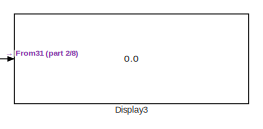
[diagram: root canvas - part 1/8, top center region]
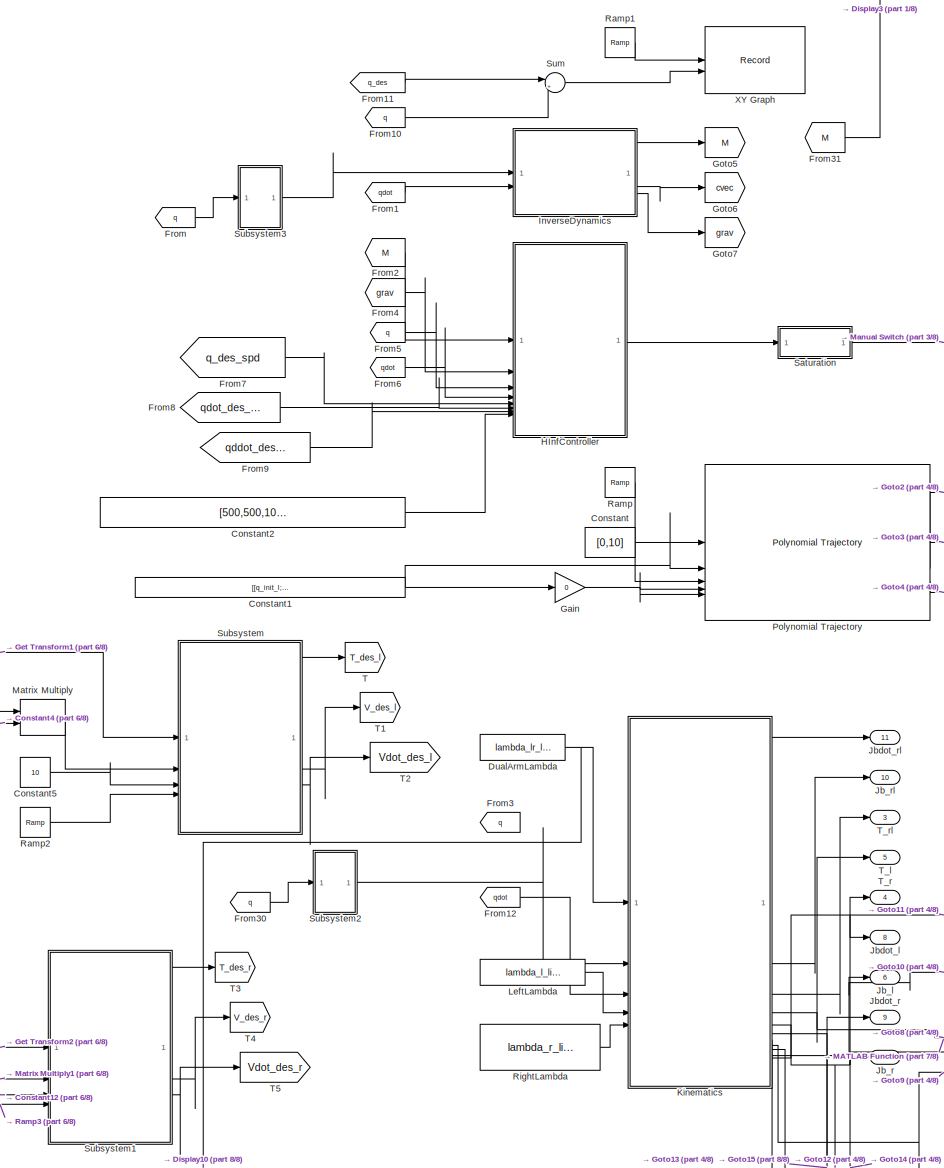
[diagram: root canvas - part 2/8, middle left region]
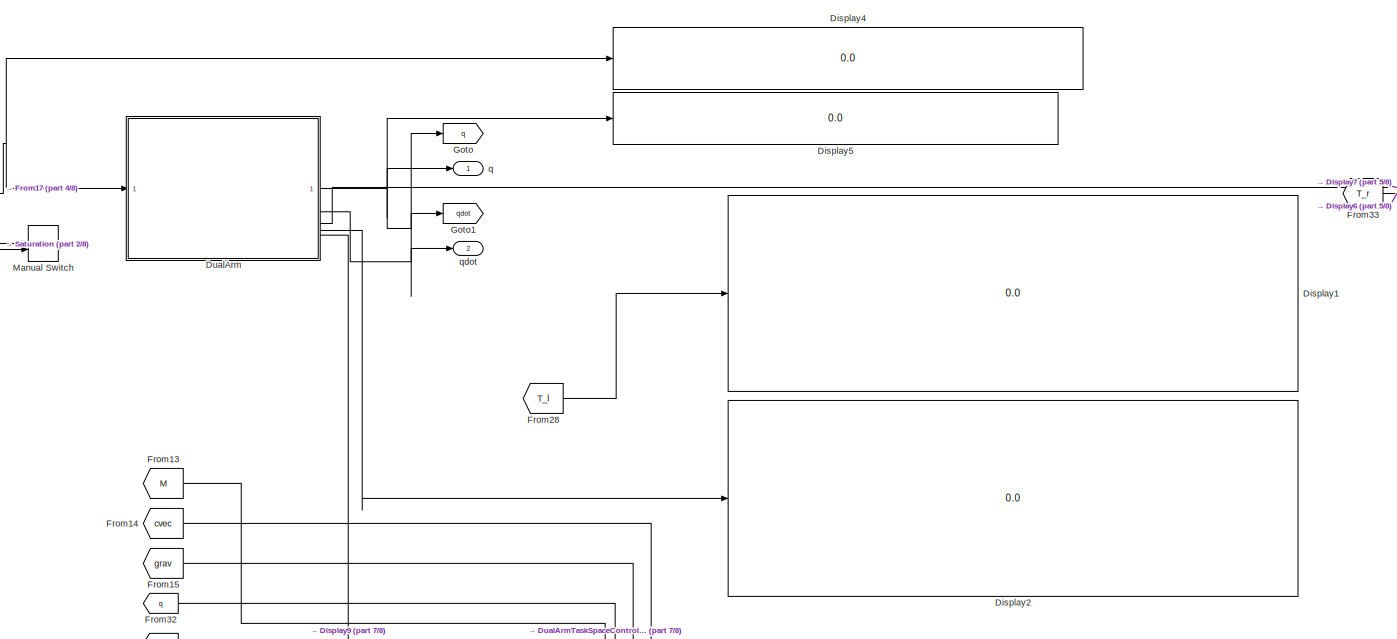
[diagram: root canvas - part 3/8, top center region]
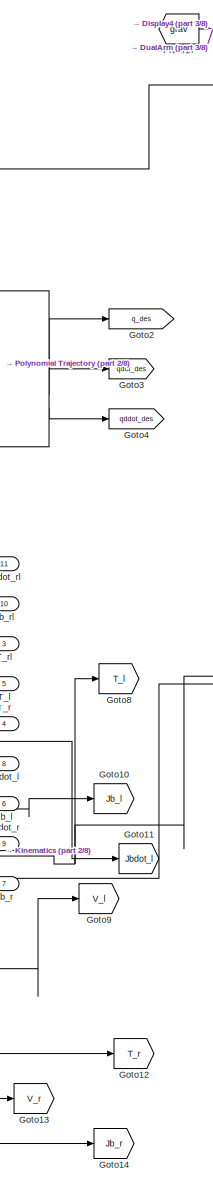
[diagram: root canvas - part 4/8, central region]
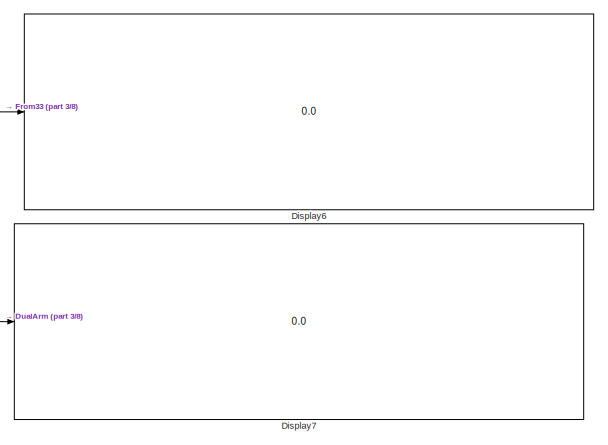
[diagram: root canvas - part 5/8, top right region]
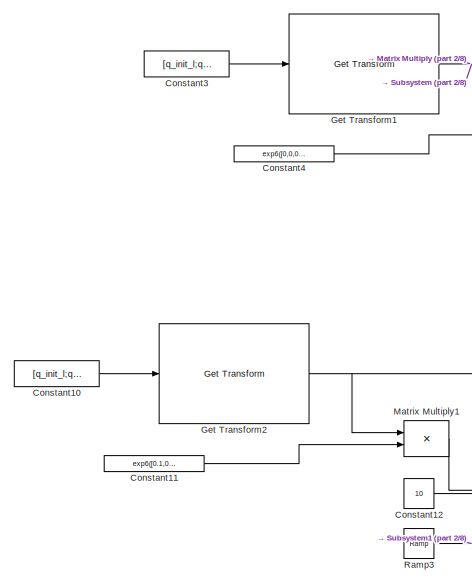
[diagram: root canvas - part 6/8, middle left region]
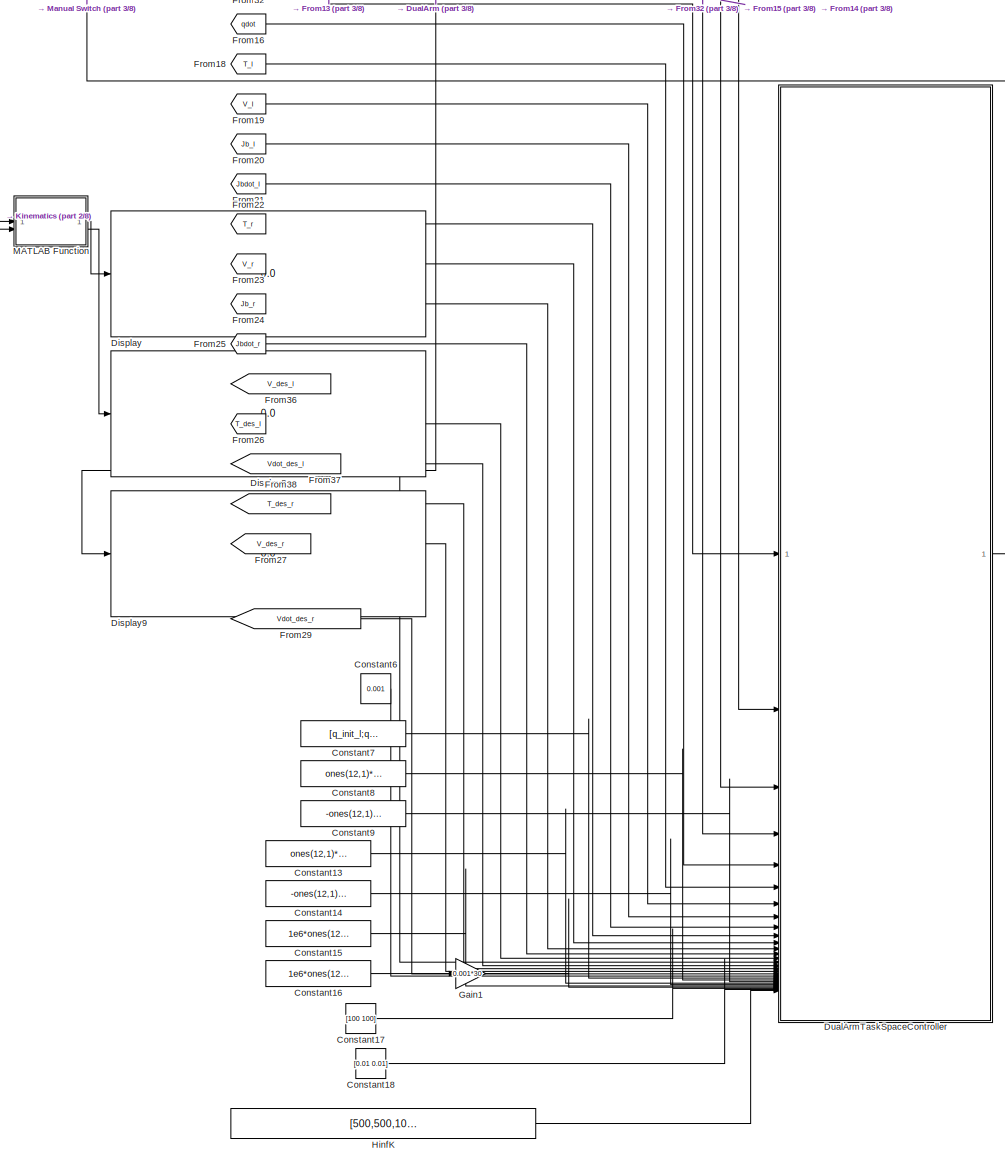
[diagram: root canvas - part 7/8, bottom center region]
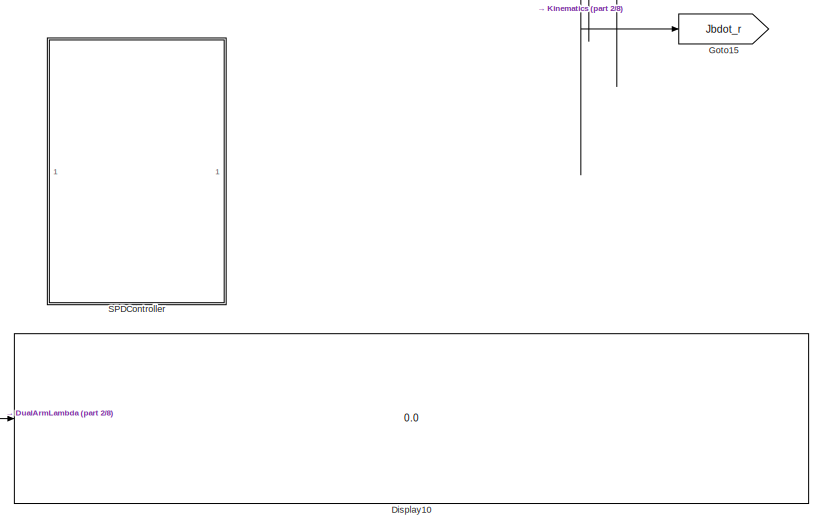
[diagram: root canvas - part 8/8, bottom left region]
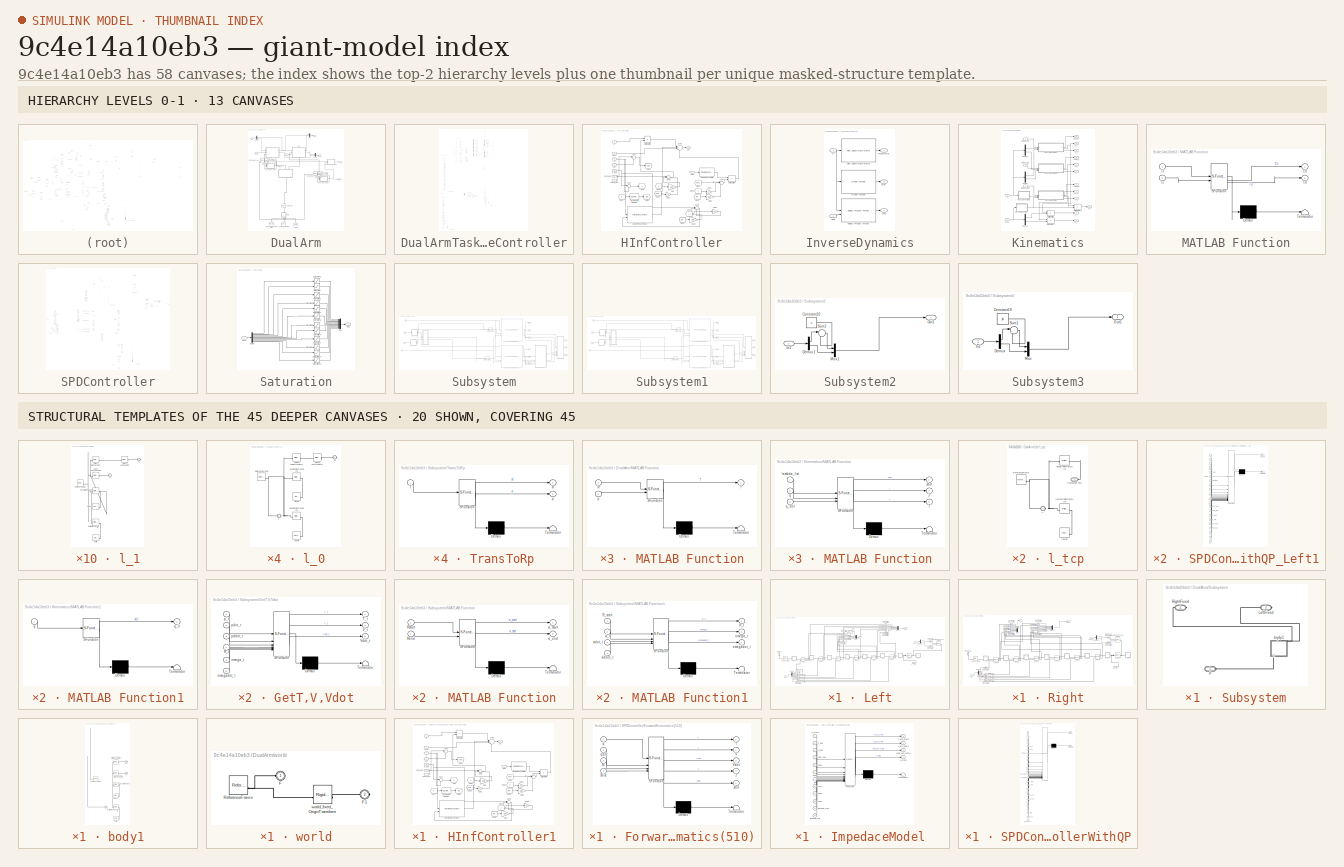
[diagram: thumbnail index - top-2 hierarchy levels (13 canvases) + 20 structural-template representatives of the remaining 45 canvases]
MODEL slx_9c4e14a10eb3
KIND model
CONFIG AbsTol = auto
CONFIG EnableMultiTasking = off
CONFIG FixedStep = 0.001
CONFIG MaxStep = auto
CONFIG MinStep = auto
CONFIG RelTol = 1e-3
CONFIG SampleTimeConstraint = Unconstrained
CONFIG SolverName = FixedStepAuto
CONFIG StartTime = 0.0
CONFIG StopTime = 10
WORKSPACE source: mxarray member
WORKSPACE joint_friction = [80 80 20 10 10 5]
WORKSPACE lambda_l_list = [0 -1.17357539658 0.993815552956 -2.091 0 0 -0.111945470246 0.0246912114191 0.243747835972 1.20917417944 1.20917417944 -1.20905770917 ... (42 elements, 6x7)]
WORKSPACE lambda_r_list = [0 1.17618914658 0.992300581915 2.091 0 0 -0.111945470246 0.0246912114191 0.243747835972 1.20917417944 1.20917417944 -1.20905770917 ... (42 elements, 6x7)]
WORKSPACE lambda_rl_list = [2.58853268681e-20 -2.25514051877e-16 -0.06 -1.83339582048e-16 -4.06575814682e-20 0 0.0911029490978 -0.02862210596 -0.174516399919 1.20917417944 1.20905770917 -1.20917417944 ... (78 elements, 6x13)]
WORKSPACE q_init_l: Simulink.Parameter (value not decoded)
WORKSPACE q_init_l1: Simulink.Parameter (value not decoded)
WORKSPACE q_init_l2: Simulink.Parameter (value not decoded)
WORKSPACE q_init_l3: Simulink.Parameter (value not decoded)
WORKSPACE q_init_l4: Simulink.Parameter (value not decoded)
WORKSPACE q_init_l5: Simulink.Parameter (value not decoded)
WORKSPACE q_init_l6: Simulink.Parameter (value not decoded)
WORKSPACE q_init_r: Simulink.Parameter (value not decoded)
WORKSPACE q_init_r1: Simulink.Parameter (value not decoded)
WORKSPACE q_init_r2: Simulink.Parameter (value not decoded)
WORKSPACE q_init_r3: Simulink.Parameter (value not decoded)
WORKSPACE q_init_r4: Simulink.Parameter (value not decoded)
WORKSPACE q_init_r5: Simulink.Parameter (value not decoded)
WORKSPACE q_init_r6: Simulink.Parameter (value not decoded)
WORKSPACE robot: robotics.RigidBodyTree (value not decoded)
BLOCK [Constant] Constant
  Commented = on
  Value = [0,10]
BLOCK [Constant] Constant1
  Commented = on
  Value = [[q_init_l;q_init_r],[q_init_l;q_init_r].*2]
BLOCK [Constant] Constant10
  Commented = on
  Value = [q_init_l;q_init_r]
BLOCK [Constant] Constant11
  Commented = on
  Value = exp6([0.1,0,0.1,pi/2,0,0]')
BLOCK [Constant] Constant12
  Commented = on
  Value = 10
BLOCK [Constant] Constant13
  Commented = on
  Value = ones(12,1)*pi
BLOCK [Constant] Constant14
  Commented = on
  Value = -ones(12,1)*pi
BLOCK [Constant] Constant15
  Commented = on
  Value = 1e6*ones(12,1)
BLOCK [Constant] Constant16
  Commented = on
  Value = 1e6*ones(12,1)
BLOCK [Constant] Constant17
  Commented = on
  Value = [100 100]
BLOCK [Constant] Constant18
  Commented = on
  Value = [0.01 0.01]
BLOCK [Constant] Constant2
  Commented = on
  Value = [500,500,100,50,10,1,500,500,100,50,10,1]
BLOCK [Constant] Constant3
  Commented = on
  Value = [q_init_l;q_init_r]
BLOCK [Constant] Constant4
  Commented = on
  Value = exp6([0,0,0.1,0,0,0]')
BLOCK [Constant] Constant5
  Commented = on
  Value = 10
BLOCK [Constant] Constant6
  Commented = on
  Value = 0.001
BLOCK [Constant] Constant7
  Commented = on
  Value = [q_init_l;q_init_r]
BLOCK [Constant] Constant8
  Commented = on
  Value = ones(12,1)*pi
BLOCK [Constant] Constant9
  Commented = on
  Value = -ones(12,1)*pi
BLOCK [Display] Display
  Decimation = 1
BLOCK [Display] Display1
  Decimation = 1
BLOCK [Display] Display10
  Decimation = 1
BLOCK [Display] Display2
  Decimation = 1
BLOCK [Display] Display3
  Decimation = 1
BLOCK [Display] Display4
  Decimation = 1
BLOCK [Display] Display5
  Decimation = 1
BLOCK [Display] Display6
  Decimation = 1
BLOCK [Display] Display7
  Decimation = 1
BLOCK [Display] Display8
  Decimation = 1
BLOCK [Display] Display9
  Decimation = 1
BLOCK [SubSystem] DualArm
BLOCK [Demux] DualArm/Demux
  Outputs = 2
BLOCK [Inport] DualArm/Fext_l
  Port = 3
BLOCK [Inport] DualArm/Fext_r
  Port = 2
BLOCK [SubSystem] DualArm/Left
  PortSchema = {"entries":[{"content":{"sides":[{"content":{"connectorIds":["In1","In2","LConn1"]},"type":"ConnectorPlacement.EquallySpacedRectSide","uuid":"a802bf1d-865c-44a2-b0f5-a6da758969a6"},{"content":{"connectorIds":["Out1","Out2"],"side":"RIGHT"},"type":"ConnectorPlacement.EquallySpacedRectSide","uuid":"5f6dd1c3-913e-4ce9-9167-95590779c30f"},{"content":{"side":"TOP"},"type":"ConnectorPlacement.EquallySpa...<+396ch>
BLOCK [Constant] DualArm/Left/Constant
  Value = pi
BLOCK [Demux] DualArm/Left/Demux
  Outputs = 6
BLOCK [Demux] DualArm/Left/Demux1
  Outputs = 2
BLOCK [Reference] DualArm/Left/External Force and Torque  REF=sm_lib/Forces and
Torques/External Force
and Torque
  SourceBlock = sm_lib/Forces and\nTorques/External Force\nand Torque
  SourceType = External Force\nand Torque
BLOCK [Inport] DualArm/Left/Fext_l
  Port = 2
BLOCK [PMIOPort] DualArm/Left/L_TCP
  Port = 2
  Side = Left
BLOCK [PMIOPort] DualArm/Left/LeftFixed
  NameLocation = left
  Side = Right
BLOCK [Mux] DualArm/Left/Mux1
  DisplayOption = bar
  Inputs = 6
BLOCK [Mux] DualArm/Left/Mux2
  DisplayOption = bar
  Inputs = 6
BLOCK [Reference] DualArm/Left/PS-Simulink Converter1  REF=nesl_utility/PS-Simulink
Converter
  SourceBlock = nesl_utility/PS-Simulink\nConverter
  SourceType = PS-Simulink\nConverter
BLOCK [Reference] DualArm/Left/PS-Simulink Converter10  REF=nesl_utility/PS-Simulink
Converter
  SourceBlock = nesl_utility/PS-Simulink\nConverter
  SourceType = PS-Simulink\nConverter
BLOCK [Reference] DualArm/Left/PS-Simulink Converter11  REF=nesl_utility/PS-Simulink
Converter
  SourceBlock = nesl_utility/PS-Simulink\nConverter
  SourceType = PS-Simulink\nConverter
BLOCK [Reference] DualArm/Left/PS-Simulink Converter12  REF=nesl_utility/PS-Simulink
Converter
  SourceBlock = nesl_utility/PS-Simulink\nConverter
  SourceType = PS-Simulink\nConverter
BLOCK [Reference] DualArm/Left/PS-Simulink Converter2  REF=nesl_utility/PS-Simulink
Converter
  SourceBlock = nesl_utility/PS-Simulink\nConverter
  SourceType = PS-Simulink\nConverter
BLOCK [Reference] DualArm/Left/PS-Simulink Converter3  REF=nesl_utility/PS-Simulink
Converter
  SourceBlock = nesl_utility/PS-Simulink\nConverter
  SourceType = PS-Simulink\nConverter
BLOCK [Reference] DualArm/Left/PS-Simulink Converter4  REF=nesl_utility/PS-Simulink
Converter
  SourceBlock = nesl_utility/PS-Simulink\nConverter
  SourceType = PS-Simulink\nConverter
BLOCK [Reference] DualArm/Left/PS-Simulink Converter5  REF=nesl_utility/PS-Simulink
Converter
  SourceBlock = nesl_utility/PS-Simulink\nConverter
  SourceType = PS-Simulink\nConverter
BLOCK [Reference] DualArm/Left/PS-Simulink Converter6  REF=nesl_utility/PS-Simulink
Converter
  SourceBlock = nesl_utility/PS-Simulink\nConverter
  SourceType = PS-Simulink\nConverter
BLOCK [Reference] DualArm/Left/PS-Simulink Converter7  REF=nesl_utility/PS-Simulink
Converter
  SourceBlock = nesl_utility/PS-Simulink\nConverter
  SourceType = PS-Simulink\nConverter
BLOCK [Reference] DualArm/Left/PS-Simulink Converter8  REF=nesl_utility/PS-Simulink
Converter
  SourceBlock = nesl_utility/PS-Simulink\nConverter
  SourceType = PS-Simulink\nConverter
BLOCK [Reference] DualArm/Left/PS-Simulink Converter9  REF=nesl_utility/PS-Simulink
Converter
  SourceBlock = nesl_utility/PS-Simulink\nConverter
  SourceType = PS-Simulink\nConverter
BLOCK [Reference] DualArm/Left/Simulink-PS Converter  REF=nesl_utility/Simulink-PS
Converter
  SourceBlock = nesl_utility/Simulink-PS\nConverter
  SourceType = Simulink-PS\nConverter
BLOCK [Reference] DualArm/Left/Simulink-PS Converter1  REF=nesl_utility/Simulink-PS
Converter
  SourceBlock = nesl_utility/Simulink-PS\nConverter
  SourceType = Simulink-PS\nConverter
BLOCK [Reference] DualArm/Left/Simulink-PS Converter2  REF=nesl_utility/Simulink-PS
Converter
  SourceBlock = nesl_utility/Simulink-PS\nConverter
  SourceType = Simulink-PS\nConverter
BLOCK [Reference] DualArm/Left/Simulink-PS Converter3  REF=nesl_utility/Simulink-PS
Converter
  SourceBlock = nesl_utility/Simulink-PS\nConverter
  SourceType = Simulink-PS\nConverter
BLOCK [Reference] DualArm/Left/Simulink-PS Converter4  REF=nesl_utility/Simulink-PS
Converter
  SourceBlock = nesl_utility/Simulink-PS\nConverter
  SourceType = Simulink-PS\nConverter
BLOCK [Reference] DualArm/Left/Simulink-PS Converter5  REF=nesl_utility/Simulink-PS
Converter
  SourceBlock = nesl_utility/Simulink-PS\nConverter
  SourceType = Simulink-PS\nConverter
BLOCK [Reference] DualArm/Left/Simulink-PS Converter6  REF=nesl_utility/Simulink-PS
Converter
  SourceBlock = nesl_utility/Simulink-PS\nConverter
  SourceType = Simulink-PS\nConverter
BLOCK [Reference] DualArm/Left/Simulink-PS Converter7  REF=nesl_utility/Simulink-PS
Converter
  SourceBlock = nesl_utility/Simulink-PS\nConverter
  SourceType = Simulink-PS\nConverter
BLOCK [Sum] DualArm/Left/Sum
  Inputs = |+-
BLOCK [SubSystem] DualArm/Left/l_0
BLOCK [PMIOPort] DualArm/Left/l_0/F
  Side = Left
BLOCK [PMIOPort] DualArm/Left/l_0/F1
  Port = 2
  Side = Right
BLOCK [Reference] DualArm/Left/l_0/Inertia  REF=sm_lib/Body Elements/Inertia
  SourceBlock = sm_lib/Body Elements/Inertia
  SourceType = Inertia
BLOCK [Reference] DualArm/Left/l_0/InertiaOriginTransform  REF=sm_lib/Frames and
Transforms/Rigid
Transform
  SourceBlock = sm_lib/Frames and\nTransforms/Rigid\nTransform
  SourceType = Rigid\nTransform
BLOCK [Reference] DualArm/Left/l_0/ReferenceFrame  REF=sm_lib/Frames and
Transforms/Reference
Frame
  SourceBlock = sm_lib/Frames and\nTransforms/Reference\nFrame
  SourceType = Reference\nFrame
BLOCK [Reference] DualArm/Left/l_0/Visual  REF=sm_lib/Body Elements/File Solid
  SourceBlock = sm_lib/Body Elements/File Solid
  SourceType = File Solid
BLOCK [Reference] DualArm/Left/l_0/VisualOriginTransform  REF=sm_lib/Frames and
Transforms/Rigid
Transform
  SourceBlock = sm_lib/Frames and\nTransforms/Rigid\nTransform
  SourceType = Rigid\nTransform
BLOCK [Reference] DualArm/Left/l_0/l_joint_0_AxisTransform  REF=sm_lib/Frames and
Transforms/Rigid
Transform
  SourceBlock = sm_lib/Frames and\nTransforms/Rigid\nTransform
  SourceType = Rigid\nTransform
BLOCK [Reference] DualArm/Left/l_0/l_joint_0_OriginTransform  REF=sm_lib/Frames and
Transforms/Rigid
Transform
  SourceBlock = sm_lib/Frames and\nTransforms/Rigid\nTransform
  SourceType = Rigid\nTransform
BLOCK [SubSystem] DualArm/Left/l_1
BLOCK [PMIOPort] DualArm/Left/l_1/F
  Side = Left
BLOCK [PMIOPort] DualArm/Left/l_1/F1
  Port = 2
  Side = Right
BLOCK [Reference] DualArm/Left/l_1/Inertia  REF=sm_lib/Body Elements/Inertia
  SourceBlock = sm_lib/Body Elements/Inertia
  SourceType = Inertia
BLOCK [Reference] DualArm/Left/l_1/InertiaOriginTransform  REF=sm_lib/Frames and
Transforms/Rigid
Transform
  SourceBlock = sm_lib/Frames and\nTransforms/Rigid\nTransform
  SourceType = Rigid\nTransform
BLOCK [Reference] DualArm/Left/l_1/ReferenceFrame  REF=sm_lib/Frames and
Transforms/Reference
Frame
  SourceBlock = sm_lib/Frames and\nTransforms/Reference\nFrame
  SourceType = Reference\nFrame
BLOCK [Reference] DualArm/Left/l_1/Visual  REF=sm_lib/Body Elements/File Solid
  SourceBlock = sm_lib/Body Elements/File Solid
  SourceType = File Solid
BLOCK [Reference] DualArm/Left/l_1/VisualOriginTransform  REF=sm_lib/Frames and
Transforms/Rigid
Transform
  SourceBlock = sm_lib/Frames and\nTransforms/Rigid\nTransform
  SourceType = Rigid\nTransform
BLOCK [Reference] DualArm/Left/l_1/l_joint_0_AxisInvTransform  REF=sm_lib/Frames and
Transforms/Rigid
Transform
  SourceBlock = sm_lib/Frames and\nTransforms/Rigid\nTransform
  SourceType = Rigid\nTransform
BLOCK [Reference] DualArm/Left/l_1/l_joint_1_AxisTransform  REF=sm_lib/Frames and
Transforms/Rigid
Transform
  SourceBlock = sm_lib/Frames and\nTransforms/Rigid\nTransform
  SourceType = Rigid\nTransform
BLOCK [Reference] DualArm/Left/l_1/l_joint_1_OriginTransform  REF=sm_lib/Frames and
Transforms/Rigid
Transform
  SourceBlock = sm_lib/Frames and\nTransforms/Rigid\nTransform
  SourceType = Rigid\nTransform
BLOCK [SubSystem] DualArm/Left/l_2
BLOCK [PMIOPort] DualArm/Left/l_2/F
  Side = Left
BLOCK [PMIOPort] DualArm/Left/l_2/F1
  Port = 2
  Side = Right
BLOCK [Reference] DualArm/Left/l_2/Inertia  REF=sm_lib/Body Elements/Inertia
  SourceBlock = sm_lib/Body Elements/Inertia
  SourceType = Inertia
BLOCK [Reference] DualArm/Left/l_2/InertiaOriginTransform  REF=sm_lib/Frames and
Transforms/Rigid
Transform
  SourceBlock = sm_lib/Frames and\nTransforms/Rigid\nTransform
  SourceType = Rigid\nTransform
BLOCK [Reference] DualArm/Left/l_2/ReferenceFrame  REF=sm_lib/Frames and
Transforms/Reference
Frame
  SourceBlock = sm_lib/Frames and\nTransforms/Reference\nFrame
  SourceType = Reference\nFrame
BLOCK [Reference] DualArm/Left/l_2/Visual  REF=sm_lib/Body Elements/File Solid
  SourceBlock = sm_lib/Body Elements/File Solid
  SourceType = File Solid
BLOCK [Reference] DualArm/Left/l_2/VisualOriginTransform  REF=sm_lib/Frames and
Transforms/Rigid
Transform
  SourceBlock = sm_lib/Frames and\nTransforms/Rigid\nTransform
  SourceType = Rigid\nTransform
BLOCK [Reference] DualArm/Left/l_2/l_joint_1_AxisInvTransform  REF=sm_lib/Frames and
Transforms/Rigid
Transform
  SourceBlock = sm_lib/Frames and\nTransforms/Rigid\nTransform
  SourceType = Rigid\nTransform
BLOCK [Reference] DualArm/Left/l_2/l_joint_2_AxisTransform  REF=sm_lib/Frames and
Transforms/Rigid
Transform
  SourceBlock = sm_lib/Frames and\nTransforms/Rigid\nTransform
  SourceType = Rigid\nTransform
BLOCK [Reference] DualArm/Left/l_2/l_joint_2_OriginTransform  REF=sm_lib/Frames and
Transforms/Rigid
Transform
  SourceBlock = sm_lib/Frames and\nTransforms/Rigid\nTransform
  SourceType = Rigid\nTransform
BLOCK [SubSystem] DualArm/Left/l_3
BLOCK [PMIOPort] DualArm/Left/l_3/F
  Side = Left
BLOCK [PMIOPort] DualArm/Left/l_3/F1
  Port = 2
  Side = Right
BLOCK [Reference] DualArm/Left/l_3/Inertia  REF=sm_lib/Body Elements/Inertia
  SourceBlock = sm_lib/Body Elements/Inertia
  SourceType = Inertia
BLOCK [Reference] DualArm/Left/l_3/InertiaOriginTransform  REF=sm_lib/Frames and
Transforms/Rigid
Transform
  SourceBlock = sm_lib/Frames and\nTransforms/Rigid\nTransform
  SourceType = Rigid\nTransform
BLOCK [Reference] DualArm/Left/l_3/ReferenceFrame  REF=sm_lib/Frames and
Transforms/Reference
Frame
  SourceBlock = sm_lib/Frames and\nTransforms/Reference\nFrame
  SourceType = Reference\nFrame
BLOCK [Reference] DualArm/Left/l_3/Visual  REF=sm_lib/Body Elements/File Solid
  SourceBlock = sm_lib/Body Elements/File Solid
  SourceType = File Solid
BLOCK [Reference] DualArm/Left/l_3/VisualOriginTransform  REF=sm_lib/Frames and
Transforms/Rigid
Transform
  SourceBlock = sm_lib/Frames and\nTransforms/Rigid\nTransform
  SourceType = Rigid\nTransform
BLOCK [Reference] DualArm/Left/l_3/l_joint_2_AxisInvTransform  REF=sm_lib/Frames and
Transforms/Rigid
Transform
  SourceBlock = sm_lib/Frames and\nTransforms/Rigid\nTransform
  SourceType = Rigid\nTransform
BLOCK [Reference] DualArm/Left/l_3/l_joint_3_AxisTransform  REF=sm_lib/Frames and
Transforms/Rigid
Transform
  SourceBlock = sm_lib/Frames and\nTransforms/Rigid\nTransform
  SourceType = Rigid\nTransform
BLOCK [Reference] DualArm/Left/l_3/l_joint_3_OriginTransform  REF=sm_lib/Frames and
Transforms/Rigid
Transform
  SourceBlock = sm_lib/Frames and\nTransforms/Rigid\nTransform
  SourceType = Rigid\nTransform
BLOCK [SubSystem] DualArm/Left/l_4
BLOCK [PMIOPort] DualArm/Left/l_4/F
  Side = Left
BLOCK [PMIOPort] DualArm/Left/l_4/F1
  Port = 2
  Side = Right
BLOCK [Reference] DualArm/Left/l_4/Inertia  REF=sm_lib/Body Elements/Inertia
  SourceBlock = sm_lib/Body Elements/Inertia
  SourceType = Inertia
BLOCK [Reference] DualArm/Left/l_4/InertiaOriginTransform  REF=sm_lib/Frames and
Transforms/Rigid
Transform
  SourceBlock = sm_lib/Frames and\nTransforms/Rigid\nTransform
  SourceType = Rigid\nTransform
BLOCK [Reference] DualArm/Left/l_4/ReferenceFrame  REF=sm_lib/Frames and
Transforms/Reference
Frame
  SourceBlock = sm_lib/Frames and\nTransforms/Reference\nFrame
  SourceType = Reference\nFrame
BLOCK [Reference] DualArm/Left/l_4/Visual  REF=sm_lib/Body Elements/File Solid
  SourceBlock = sm_lib/Body Elements/File Solid
  SourceType = File Solid
BLOCK [Reference] DualArm/Left/l_4/VisualOriginTransform  REF=sm_lib/Frames and
Transforms/Rigid
Transform
  SourceBlock = sm_lib/Frames and\nTransforms/Rigid\nTransform
  SourceType = Rigid\nTransform
BLOCK [Reference] DualArm/Left/l_4/l_joint_3_AxisInvTransform  REF=sm_lib/Frames and
Transforms/Rigid
Transform
  SourceBlock = sm_lib/Frames and\nTransforms/Rigid\nTransform
  SourceType = Rigid\nTransform
BLOCK [Reference] DualArm/Left/l_4/l_joint_4_AxisTransform  REF=sm_lib/Frames and
Transforms/Rigid
Transform
  SourceBlock = sm_lib/Frames and\nTransforms/Rigid\nTransform
  SourceType = Rigid\nTransform
BLOCK [Reference] DualArm/Left/l_4/l_joint_4_OriginTransform  REF=sm_lib/Frames and
Transforms/Rigid
Transform
  SourceBlock = sm_lib/Frames and\nTransforms/Rigid\nTransform
  SourceType = Rigid\nTransform
BLOCK [SubSystem] DualArm/Left/l_5
BLOCK [PMIOPort] DualArm/Left/l_5/F
  Side = Left
BLOCK [PMIOPort] DualArm/Left/l_5/F1
  Port = 2
  Side = Right
BLOCK [Reference] DualArm/Left/l_5/Inertia  REF=sm_lib/Body Elements/Inertia
  SourceBlock = sm_lib/Body Elements/Inertia
  SourceType = Inertia
BLOCK [Reference] DualArm/Left/l_5/InertiaOriginTransform  REF=sm_lib/Frames and
Transforms/Rigid
Transform
  SourceBlock = sm_lib/Frames and\nTransforms/Rigid\nTransform
  SourceType = Rigid\nTransform
BLOCK [Reference] DualArm/Left/l_5/ReferenceFrame  REF=sm_lib/Frames and
Transforms/Reference
Frame
  SourceBlock = sm_lib/Frames and\nTransforms/Reference\nFrame
  SourceType = Reference\nFrame
BLOCK [Reference] DualArm/Left/l_5/Visual  REF=sm_lib/Body Elements/File Solid
  SourceBlock = sm_lib/Body Elements/File Solid
  SourceType = File Solid
BLOCK [Reference] DualArm/Left/l_5/VisualOriginTransform  REF=sm_lib/Frames and
Transforms/Rigid
Transform
  SourceBlock = sm_lib/Frames and\nTransforms/Rigid\nTransform
  SourceType = Rigid\nTransform
BLOCK [Reference] DualArm/Left/l_5/l_joint_4_AxisInvTransform  REF=sm_lib/Frames and
Transforms/Rigid
Transform
  SourceBlock = sm_lib/Frames and\nTransforms/Rigid\nTransform
  SourceType = Rigid\nTransform
BLOCK [Reference] DualArm/Left/l_5/l_joint_5_AxisTransform  REF=sm_lib/Frames and
Transforms/Rigid
Transform
  SourceBlock = sm_lib/Frames and\nTransforms/Rigid\nTransform
  SourceType = Rigid\nTransform
BLOCK [Reference] DualArm/Left/l_5/l_joint_5_OriginTransform  REF=sm_lib/Frames and
Transforms/Rigid
Transform
  SourceBlock = sm_lib/Frames and\nTransforms/Rigid\nTransform
  SourceType = Rigid\nTransform
BLOCK [SubSystem] DualArm/Left/l_6
BLOCK [PMIOPort] DualArm/Left/l_6/F
  Side = Left
BLOCK [PMIOPort] DualArm/Left/l_6/F1
  Port = 2
  Side = Right
BLOCK [Reference] DualArm/Left/l_6/Inertia  REF=sm_lib/Body Elements/Inertia
  SourceBlock = sm_lib/Body Elements/Inertia
  SourceType = Inertia
BLOCK [Reference] DualArm/Left/l_6/InertiaOriginTransform  REF=sm_lib/Frames and
Transforms/Rigid
Transform
  SourceBlock = sm_lib/Frames and\nTransforms/Rigid\nTransform
  SourceType = Rigid\nTransform
BLOCK [Reference] DualArm/Left/l_6/ReferenceFrame  REF=sm_lib/Frames and
Transforms/Reference
Frame
  SourceBlock = sm_lib/Frames and\nTransforms/Reference\nFrame
  SourceType = Reference\nFrame
BLOCK [Reference] DualArm/Left/l_6/Visual  REF=sm_lib/Body Elements/File Solid
  SourceBlock = sm_lib/Body Elements/File Solid
  SourceType = File Solid
BLOCK [Reference] DualArm/Left/l_6/VisualOriginTransform  REF=sm_lib/Frames and
Transforms/Rigid
Transform
  SourceBlock = sm_lib/Frames and\nTransforms/Rigid\nTransform
  SourceType = Rigid\nTransform
BLOCK [Reference] DualArm/Left/l_6/l_joint_5_AxisInvTransform  REF=sm_lib/Frames and
Transforms/Rigid
Transform
  SourceBlock = sm_lib/Frames and\nTransforms/Rigid\nTransform
  SourceType = Rigid\nTransform
BLOCK [Reference] DualArm/Left/l_6/l_joint_tcp_OriginTransform  REF=sm_lib/Frames and
Transforms/Rigid
Transform
  SourceBlock = sm_lib/Frames and\nTransforms/Rigid\nTransform
  SourceType = Rigid\nTransform
BLOCK [Reference] DualArm/Left/l_body_fixed  REF=sm_lib/Joints/Weld Joint
  SourceBlock = sm_lib/Joints/Weld Joint
  SourceType = Weld Joint
BLOCK [Reference] DualArm/Left/l_joint_0  REF=sm_lib/Joints/Revolute Joint
  SourceBlock = sm_lib/Joints/Revolute Joint
  SourceType = Revolute Joint
BLOCK [Reference] DualArm/Left/l_joint_1  REF=sm_lib/Joints/Revolute Joint
  SourceBlock = sm_lib/Joints/Revolute Joint
  SourceType = Revolute Joint
BLOCK [Reference] DualArm/Left/l_joint_2  REF=sm_lib/Joints/Revolute Joint
  SourceBlock = sm_lib/Joints/Revolute Joint
  SourceType = Revolute Joint
BLOCK [Reference] DualArm/Left/l_joint_3  REF=sm_lib/Joints/Revolute Joint
  SourceBlock = sm_lib/Joints/Revolute Joint
  SourceType = Revolute Joint
BLOCK [Reference] DualArm/Left/l_joint_4  REF=sm_lib/Joints/Revolute Joint
  SourceBlock = sm_lib/Joints/Revolute Joint
  SourceType = Revolute Joint
BLOCK [Reference] DualArm/Left/l_joint_5  REF=sm_lib/Joints/Revolute Joint
  SourceBlock = sm_lib/Joints/Revolute Joint
  SourceType = Revolute Joint
BLOCK [Reference] DualArm/Left/l_joint_tcp  REF=sm_lib/Joints/Weld Joint
  SourceBlock = sm_lib/Joints/Weld Joint
  SourceType = Weld Joint
BLOCK [SubSystem] DualArm/Left/l_tcp
BLOCK [PMIOPort] DualArm/Left/l_tcp/Connection Port
  Port = 2
  Side = Left
BLOCK [PMIOPort] DualArm/Left/l_tcp/F
  Side = Left
BLOCK [Reference] DualArm/Left/l_tcp/Inertia  REF=sm_lib/Body Elements/Inertia
  SourceBlock = sm_lib/Body Elements/Inertia
  SourceType = Inertia
BLOCK [Reference] DualArm/Left/l_tcp/InertiaOriginTransform  REF=sm_lib/Frames and
Transforms/Rigid
Transform
  SourceBlock = sm_lib/Frames and\nTransforms/Rigid\nTransform
  SourceType = Rigid\nTransform
BLOCK [Reference] DualArm/Left/l_tcp/ReferenceFrame  REF=sm_lib/Frames and
Transforms/Reference
Frame
  SourceBlock = sm_lib/Frames and\nTransforms/Reference\nFrame
  SourceType = Reference\nFrame
BLOCK [Reference] DualArm/Left/l_tcp/VisualOriginTransform  REF=sm_lib/Frames and
Transforms/Rigid
Transform
  SourceBlock = sm_lib/Frames and\nTransforms/Rigid\nTransform
  SourceType = Rigid\nTransform
BLOCK [Outport] DualArm/Left/q
BLOCK [Outport] DualArm/Left/qdot
  Port = 2
BLOCK [Inport] DualArm/Left/tau
BLOCK [SubSystem] DualArm/MATLAB Function
  ErrorFcn = Stateflow.Translate.translate
  PermitHierarchicalResolution = ExplicitOnly
  SFBlockType = MATLAB Function
  TreatAsAtomicUnit = on
BLOCK [Demux] DualArm/MATLAB Function/ Demux 
  Outputs = 1
BLOCK [S-Function] DualArm/MATLAB Function/ SFunction 
  EnableBusSupport = on
  FunctionName = sf_sfun
  PortCounts = [2 2]
  SFcnIsStateOwnerBlock = off
  SFunctionDeploymentMode = off
  Tag = Stateflow S-Function 4
BLOCK [Terminator] DualArm/MATLAB Function/ Terminator 
BLOCK [Inport] DualArm/MATLAB Function/R
BLOCK [Outport] DualArm/MATLAB Function/T
BLOCK [Inport] DualArm/MATLAB Function/p
  Port = 2
BLOCK [SubSystem] DualArm/MATLAB Function1
  ErrorFcn = Stateflow.Translate.translate
  PermitHierarchicalResolution = ExplicitOnly
  SFBlockType = MATLAB Function
  TreatAsAtomicUnit = on
BLOCK [Demux] DualArm/MATLAB Function1/ Demux 
  Outputs = 1
BLOCK [S-Function] DualArm/MATLAB Function1/ SFunction 
  EnableBusSupport = on
  FunctionName = sf_sfun
  PortCounts = [2 2]
  SFcnIsStateOwnerBlock = off
  SFunctionDeploymentMode = off
  Tag = Stateflow S-Function 5
BLOCK [Terminator] DualArm/MATLAB Function1/ Terminator 
BLOCK [Inport] DualArm/MATLAB Function1/R
BLOCK [Outport] DualArm/MATLAB Function1/T
BLOCK [Inport] DualArm/MATLAB Function1/p
  Port = 2
BLOCK [SubSystem] DualArm/MATLAB Function2
  ErrorFcn = Stateflow.Translate.translate
  PermitHierarchicalResolution = ExplicitOnly
  SFBlockType = MATLAB Function
  TreatAsAtomicUnit = on
BLOCK [Demux] DualArm/MATLAB Function2/ Demux 
  Outputs = 1
BLOCK [S-Function] DualArm/MATLAB Function2/ SFunction 
  EnableBusSupport = on
  FunctionName = sf_sfun
  PortCounts = [2 2]
  SFcnIsStateOwnerBlock = off
  SFunctionDeploymentMode = off
  Tag = Stateflow S-Function 6
BLOCK [Terminator] DualArm/MATLAB Function2/ Terminator 
BLOCK [Inport] DualArm/MATLAB Function2/T_l
  Port = 2
BLOCK [Inport] DualArm/MATLAB Function2/T_r
BLOCK [Outport] DualArm/MATLAB Function2/T_rl
BLOCK [Reference] DualArm/MechanismConfiguration  REF=sm_lib/Utilities/Mechanism
Configuration
  NameLocation = right
  SourceBlock = sm_lib/Utilities/Mechanism\nConfiguration
  SourceType = Mechanism\nConfiguration
BLOCK [Mux] DualArm/Mux
  DisplayOption = bar
  Inputs = 2
BLOCK [Mux] DualArm/Mux1
  DisplayOption = bar
  Inputs = 2
BLOCK [Reference] DualArm/PS-Simulink Converter  REF=nesl_utility/PS-Simulink
Converter
  SourceBlock = nesl_utility/PS-Simulink\nConverter
  SourceType = PS-Simulink\nConverter
BLOCK [Reference] DualArm/PS-Simulink Converter1  REF=nesl_utility/PS-Simulink
Converter
  SourceBlock = nesl_utility/PS-Simulink\nConverter
  SourceType = PS-Simulink\nConverter
BLOCK [Reference] DualArm/PS-Simulink Converter2  REF=nesl_utility/PS-Simulink
Converter
  SourceBlock = nesl_utility/PS-Simulink\nConverter
  SourceType = PS-Simulink\nConverter
BLOCK [Reference] DualArm/PS-Simulink Converter3  REF=nesl_utility/PS-Simulink
Converter
  SourceBlock = nesl_utility/PS-Simulink\nConverter
  SourceType = PS-Simulink\nConverter
BLOCK [SubSystem] DualArm/Right
  PortSchema = {"entries":[{"content":{"sides":[{"content":{"connectorIds":["In1","In2","LConn1"]},"type":"ConnectorPlacement.EquallySpacedRectSide","uuid":"fdf178f2-e7c3-4173-86ca-7321804fb5d5"},{"content":{"connectorIds":["Out1","Out2"],"side":"RIGHT"},"type":"ConnectorPlacement.EquallySpacedRectSide","uuid":"59022458-aa9c-4c83-9b4f-7726f2382bb8"},{"content":{"side":"TOP"},"type":"ConnectorPlacement.EquallySpa...<+396ch>
BLOCK [Demux] DualArm/Right/Demux
  Outputs = 6
BLOCK [Demux] DualArm/Right/Demux1
  Outputs = 2
BLOCK [Reference] DualArm/Right/External Force and Torque  REF=sm_lib/Forces and
Torques/External Force
and Torque
  SourceBlock = sm_lib/Forces and\nTorques/External Force\nand Torque
  SourceType = External Force\nand Torque
BLOCK [Inport] DualArm/Right/Fext_r
  Port = 2
BLOCK [Mux] DualArm/Right/Mux
  DisplayOption = bar
  Inputs = 6
BLOCK [Mux] DualArm/Right/Mux1
  DisplayOption = bar
  Inputs = 6
BLOCK [Reference] DualArm/Right/PS-Simulink Converter  REF=nesl_utility/PS-Simulink
Converter
  SourceBlock = nesl_utility/PS-Simulink\nConverter
  SourceType = PS-Simulink\nConverter
BLOCK [Reference] DualArm/Right/PS-Simulink Converter1  REF=nesl_utility/PS-Simulink
Converter
  SourceBlock = nesl_utility/PS-Simulink\nConverter
  SourceType = PS-Simulink\nConverter
BLOCK [Reference] DualArm/Right/PS-Simulink Converter10  REF=nesl_utility/PS-Simulink
Converter
  SourceBlock = nesl_utility/PS-Simulink\nConverter
  SourceType = PS-Simulink\nConverter
BLOCK [Reference] DualArm/Right/PS-Simulink Converter11  REF=nesl_utility/PS-Simulink
Converter
  SourceBlock = nesl_utility/PS-Simulink\nConverter
  SourceType = PS-Simulink\nConverter
BLOCK [Reference] DualArm/Right/PS-Simulink Converter2  REF=nesl_utility/PS-Simulink
Converter
  SourceBlock = nesl_utility/PS-Simulink\nConverter
  SourceType = PS-Simulink\nConverter
BLOCK [Reference] DualArm/Right/PS-Simulink Converter3  REF=nesl_utility/PS-Simulink
Converter
  SourceBlock = nesl_utility/PS-Simulink\nConverter
  SourceType = PS-Simulink\nConverter
BLOCK [Reference] DualArm/Right/PS-Simulink Converter4  REF=nesl_utility/PS-Simulink
Converter
  SourceBlock = nesl_utility/PS-Simulink\nConverter
  SourceType = PS-Simulink\nConverter
BLOCK [Reference] DualArm/Right/PS-Simulink Converter5  REF=nesl_utility/PS-Simulink
Converter
  SourceBlock = nesl_utility/PS-Simulink\nConverter
  SourceType = PS-Simulink\nConverter
BLOCK [Reference] DualArm/Right/PS-Simulink Converter6  REF=nesl_utility/PS-Simulink
Converter
  SourceBlock = nesl_utility/PS-Simulink\nConverter
  SourceType = PS-Simulink\nConverter
BLOCK [Reference] DualArm/Right/PS-Simulink Converter7  REF=nesl_utility/PS-Simulink
Converter
  SourceBlock = nesl_utility/PS-Simulink\nConverter
  SourceType = PS-Simulink\nConverter
BLOCK [Reference] DualArm/Right/PS-Simulink Converter8  REF=nesl_utility/PS-Simulink
Converter
  SourceBlock = nesl_utility/PS-Simulink\nConverter
  SourceType = PS-Simulink\nConverter
BLOCK [Reference] DualArm/Right/PS-Simulink Converter9  REF=nesl_utility/PS-Simulink
Converter
  SourceBlock = nesl_utility/PS-Simulink\nConverter
  SourceType = PS-Simulink\nConverter
BLOCK [PMIOPort] DualArm/Right/R_TCP
  Port = 2
  Side = Left
BLOCK [PMIOPort] DualArm/Right/RightFixed
  NameLocation = left
  Side = Right
BLOCK [Reference] DualArm/Right/Simulink-PS Converter  REF=nesl_utility/Simulink-PS
Converter
  SourceBlock = nesl_utility/Simulink-PS\nConverter
  SourceType = Simulink-PS\nConverter
BLOCK [Reference] DualArm/Right/Simulink-PS Converter1  REF=nesl_utility/Simulink-PS
Converter
  SourceBlock = nesl_utility/Simulink-PS\nConverter
  SourceType = Simulink-PS\nConverter
BLOCK [Reference] DualArm/Right/Simulink-PS Converter2  REF=nesl_utility/Simulink-PS
Converter
  SourceBlock = nesl_utility/Simulink-PS\nConverter
  SourceType = Simulink-PS\nConverter
BLOCK [Reference] DualArm/Right/Simulink-PS Converter3  REF=nesl_utility/Simulink-PS
Converter
  SourceBlock = nesl_utility/Simulink-PS\nConverter
  SourceType = Simulink-PS\nConverter
BLOCK [Reference] DualArm/Right/Simulink-PS Converter4  REF=nesl_utility/Simulink-PS
Converter
  SourceBlock = nesl_utility/Simulink-PS\nConverter
  SourceType = Simulink-PS\nConverter
BLOCK [Reference] DualArm/Right/Simulink-PS Converter5  REF=nesl_utility/Simulink-PS
Converter
  SourceBlock = nesl_utility/Simulink-PS\nConverter
  SourceType = Simulink-PS\nConverter
BLOCK [Reference] DualArm/Right/Simulink-PS Converter6  REF=nesl_utility/Simulink-PS
Converter
  SourceBlock = nesl_utility/Simulink-PS\nConverter
  SourceType = Simulink-PS\nConverter
BLOCK [Reference] DualArm/Right/Simulink-PS Converter7  REF=nesl_utility/Simulink-PS
Converter
  SourceBlock = nesl_utility/Simulink-PS\nConverter
  SourceType = Simulink-PS\nConverter
BLOCK [Outport] DualArm/Right/q
BLOCK [Outport] DualArm/Right/qdot
  Port = 2
BLOCK [SubSystem] DualArm/Right/r_0
BLOCK [PMIOPort] DualArm/Right/r_0/F
  Side = Left
BLOCK [PMIOPort] DualArm/Right/r_0/F1
  Port = 2
  Side = Right
BLOCK [Reference] DualArm/Right/r_0/Inertia  REF=sm_lib/Body Elements/Inertia
  SourceBlock = sm_lib/Body Elements/Inertia
  SourceType = Inertia
BLOCK [Reference] DualArm/Right/r_0/InertiaOriginTransform  REF=sm_lib/Frames and
Transforms/Rigid
Transform
  SourceBlock = sm_lib/Frames and\nTransforms/Rigid\nTransform
  SourceType = Rigid\nTransform
BLOCK [Reference] DualArm/Right/r_0/ReferenceFrame  REF=sm_lib/Frames and
Transforms/Reference
Frame
  SourceBlock = sm_lib/Frames and\nTransforms/Reference\nFrame
  SourceType = Reference\nFrame
BLOCK [Reference] DualArm/Right/r_0/Visual  REF=sm_lib/Body Elements/File Solid
  SourceBlock = sm_lib/Body Elements/File Solid
  SourceType = File Solid
BLOCK [Reference] DualArm/Right/r_0/VisualOriginTransform  REF=sm_lib/Frames and
Transforms/Rigid
Transform
  SourceBlock = sm_lib/Frames and\nTransforms/Rigid\nTransform
  SourceType = Rigid\nTransform
BLOCK [Reference] DualArm/Right/r_0/r_joint_0_AxisTransform  REF=sm_lib/Frames and
Transforms/Rigid
Transform
  SourceBlock = sm_lib/Frames and\nTransforms/Rigid\nTransform
  SourceType = Rigid\nTransform
BLOCK [Reference] DualArm/Right/r_0/r_joint_0_OriginTransform  REF=sm_lib/Frames and
Transforms/Rigid
Transform
  SourceBlock = sm_lib/Frames and\nTransforms/Rigid\nTransform
  SourceType = Rigid\nTransform
BLOCK [SubSystem] DualArm/Right/r_1
BLOCK [PMIOPort] DualArm/Right/r_1/F
  Side = Left
BLOCK [PMIOPort] DualArm/Right/r_1/F1
  Port = 2
  Side = Right
BLOCK [Reference] DualArm/Right/r_1/Inertia  REF=sm_lib/Body Elements/Inertia
  SourceBlock = sm_lib/Body Elements/Inertia
  SourceType = Inertia
BLOCK [Reference] DualArm/Right/r_1/InertiaOriginTransform  REF=sm_lib/Frames and
Transforms/Rigid
Transform
  SourceBlock = sm_lib/Frames and\nTransforms/Rigid\nTransform
  SourceType = Rigid\nTransform
BLOCK [Reference] DualArm/Right/r_1/ReferenceFrame  REF=sm_lib/Frames and
Transforms/Reference
Frame
  SourceBlock = sm_lib/Frames and\nTransforms/Reference\nFrame
  SourceType = Reference\nFrame
BLOCK [Reference] DualArm/Right/r_1/Visual  REF=sm_lib/Body Elements/File Solid
  SourceBlock = sm_lib/Body Elements/File Solid
  SourceType = File Solid
BLOCK [Reference] DualArm/Right/r_1/VisualOriginTransform  REF=sm_lib/Frames and
Transforms/Rigid
Transform
  SourceBlock = sm_lib/Frames and\nTransforms/Rigid\nTransform
  SourceType = Rigid\nTransform
BLOCK [Reference] DualArm/Right/r_1/r_joint_0_AxisInvTransform  REF=sm_lib/Frames and
Transforms/Rigid
Transform
  SourceBlock = sm_lib/Frames and\nTransforms/Rigid\nTransform
  SourceType = Rigid\nTransform
BLOCK [Reference] DualArm/Right/r_1/r_joint_1_AxisTransform  REF=sm_lib/Frames and
Transforms/Rigid
Transform
  SourceBlock = sm_lib/Frames and\nTransforms/Rigid\nTransform
  SourceType = Rigid\nTransform
BLOCK [Reference] DualArm/Right/r_1/r_joint_1_OriginTransform  REF=sm_lib/Frames and
Transforms/Rigid
Transform
  SourceBlock = sm_lib/Frames and\nTransforms/Rigid\nTransform
  SourceType = Rigid\nTransform
BLOCK [SubSystem] DualArm/Right/r_2
BLOCK [PMIOPort] DualArm/Right/r_2/F
  Side = Left
BLOCK [PMIOPort] DualArm/Right/r_2/F1
  Port = 2
  Side = Right
BLOCK [Reference] DualArm/Right/r_2/Inertia  REF=sm_lib/Body Elements/Inertia
  SourceBlock = sm_lib/Body Elements/Inertia
  SourceType = Inertia
BLOCK [Reference] DualArm/Right/r_2/InertiaOriginTransform  REF=sm_lib/Frames and
Transforms/Rigid
Transform
  SourceBlock = sm_lib/Frames and\nTransforms/Rigid\nTransform
  SourceType = Rigid\nTransform
BLOCK [Reference] DualArm/Right/r_2/ReferenceFrame  REF=sm_lib/Frames and
Transforms/Reference
Frame
  SourceBlock = sm_lib/Frames and\nTransforms/Reference\nFrame
  SourceType = Reference\nFrame
BLOCK [Reference] DualArm/Right/r_2/Visual  REF=sm_lib/Body Elements/File Solid
  SourceBlock = sm_lib/Body Elements/File Solid
  SourceType = File Solid
BLOCK [Reference] DualArm/Right/r_2/VisualOriginTransform  REF=sm_lib/Frames and
Transforms/Rigid
Transform
  SourceBlock = sm_lib/Frames and\nTransforms/Rigid\nTransform
  SourceType = Rigid\nTransform
BLOCK [Reference] DualArm/Right/r_2/r_joint_1_AxisInvTransform  REF=sm_lib/Frames and
Transforms/Rigid
Transform
  SourceBlock = sm_lib/Frames and\nTransforms/Rigid\nTransform
  SourceType = Rigid\nTransform
BLOCK [Reference] DualArm/Right/r_2/r_joint_2_AxisTransform  REF=sm_lib/Frames and
Transforms/Rigid
Transform
  SourceBlock = sm_lib/Frames and\nTransforms/Rigid\nTransform
  SourceType = Rigid\nTransform
BLOCK [Reference] DualArm/Right/r_2/r_joint_2_OriginTransform  REF=sm_lib/Frames and
Transforms/Rigid
Transform
  SourceBlock = sm_lib/Frames and\nTransforms/Rigid\nTransform
  SourceType = Rigid\nTransform
BLOCK [SubSystem] DualArm/Right/r_3
BLOCK [PMIOPort] DualArm/Right/r_3/F
  Side = Left
BLOCK [PMIOPort] DualArm/Right/r_3/F1
  Port = 2
  Side = Right
BLOCK [Reference] DualArm/Right/r_3/Inertia  REF=sm_lib/Body Elements/Inertia
  SourceBlock = sm_lib/Body Elements/Inertia
  SourceType = Inertia
BLOCK [Reference] DualArm/Right/r_3/InertiaOriginTransform  REF=sm_lib/Frames and
Transforms/Rigid
Transform
  SourceBlock = sm_lib/Frames and\nTransforms/Rigid\nTransform
  SourceType = Rigid\nTransform
BLOCK [Reference] DualArm/Right/r_3/ReferenceFrame  REF=sm_lib/Frames and
Transforms/Reference
Frame
  SourceBlock = sm_lib/Frames and\nTransforms/Reference\nFrame
  SourceType = Reference\nFrame
BLOCK [Reference] DualArm/Right/r_3/Visual  REF=sm_lib/Body Elements/File Solid
  SourceBlock = sm_lib/Body Elements/File Solid
  SourceType = File Solid
BLOCK [Reference] DualArm/Right/r_3/VisualOriginTransform  REF=sm_lib/Frames and
Transforms/Rigid
Transform
  SourceBlock = sm_lib/Frames and\nTransforms/Rigid\nTransform
  SourceType = Rigid\nTransform
BLOCK [Reference] DualArm/Right/r_3/r_joint_2_AxisInvTransform  REF=sm_lib/Frames and
Transforms/Rigid
Transform
  SourceBlock = sm_lib/Frames and\nTransforms/Rigid\nTransform
  SourceType = Rigid\nTransform
BLOCK [Reference] DualArm/Right/r_3/r_joint_3_AxisTransform  REF=sm_lib/Frames and
Transforms/Rigid
Transform
  SourceBlock = sm_lib/Frames and\nTransforms/Rigid\nTransform
  SourceType = Rigid\nTransform
BLOCK [Reference] DualArm/Right/r_3/r_joint_3_OriginTransform  REF=sm_lib/Frames and
Transforms/Rigid
Transform
  SourceBlock = sm_lib/Frames and\nTransforms/Rigid\nTransform
  SourceType = Rigid\nTransform
BLOCK [SubSystem] DualArm/Right/r_4
BLOCK [PMIOPort] DualArm/Right/r_4/F
  Side = Left
BLOCK [PMIOPort] DualArm/Right/r_4/F1
  Port = 2
  Side = Right
BLOCK [Reference] DualArm/Right/r_4/Inertia  REF=sm_lib/Body Elements/Inertia
  SourceBlock = sm_lib/Body Elements/Inertia
  SourceType = Inertia
BLOCK [Reference] DualArm/Right/r_4/InertiaOriginTransform  REF=sm_lib/Frames and
Transforms/Rigid
Transform
  SourceBlock = sm_lib/Frames and\nTransforms/Rigid\nTransform
  SourceType = Rigid\nTransform
BLOCK [Reference] DualArm/Right/r_4/ReferenceFrame  REF=sm_lib/Frames and
Transforms/Reference
Frame
  SourceBlock = sm_lib/Frames and\nTransforms/Reference\nFrame
  SourceType = Reference\nFrame
BLOCK [Reference] DualArm/Right/r_4/Visual  REF=sm_lib/Body Elements/File Solid
  SourceBlock = sm_lib/Body Elements/File Solid
  SourceType = File Solid
BLOCK [Reference] DualArm/Right/r_4/VisualOriginTransform  REF=sm_lib/Frames and
Transforms/Rigid
Transform
  SourceBlock = sm_lib/Frames and\nTransforms/Rigid\nTransform
  SourceType = Rigid\nTransform
BLOCK [Reference] DualArm/Right/r_4/r_joint_3_AxisInvTransform  REF=sm_lib/Frames and
Transforms/Rigid
Transform
  SourceBlock = sm_lib/Frames and\nTransforms/Rigid\nTransform
  SourceType = Rigid\nTransform
BLOCK [Reference] DualArm/Right/r_4/r_joint_4_AxisTransform  REF=sm_lib/Frames and
Transforms/Rigid
Transform
  SourceBlock = sm_lib/Frames and\nTransforms/Rigid\nTransform
  SourceType = Rigid\nTransform
BLOCK [Reference] DualArm/Right/r_4/r_joint_4_OriginTransform  REF=sm_lib/Frames and
Transforms/Rigid
Transform
  SourceBlock = sm_lib/Frames and\nTransforms/Rigid\nTransform
  SourceType = Rigid\nTransform
BLOCK [SubSystem] DualArm/Right/r_5
BLOCK [PMIOPort] DualArm/Right/r_5/F
  Side = Left
BLOCK [PMIOPort] DualArm/Right/r_5/F1
  Port = 2
  Side = Right
BLOCK [Reference] DualArm/Right/r_5/Inertia  REF=sm_lib/Body Elements/Inertia
  SourceBlock = sm_lib/Body Elements/Inertia
  SourceType = Inertia
BLOCK [Reference] DualArm/Right/r_5/InertiaOriginTransform  REF=sm_lib/Frames and
Transforms/Rigid
Transform
  SourceBlock = sm_lib/Frames and\nTransforms/Rigid\nTransform
  SourceType = Rigid\nTransform
BLOCK [Reference] DualArm/Right/r_5/ReferenceFrame  REF=sm_lib/Frames and
Transforms/Reference
Frame
  SourceBlock = sm_lib/Frames and\nTransforms/Reference\nFrame
  SourceType = Reference\nFrame
BLOCK [Reference] DualArm/Right/r_5/Visual  REF=sm_lib/Body Elements/File Solid
  SourceBlock = sm_lib/Body Elements/File Solid
  SourceType = File Solid
BLOCK [Reference] DualArm/Right/r_5/VisualOriginTransform  REF=sm_lib/Frames and
Transforms/Rigid
Transform
  SourceBlock = sm_lib/Frames and\nTransforms/Rigid\nTransform
  SourceType = Rigid\nTransform
BLOCK [Reference] DualArm/Right/r_5/r_joint_4_AxisInvTransform  REF=sm_lib/Frames and
Transforms/Rigid
Transform
  SourceBlock = sm_lib/Frames and\nTransforms/Rigid\nTransform
  SourceType = Rigid\nTransform
BLOCK [Reference] DualArm/Right/r_5/r_joint_5_AxisTransform  REF=sm_lib/Frames and
Transforms/Rigid
Transform
  SourceBlock = sm_lib/Frames and\nTransforms/Rigid\nTransform
  SourceType = Rigid\nTransform
BLOCK [Reference] DualArm/Right/r_5/r_joint_5_OriginTransform  REF=sm_lib/Frames and
Transforms/Rigid
Transform
  SourceBlock = sm_lib/Frames and\nTransforms/Rigid\nTransform
  SourceType = Rigid\nTransform
BLOCK [SubSystem] DualArm/Right/r_6
BLOCK [PMIOPort] DualArm/Right/r_6/F
  Side = Left
BLOCK [PMIOPort] DualArm/Right/r_6/F1
  Port = 2
  Side = Right
BLOCK [Reference] DualArm/Right/r_6/Inertia  REF=sm_lib/Body Elements/Inertia
  SourceBlock = sm_lib/Body Elements/Inertia
  SourceType = Inertia
BLOCK [Reference] DualArm/Right/r_6/InertiaOriginTransform  REF=sm_lib/Frames and
Transforms/Rigid
Transform
  SourceBlock = sm_lib/Frames and\nTransforms/Rigid\nTransform
  SourceType = Rigid\nTransform
BLOCK [Reference] DualArm/Right/r_6/ReferenceFrame  REF=sm_lib/Frames and
Transforms/Reference
Frame
  SourceBlock = sm_lib/Frames and\nTransforms/Reference\nFrame
  SourceType = Reference\nFrame
BLOCK [Reference] DualArm/Right/r_6/Visual  REF=sm_lib/Body Elements/File Solid
  SourceBlock = sm_lib/Body Elements/File Solid
  SourceType = File Solid
BLOCK [Reference] DualArm/Right/r_6/VisualOriginTransform  REF=sm_lib/Frames and
Transforms/Rigid
Transform
  SourceBlock = sm_lib/Frames and\nTransforms/Rigid\nTransform
  SourceType = Rigid\nTransform
BLOCK [Reference] DualArm/Right/r_6/r_joint_5_AxisInvTransform  REF=sm_lib/Frames and
Transforms/Rigid
Transform
  SourceBlock = sm_lib/Frames and\nTransforms/Rigid\nTransform
  SourceType = Rigid\nTransform
BLOCK [Reference] DualArm/Right/r_6/r_joint_tcp_OriginTransform  REF=sm_lib/Frames and
Transforms/Rigid
Transform
  SourceBlock = sm_lib/Frames and\nTransforms/Rigid\nTransform
  SourceType = Rigid\nTransform
BLOCK [Reference] DualArm/Right/r_body_fixed  REF=sm_lib/Joints/Weld Joint
  SourceBlock = sm_lib/Joints/Weld Joint
  SourceType = Weld Joint
BLOCK [Reference] DualArm/Right/r_joint_0  REF=sm_lib/Joints/Revolute Joint
  SourceBlock = sm_lib/Joints/Revolute Joint
  SourceType = Revolute Joint
BLOCK [Reference] DualArm/Right/r_joint_1  REF=sm_lib/Joints/Revolute Joint
  SourceBlock = sm_lib/Joints/Revolute Joint
  SourceType = Revolute Joint
BLOCK [Reference] DualArm/Right/r_joint_2  REF=sm_lib/Joints/Revolute Joint
  SourceBlock = sm_lib/Joints/Revolute Joint
  SourceType = Revolute Joint
BLOCK [Reference] DualArm/Right/r_joint_3  REF=sm_lib/Joints/Revolute Joint
  SourceBlock = sm_lib/Joints/Revolute Joint
  SourceType = Revolute Joint
BLOCK [Reference] DualArm/Right/r_joint_4  REF=sm_lib/Joints/Revolute Joint
  SourceBlock = sm_lib/Joints/Revolute Joint
  SourceType = Revolute Joint
BLOCK [Reference] DualArm/Right/r_joint_5  REF=sm_lib/Joints/Revolute Joint
  SourceBlock = sm_lib/Joints/Revolute Joint
  SourceType = Revolute Joint
BLOCK [Reference] DualArm/Right/r_joint_tcp  REF=sm_lib/Joints/Weld Joint
  SourceBlock = sm_lib/Joints/Weld Joint
  SourceType = Weld Joint
BLOCK [SubSystem] DualArm/Right/r_tcp
BLOCK [PMIOPort] DualArm/Right/r_tcp/Connection Port
  Port = 2
  Side = Left
BLOCK [PMIOPort] DualArm/Right/r_tcp/F
  Side = Left
BLOCK [Reference] DualArm/Right/r_tcp/Inertia  REF=sm_lib/Body Elements/Inertia
  SourceBlock = sm_lib/Body Elements/Inertia
  SourceType = Inertia
BLOCK [Reference] DualArm/Right/r_tcp/InertiaOriginTransform  REF=sm_lib/Frames and
Transforms/Rigid
Transform
  SourceBlock = sm_lib/Frames and\nTransforms/Rigid\nTransform
  SourceType = Rigid\nTransform
BLOCK [Reference] DualArm/Right/r_tcp/ReferenceFrame  REF=sm_lib/Frames and
Transforms/Reference
Frame
  SourceBlock = sm_lib/Frames and\nTransforms/Reference\nFrame
  SourceType = Reference\nFrame
BLOCK [Reference] DualArm/Right/r_tcp/VisualOriginTransform  REF=sm_lib/Frames and
Transforms/Rigid
Transform
  SourceBlock = sm_lib/Frames and\nTransforms/Rigid\nTransform
  SourceType = Rigid\nTransform
BLOCK [Inport] DualArm/Right/tau
BLOCK [Reference] DualArm/Solver Configuration  REF=nesl_utility/Solver
Configuration
  NameLocation = right
  SourceBlock = nesl_utility/Solver\nConfiguration
  SourceType = Solver\nConfiguration
BLOCK [SubSystem] DualArm/Subsystem
BLOCK [PMIOPort] DualArm/Subsystem/F
  Side = Left
BLOCK [PMIOPort] DualArm/Subsystem/LeftFixed
  Port = 3
  Side = Right
BLOCK [PMIOPort] DualArm/Subsystem/RightFixed
  Port = 2
  Side = Right
BLOCK [SubSystem] DualArm/Subsystem/body1
  NameLocation = right
BLOCK [PMIOPort] DualArm/Subsystem/body1/F
  Side = Left
BLOCK [PMIOPort] DualArm/Subsystem/body1/F1
  Port = 3
  Side = Right
BLOCK [PMIOPort] DualArm/Subsystem/body1/F2
  Port = 2
  Side = Right
BLOCK [Reference] DualArm/Subsystem/body1/Inertia  REF=sm_lib/Body Elements/Inertia
  SourceBlock = sm_lib/Body Elements/Inertia
  SourceType = Inertia
BLOCK [Reference] DualArm/Subsystem/body1/InertiaOriginTransform  REF=sm_lib/Frames and
Transforms/Rigid
Transform
  SourceBlock = sm_lib/Frames and\nTransforms/Rigid\nTransform
  SourceType = Rigid\nTransform
BLOCK [Reference] DualArm/Subsystem/body1/ReferenceFrame  REF=sm_lib/Frames and
Transforms/Reference
Frame
  SourceBlock = sm_lib/Frames and\nTransforms/Reference\nFrame
  SourceType = Reference\nFrame
BLOCK [Reference] DualArm/Subsystem/body1/Visual  REF=sm_lib/Body Elements/File Solid
  SourceBlock = sm_lib/Body Elements/File Solid
  SourceType = File Solid
BLOCK [Reference] DualArm/Subsystem/body1/VisualOriginTransform  REF=sm_lib/Frames and
Transforms/Rigid
Transform
  SourceBlock = sm_lib/Frames and\nTransforms/Rigid\nTransform
  SourceType = Rigid\nTransform
BLOCK [Reference] DualArm/Subsystem/body1/l_body_fixed_OriginTransform  REF=sm_lib/Frames and
Transforms/Rigid
Transform
  SourceBlock = sm_lib/Frames and\nTransforms/Rigid\nTransform
  SourceType = Rigid\nTransform
BLOCK [Reference] DualArm/Subsystem/body1/r_body_fixed_OriginTransform  REF=sm_lib/Frames and
Transforms/Rigid
Transform
  SourceBlock = sm_lib/Frames and\nTransforms/Rigid\nTransform
  SourceType = Rigid\nTransform
BLOCK [Outport] DualArm/T_l
  Port = 4
BLOCK [Outport] DualArm/T_r
  Port = 3
BLOCK [Outport] DualArm/T_rl
  Port = 5
BLOCK [Reference] DualArm/Transform Sensor  REF=sm_lib/Frames and
Transforms/Transform
Sensor
  SourceBlock = sm_lib/Frames and\nTransforms/Transform\nSensor
  SourceType = Transform\nSensor
BLOCK [Reference] DualArm/Transform Sensor1  REF=sm_lib/Frames and
Transforms/Transform
Sensor
  SourceBlock = sm_lib/Frames and\nTransforms/Transform\nSensor
  SourceType = Transform\nSensor
BLOCK [Reference] DualArm/World  REF=sm_lib/Frames and
Transforms/World Frame
  NameLocation = right
  SourceBlock = sm_lib/Frames and\nTransforms/World Frame
  SourceType = World Frame
BLOCK [Outport] DualArm/q
BLOCK [Outport] DualArm/qdot
  Port = 2
BLOCK [Inport] DualArm/tau
BLOCK [SubSystem] DualArm/world
  NameLocation = right
BLOCK [PMIOPort] DualArm/world/F
  Side = Left
BLOCK [PMIOPort] DualArm/world/F1
  Port = 2
  Side = Right
BLOCK [Reference] DualArm/world/ReferenceFrame  REF=sm_lib/Frames and
Transforms/Reference
Frame
  SourceBlock = sm_lib/Frames and\nTransforms/Reference\nFrame
  SourceType = Reference\nFrame
BLOCK [Reference] DualArm/world/world_fixed_OriginTransform  REF=sm_lib/Frames and
Transforms/Rigid
Transform
  SourceBlock = sm_lib/Frames and\nTransforms/Rigid\nTransform
  SourceType = Rigid\nTransform
BLOCK [Reference] DualArm/world_fixed  REF=sm_lib/Joints/Weld Joint
  NameLocation = right
  SourceBlock = sm_lib/Joints/Weld Joint
  SourceType = Weld Joint
BLOCK [Constant] DualArmLambda
  Value = lambda_lr_list
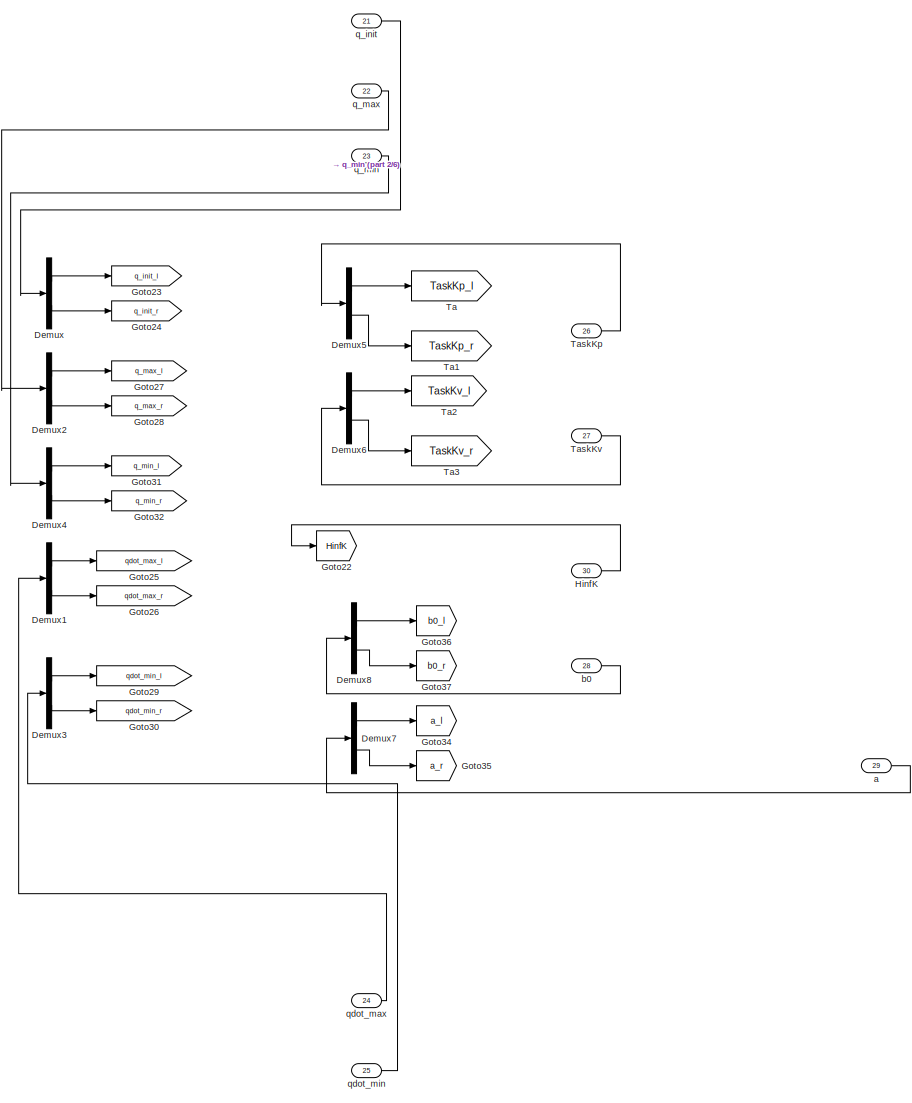
[diagram: DualArmTaskSpaceController - part 1/6, top center region]
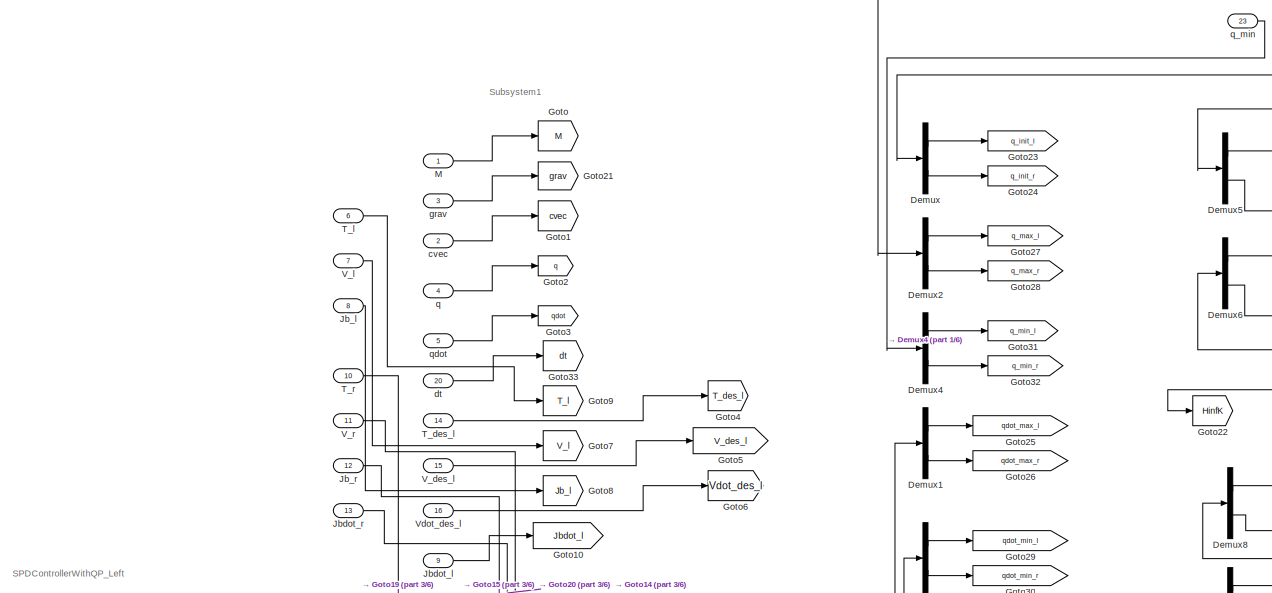
[diagram: DualArmTaskSpaceController - part 2/6, top left region]
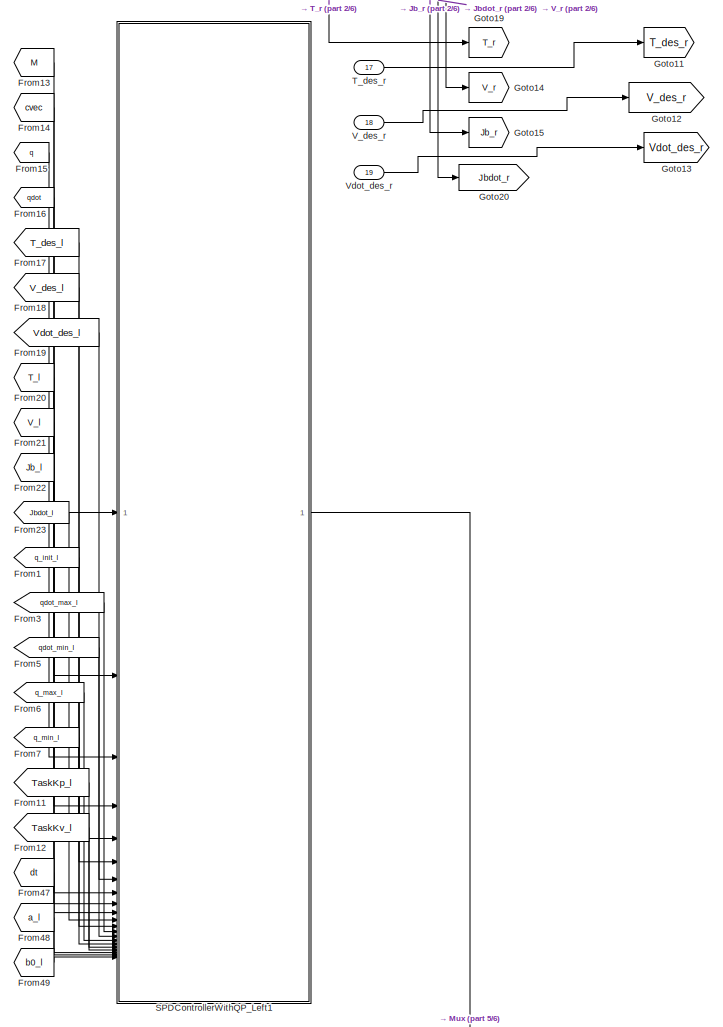
[diagram: DualArmTaskSpaceController - part 3/6, middle left region]
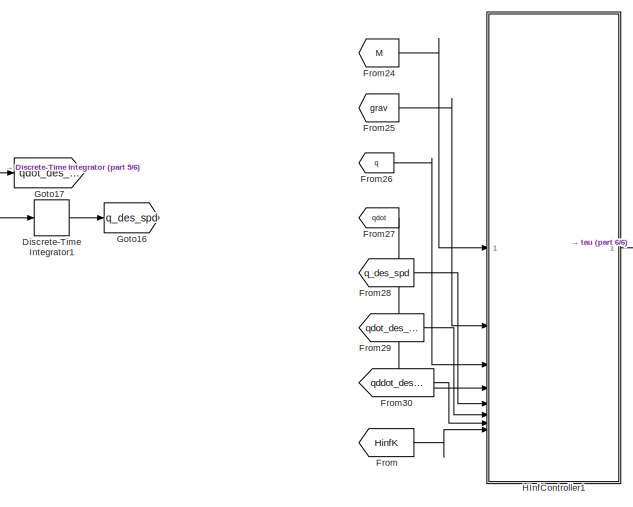
[diagram: DualArmTaskSpaceController - part 4/6, bottom center region]
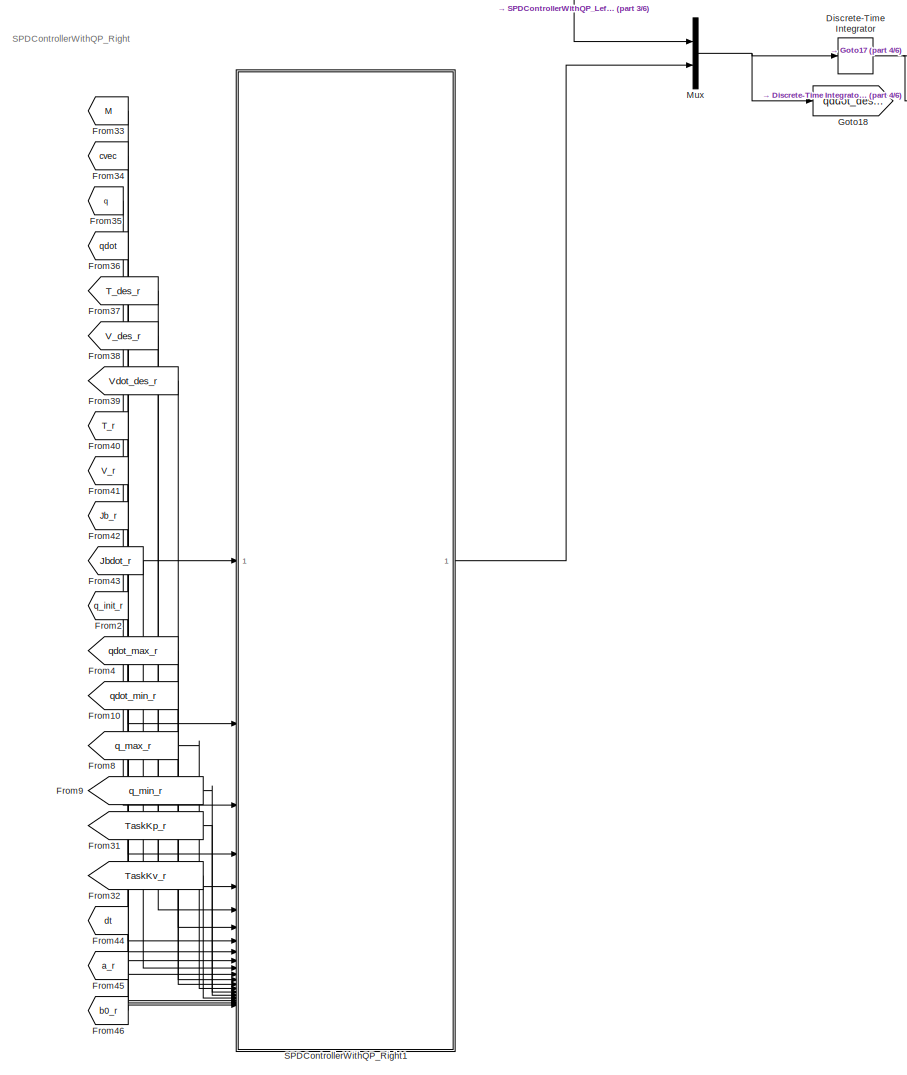
[diagram: DualArmTaskSpaceController - part 5/6, bottom left region]
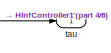
[diagram: DualArmTaskSpaceController - part 6/6, bottom right region]
BLOCK [SubSystem] DualArmTaskSpaceController
  Commented = on
BLOCK [Demux] DualArmTaskSpaceController/Demux
  Outputs = 2
BLOCK [Demux] DualArmTaskSpaceController/Demux1
  Outputs = 2
BLOCK [Demux] DualArmTaskSpaceController/Demux2
  Outputs = 2
BLOCK [Demux] DualArmTaskSpaceController/Demux3
  Outputs = 2
BLOCK [Demux] DualArmTaskSpaceController/Demux4
  Outputs = 2
BLOCK [Demux] DualArmTaskSpaceController/Demux5
  Outputs = 2
BLOCK [Demux] DualArmTaskSpaceController/Demux6
  Outputs = 2
BLOCK [Demux] DualArmTaskSpaceController/Demux7
  Outputs = 2
BLOCK [Demux] DualArmTaskSpaceController/Demux8
  Outputs = 2
BLOCK [DiscreteIntegrator] DualArmTaskSpaceController/Discrete-Time Integrator
  ICPrevOutput = DiscIntNeverNeededParam
  ICPrevScaledInput = DiscIntNeverNeededParam
  InitialConditionSetting = Auto
  LowerSaturationLimit = -ones(12,1)*pi
  SampleTime = -1
  UpperSaturationLimit = ones(12,1)*pi
BLOCK [DiscreteIntegrator] DualArmTaskSpaceController/Discrete-Time Integrator1
  ICPrevOutput = DiscIntNeverNeededParam
  ICPrevScaledInput = DiscIntNeverNeededParam
  InitialCondition = [q_init_l;q_init_r]
  InitialConditionSetting = Auto
  LowerSaturationLimit = -ones(12,1)*3.054325556
  SampleTime = -1
  UpperSaturationLimit = ones(12,1)*3.054325556
BLOCK [From] DualArmTaskSpaceController/From
  GotoTag = HinfK
BLOCK [From] DualArmTaskSpaceController/From1
  GotoTag = q_init_l
BLOCK [From] DualArmTaskSpaceController/From10
  GotoTag = qdot_min_r
BLOCK [From] DualArmTaskSpaceController/From11
  GotoTag = TaskKp_l
BLOCK [From] DualArmTaskSpaceController/From12
  GotoTag = TaskKv_l
BLOCK [From] DualArmTaskSpaceController/From13
  GotoTag = M
BLOCK [From] DualArmTaskSpaceController/From14
  GotoTag = cvec
BLOCK [From] DualArmTaskSpaceController/From15
  GotoTag = q
BLOCK [From] DualArmTaskSpaceController/From16
  GotoTag = qdot
BLOCK [From] DualArmTaskSpaceController/From17
  GotoTag = T_des_l
BLOCK [From] DualArmTaskSpaceController/From18
  GotoTag = V_des_l
BLOCK [From] DualArmTaskSpaceController/From19
  GotoTag = Vdot_des_l
BLOCK [From] DualArmTaskSpaceController/From2
  GotoTag = q_init_r
BLOCK [From] DualArmTaskSpaceController/From20
  GotoTag = T_l
BLOCK [From] DualArmTaskSpaceController/From21
  GotoTag = V_l
BLOCK [From] DualArmTaskSpaceController/From22
  GotoTag = Jb_l
BLOCK [From] DualArmTaskSpaceController/From23
  GotoTag = Jbdot_l
BLOCK [From] DualArmTaskSpaceController/From24
  GotoTag = M
BLOCK [From] DualArmTaskSpaceController/From25
  GotoTag = grav
BLOCK [From] DualArmTaskSpaceController/From26
  GotoTag = q
BLOCK [From] DualArmTaskSpaceController/From27
  GotoTag = qdot
BLOCK [From] DualArmTaskSpaceController/From28
  GotoTag = q_des_spd
BLOCK [From] DualArmTaskSpaceController/From29
  GotoTag = qdot_des_spd
BLOCK [From] DualArmTaskSpaceController/From3
  GotoTag = qdot_max_l
BLOCK [From] DualArmTaskSpaceController/From30
  GotoTag = qddot_des_spd
BLOCK [From] DualArmTaskSpaceController/From31
  GotoTag = TaskKp_r
BLOCK [From] DualArmTaskSpaceController/From32
  GotoTag = TaskKv_r
BLOCK [From] DualArmTaskSpaceController/From33
  GotoTag = M
BLOCK [From] DualArmTaskSpaceController/From34
  GotoTag = cvec
BLOCK [From] DualArmTaskSpaceController/From35
  GotoTag = q
BLOCK [From] DualArmTaskSpaceController/From36
  GotoTag = qdot
BLOCK [From] DualArmTaskSpaceController/From37
  GotoTag = T_des_r
BLOCK [From] DualArmTaskSpaceController/From38
  GotoTag = V_des_r
BLOCK [From] DualArmTaskSpaceController/From39
  GotoTag = Vdot_des_r
BLOCK [From] DualArmTaskSpaceController/From4
  GotoTag = qdot_max_r
BLOCK [From] DualArmTaskSpaceController/From40
  GotoTag = T_r
BLOCK [From] DualArmTaskSpaceController/From41
  GotoTag = V_r
BLOCK [From] DualArmTaskSpaceController/From42
  GotoTag = Jb_r
BLOCK [From] DualArmTaskSpaceController/From43
  GotoTag = Jbdot_r
BLOCK [From] DualArmTaskSpaceController/From44
  GotoTag = dt
BLOCK [From] DualArmTaskSpaceController/From45
  GotoTag = a_r
BLOCK [From] DualArmTaskSpaceController/From46
  GotoTag = b0_r
BLOCK [From] DualArmTaskSpaceController/From47
  GotoTag = dt
BLOCK [From] DualArmTaskSpaceController/From48
  GotoTag = a_l
BLOCK [From] DualArmTaskSpaceController/From49
  GotoTag = b0_l
BLOCK [From] DualArmTaskSpaceController/From5
  GotoTag = qdot_min_l
BLOCK [From] DualArmTaskSpaceController/From6
  GotoTag = q_max_l
BLOCK [From] DualArmTaskSpaceController/From7
  GotoTag = q_min_l
BLOCK [From] DualArmTaskSpaceController/From8
  GotoTag = q_max_r
BLOCK [From] DualArmTaskSpaceController/From9
  GotoTag = q_min_r
BLOCK [Goto] DualArmTaskSpaceController/Goto
  GotoTag = M
BLOCK [Goto] DualArmTaskSpaceController/Goto1
  GotoTag = cvec
BLOCK [Goto] DualArmTaskSpaceController/Goto10
  GotoTag = Jbdot_l
BLOCK [Goto] DualArmTaskSpaceController/Goto11
  GotoTag = T_des_r
BLOCK [Goto] DualArmTaskSpaceController/Goto12
  GotoTag = V_des_r
BLOCK [Goto] DualArmTaskSpaceController/Goto13
  GotoTag = Vdot_des_r
BLOCK [Goto] DualArmTaskSpaceController/Goto14
  GotoTag = V_r
BLOCK [Goto] DualArmTaskSpaceController/Goto15
  GotoTag = Jb_r
BLOCK [Goto] DualArmTaskSpaceController/Goto16
  GotoTag = q_des_spd
BLOCK [Goto] DualArmTaskSpaceController/Goto17
  GotoTag = qdot_des_spd
BLOCK [Goto] DualArmTaskSpaceController/Goto18
  GotoTag = qddot_des_spd
BLOCK [Goto] DualArmTaskSpaceController/Goto19
  GotoTag = T_r
BLOCK [Goto] DualArmTaskSpaceController/Goto2
  GotoTag = q
BLOCK [Goto] DualArmTaskSpaceController/Goto20
  GotoTag = Jbdot_r
BLOCK [Goto] DualArmTaskSpaceController/Goto21
  GotoTag = grav
BLOCK [Goto] DualArmTaskSpaceController/Goto22
  GotoTag = HinfK
BLOCK [Goto] DualArmTaskSpaceController/Goto23
  GotoTag = q_init_l
BLOCK [Goto] DualArmTaskSpaceController/Goto24
  GotoTag = q_init_r
BLOCK [Goto] DualArmTaskSpaceController/Goto25
  GotoTag = qdot_max_l
BLOCK [Goto] DualArmTaskSpaceController/Goto26
  GotoTag = qdot_max_r
BLOCK [Goto] DualArmTaskSpaceController/Goto27
  GotoTag = q_max_l
BLOCK [Goto] DualArmTaskSpaceController/Goto28
  GotoTag = q_max_r
BLOCK [Goto] DualArmTaskSpaceController/Goto29
  GotoTag = qdot_min_l
BLOCK [Goto] DualArmTaskSpaceController/Goto3
  GotoTag = qdot
BLOCK [Goto] DualArmTaskSpaceController/Goto30
  GotoTag = qdot_min_r
BLOCK [Goto] DualArmTaskSpaceController/Goto31
  GotoTag = q_min_l
BLOCK [Goto] DualArmTaskSpaceController/Goto32
  GotoTag = q_min_r
BLOCK [Goto] DualArmTaskSpaceController/Goto33
  GotoTag = dt
BLOCK [Goto] DualArmTaskSpaceController/Goto34
  GotoTag = a_l
BLOCK [Goto] DualArmTaskSpaceController/Goto35
  GotoTag = a_r
BLOCK [Goto] DualArmTaskSpaceController/Goto36
  GotoTag = b0_l
BLOCK [Goto] DualArmTaskSpaceController/Goto37
  GotoTag = b0_r
BLOCK [Goto] DualArmTaskSpaceController/Goto4
  GotoTag = T_des_l
BLOCK [Goto] DualArmTaskSpaceController/Goto5
  GotoTag = V_des_l
BLOCK [Goto] DualArmTaskSpaceController/Goto6
  GotoTag = Vdot_des_l
BLOCK [Goto] DualArmTaskSpaceController/Goto7
  GotoTag = V_l
BLOCK [Goto] DualArmTaskSpaceController/Goto8
  GotoTag = Jb_l
BLOCK [Goto] DualArmTaskSpaceController/Goto9
  GotoTag = T_l
BLOCK [SubSystem] DualArmTaskSpaceController/HInfController1
BLOCK [Reference] DualArmTaskSpaceController/HInfController1/Create Diagonal Matrix  REF=matrix_library/Create Diagonal
Matrix
  LibrarySourceBlock = simulink/Matrix\nOperations/Create Diagonal\nMatrix
  SourceBlock = matrix_library/Create Diagonal\nMatrix
  SourceType = Create Diagonal Matrix
BLOCK [DiscreteIntegrator] DualArmTaskSpaceController/HInfController1/Discrete-Time Integrator
  ICPrevOutput = DiscIntNeverNeededParam
  ICPrevScaledInput = DiscIntNeverNeededParam
  InitialConditionSetting = Auto
  LimitOutput = on
  LowerSaturationLimit = -10
  SampleTime = -1
  UpperSaturationLimit = 10
BLOCK [From] DualArmTaskSpaceController/HInfController1/From
  GotoTag = e
BLOCK [From] DualArmTaskSpaceController/HInfController1/From1
  GotoTag = e
BLOCK [From] DualArmTaskSpaceController/HInfController1/From2
  GotoTag = edot
BLOCK [From] DualArmTaskSpaceController/HInfController1/From3
  GotoTag = e
BLOCK [From] DualArmTaskSpaceController/HInfController1/From4
  GotoTag = edot
BLOCK [From] DualArmTaskSpaceController/HInfController1/From5
  GotoTag = eint
BLOCK [From] DualArmTaskSpaceController/HInfController1/From6
  GotoTag = eint
BLOCK [From] DualArmTaskSpaceController/HInfController1/From7
  GotoTag = e
BLOCK [Gain] DualArmTaskSpaceController/HInfController1/Gain
  Gain = 100
BLOCK [Gain] DualArmTaskSpaceController/HInfController1/Gain1
  Gain = 20
BLOCK [Gain] DualArmTaskSpaceController/HInfController1/Gain2
  Gain = 100
BLOCK [Gain] DualArmTaskSpaceController/HInfController1/Gain3
  Gain = 20
BLOCK [Gain] DualArmTaskSpaceController/HInfController1/Gain4
  Gain = 100
BLOCK [Gain] DualArmTaskSpaceController/HInfController1/Gain5
  Gain = 20
BLOCK [Goto] DualArmTaskSpaceController/HInfController1/Goto
  GotoTag = e
BLOCK [Goto] DualArmTaskSpaceController/HInfController1/Goto1
  GotoTag = edot
BLOCK [Goto] DualArmTaskSpaceController/HInfController1/Goto2
  GotoTag = eint
BLOCK [Inport] DualArmTaskSpaceController/HInfController1/HinfK
  Port = 8
BLOCK [Inport] DualArmTaskSpaceController/HInfController1/M
BLOCK [Product] DualArmTaskSpaceController/HInfController1/Matrix Multiply
  Multiplication = Matrix(*)
BLOCK [Product] DualArmTaskSpaceController/HInfController1/MatrixMultiply
  Multiplication = Matrix(*)
BLOCK [Sum] DualArmTaskSpaceController/HInfController1/Sum
  Inputs = |+-
BLOCK [Sum] DualArmTaskSpaceController/HInfController1/Sum1
  Inputs = |+-
BLOCK [Sum] DualArmTaskSpaceController/HInfController1/Sum2
  Inputs = |+++
BLOCK [Sum] DualArmTaskSpaceController/HInfController1/Sum3
  Inputs = |++++
BLOCK [Sum] DualArmTaskSpaceController/HInfController1/Sum4
  Inputs = |+++
BLOCK [Sum] DualArmTaskSpaceController/HInfController1/Sum5
  Inputs = |+++
BLOCK [Reference] DualArmTaskSpaceController/HInfController1/Velocity Product Torque  REF=robotmaniplib/Velocity Product Torque
  SourceBlock = robotmaniplib/Velocity Product Torque
  SourceType = Velocity Product Torque
BLOCK [Inport] DualArmTaskSpaceController/HInfController1/gvec
  Port = 2
BLOCK [Inport] DualArmTaskSpaceController/HInfController1/q
  Port = 3
BLOCK [Inport] DualArmTaskSpaceController/HInfController1/q_des
  Port = 5
BLOCK [Inport] DualArmTaskSpaceController/HInfController1/qddot_des
  Port = 7
BLOCK [Inport] DualArmTaskSpaceController/HInfController1/qdot
  Port = 4
BLOCK [Inport] DualArmTaskSpaceController/HInfController1/qdot_des
  Port = 6
BLOCK [Outport] DualArmTaskSpaceController/HInfController1/tau
BLOCK [Inport] DualArmTaskSpaceController/HinfK
  Port = 30
BLOCK [Inport] DualArmTaskSpaceController/Jb_l
  Port = 8
BLOCK [Inport] DualArmTaskSpaceController/Jb_r
  Port = 12
BLOCK [Inport] DualArmTaskSpaceController/Jbdot_l
  Port = 9
BLOCK [Inport] DualArmTaskSpaceController/Jbdot_r
  Port = 13
BLOCK [Inport] DualArmTaskSpaceController/M
BLOCK [Mux] DualArmTaskSpaceController/Mux
  DisplayOption = bar
  Inputs = 2
BLOCK [SubSystem] DualArmTaskSpaceController/SPDControllerWithQP_Left1
  ErrorFcn = Stateflow.Translate.translate
  PermitHierarchicalResolution = ExplicitOnly
  SFBlockType = MATLAB Function
  TreatAsAtomicUnit = on
BLOCK [Demux] DualArmTaskSpaceController/SPDControllerWithQP_Left1/ Demux 
  Outputs = 1
BLOCK [S-Function] DualArmTaskSpaceController/SPDControllerWithQP_Left1/ SFunction 
  EnableBusSupport = on
  FunctionName = sf_sfun
  PortCounts = [21 2]
  SFcnIsStateOwnerBlock = off
  SFunctionDeploymentMode = off
  Tag = Stateflow S-Function 18
BLOCK [Terminator] DualArmTaskSpaceController/SPDControllerWithQP_Left1/ Terminator 
BLOCK [Inport] DualArmTaskSpaceController/SPDControllerWithQP_Left1/J
  Port = 10
BLOCK [Inport] DualArmTaskSpaceController/SPDControllerWithQP_Left1/Jdot
  Port = 11
BLOCK [Inport] DualArmTaskSpaceController/SPDControllerWithQP_Left1/M
BLOCK [Inport] DualArmTaskSpaceController/SPDControllerWithQP_Left1/T
  Port = 8
BLOCK [Inport] DualArmTaskSpaceController/SPDControllerWithQP_Left1/TaskKp
  Port = 17
BLOCK [Inport] DualArmTaskSpaceController/SPDControllerWithQP_Left1/TaskKv
  Port = 18
BLOCK [Inport] DualArmTaskSpaceController/SPDControllerWithQP_Left1/Tdes
  Port = 5
BLOCK [Inport] DualArmTaskSpaceController/SPDControllerWithQP_Left1/V
  Port = 9
BLOCK [Inport] DualArmTaskSpaceController/SPDControllerWithQP_Left1/Vdes
  Port = 6
BLOCK [Inport] DualArmTaskSpaceController/SPDControllerWithQP_Left1/Vdotdes
  Port = 7
BLOCK [Inport] DualArmTaskSpaceController/SPDControllerWithQP_Left1/a
  Port = 20
BLOCK [Inport] DualArmTaskSpaceController/SPDControllerWithQP_Left1/b0
  Port = 21
BLOCK [Inport] DualArmTaskSpaceController/SPDControllerWithQP_Left1/cvec
  Port = 2
BLOCK [Inport] DualArmTaskSpaceController/SPDControllerWithQP_Left1/dt
  Port = 19
BLOCK [Inport] DualArmTaskSpaceController/SPDControllerWithQP_Left1/q
  Port = 3
BLOCK [Inport] DualArmTaskSpaceController/SPDControllerWithQP_Left1/q_max
  Port = 15
BLOCK [Inport] DualArmTaskSpaceController/SPDControllerWithQP_Left1/q_min
  Port = 16
BLOCK [Outport] DualArmTaskSpaceController/SPDControllerWithQP_Left1/qddot
BLOCK [Inport] DualArmTaskSpaceController/SPDControllerWithQP_Left1/qdot
  Port = 4
BLOCK [Inport] DualArmTaskSpaceController/SPDControllerWithQP_Left1/qdot_max
  Port = 13
BLOCK [Inport] DualArmTaskSpaceController/SPDControllerWithQP_Left1/qdot_min
  Port = 14
BLOCK [Inport] DualArmTaskSpaceController/SPDControllerWithQP_Left1/qinit
  Port = 12
BLOCK [SubSystem] DualArmTaskSpaceController/SPDControllerWithQP_Right1
  ErrorFcn = Stateflow.Translate.translate
  PermitHierarchicalResolution = ExplicitOnly
  SFBlockType = MATLAB Function
  TreatAsAtomicUnit = on
BLOCK [Demux] DualArmTaskSpaceController/SPDControllerWithQP_Right1/ Demux 
  Outputs = 1
BLOCK [S-Function] DualArmTaskSpaceController/SPDControllerWithQP_Right1/ SFunction 
  EnableBusSupport = on
  FunctionName = sf_sfun
  PortCounts = [21 2]
  SFcnIsStateOwnerBlock = off
  SFunctionDeploymentMode = off
  Tag = Stateflow S-Function 28
BLOCK [Terminator] DualArmTaskSpaceController/SPDControllerWithQP_Right1/ Terminator 
BLOCK [Inport] DualArmTaskSpaceController/SPDControllerWithQP_Right1/J
  Port = 10
BLOCK [Inport] DualArmTaskSpaceController/SPDControllerWithQP_Right1/Jdot
  Port = 11
BLOCK [Inport] DualArmTaskSpaceController/SPDControllerWithQP_Right1/M
BLOCK [Inport] DualArmTaskSpaceController/SPDControllerWithQP_Right1/T
  Port = 8
BLOCK [Inport] DualArmTaskSpaceController/SPDControllerWithQP_Right1/TaskKp
  Port = 17
BLOCK [Inport] DualArmTaskSpaceController/SPDControllerWithQP_Right1/TaskKv
  Port = 18
BLOCK [Inport] DualArmTaskSpaceController/SPDControllerWithQP_Right1/Tdes
  Port = 5
BLOCK [Inport] DualArmTaskSpaceController/SPDControllerWithQP_Right1/V
  Port = 9
BLOCK [Inport] DualArmTaskSpaceController/SPDControllerWithQP_Right1/Vdes
  Port = 6
BLOCK [Inport] DualArmTaskSpaceController/SPDControllerWithQP_Right1/Vdotdes
  Port = 7
BLOCK [Inport] DualArmTaskSpaceController/SPDControllerWithQP_Right1/a
  Port = 20
BLOCK [Inport] DualArmTaskSpaceController/SPDControllerWithQP_Right1/b0
  Port = 21
BLOCK [Inport] DualArmTaskSpaceController/SPDControllerWithQP_Right1/cvec
  Port = 2
BLOCK [Inport] DualArmTaskSpaceController/SPDControllerWithQP_Right1/dt
  Port = 19
BLOCK [Inport] DualArmTaskSpaceController/SPDControllerWithQP_Right1/q
  Port = 3
BLOCK [Inport] DualArmTaskSpaceController/SPDControllerWithQP_Right1/q_max
  Port = 15
BLOCK [Inport] DualArmTaskSpaceController/SPDControllerWithQP_Right1/q_min
  Port = 16
BLOCK [Outport] DualArmTaskSpaceController/SPDControllerWithQP_Right1/qddot
BLOCK [Inport] DualArmTaskSpaceController/SPDControllerWithQP_Right1/qdot
  Port = 4
BLOCK [Inport] DualArmTaskSpaceController/SPDControllerWithQP_Right1/qdot_max
  Port = 13
BLOCK [Inport] DualArmTaskSpaceController/SPDControllerWithQP_Right1/qdot_min
  Port = 14
BLOCK [Inport] DualArmTaskSpaceController/SPDControllerWithQP_Right1/qinit
  Port = 12
BLOCK [Inport] DualArmTaskSpaceController/T_des_l
  Port = 14
BLOCK [Inport] DualArmTaskSpaceController/T_des_r
  Port = 17
BLOCK [Inport] DualArmTaskSpaceController/T_l
  Port = 6
BLOCK [Inport] DualArmTaskSpaceController/T_r
  Port = 10
BLOCK [Goto] DualArmTaskSpaceController/Ta
  GotoTag = TaskKp_l
BLOCK [Goto] DualArmTaskSpaceController/Ta1
  GotoTag = TaskKp_r
BLOCK [Goto] DualArmTaskSpaceController/Ta2
  GotoTag = TaskKv_l
BLOCK [Goto] DualArmTaskSpaceController/Ta3
  GotoTag = TaskKv_r
BLOCK [Inport] DualArmTaskSpaceController/TaskKp
  Port = 26
BLOCK [Inport] DualArmTaskSpaceController/TaskKv
  Port = 27
BLOCK [Inport] DualArmTaskSpaceController/V_des_l
  Port = 15
BLOCK [Inport] DualArmTaskSpaceController/V_des_r
  Port = 18
BLOCK [Inport] DualArmTaskSpaceController/V_l
  Port = 7
BLOCK [Inport] DualArmTaskSpaceController/V_r
  Port = 11
BLOCK [Inport] DualArmTaskSpaceController/Vdot_des_l
  Port = 16
BLOCK [Inport] DualArmTaskSpaceController/Vdot_des_r
  Port = 19
BLOCK [Inport] DualArmTaskSpaceController/a
  Port = 29
BLOCK [Inport] DualArmTaskSpaceController/b0
  Port = 28
BLOCK [Inport] DualArmTaskSpaceController/cvec
  Port = 2
BLOCK [Inport] DualArmTaskSpaceController/dt
  Port = 20
BLOCK [Inport] DualArmTaskSpaceController/grav
  Port = 3
BLOCK [Inport] DualArmTaskSpaceController/q
  Port = 4
BLOCK [Inport] DualArmTaskSpaceController/q_init
  Port = 21
BLOCK [Inport] DualArmTaskSpaceController/q_max
  Port = 22
BLOCK [Inport] DualArmTaskSpaceController/q_min
  Port = 23
BLOCK [Inport] DualArmTaskSpaceController/qdot
  Port = 5
BLOCK [Inport] DualArmTaskSpaceController/qdot_max
  Port = 24
BLOCK [Inport] DualArmTaskSpaceController/qdot_min
  Port = 25
BLOCK [Outport] DualArmTaskSpaceController/tau
BLOCK [From] From
  GotoTag = q
BLOCK [From] From1
  GotoTag = qdot
BLOCK [From] From10
  GotoTag = q
BLOCK [From] From11
  GotoTag = q_des
BLOCK [From] From12
  GotoTag = qdot
BLOCK [From] From13
  Commented = on
  GotoTag = M
BLOCK [From] From14
  Commented = on
  GotoTag = cvec
BLOCK [From] From15
  Commented = on
  GotoTag = grav
BLOCK [From] From16
  Commented = on
  GotoTag = qdot
BLOCK [From] From17
  GotoTag = grav
BLOCK [From] From18
  Commented = on
  GotoTag = T_l
BLOCK [From] From19
  Commented = on
  GotoTag = V_l
BLOCK [From] From2
  Commented = on
  GotoTag = M
BLOCK [From] From20
  Commented = on
  GotoTag = Jb_l
BLOCK [From] From21
  Commented = on
  GotoTag = Jbdot_l
BLOCK [From] From22
  Commented = on
  GotoTag = T_r
BLOCK [From] From23
  Commented = on
  GotoTag = V_r
BLOCK [From] From24
  Commented = on
  GotoTag = Jb_r
BLOCK [From] From25
  Commented = on
  GotoTag = Jbdot_r
BLOCK [From] From26
  Commented = on
  GotoTag = T_des_l
BLOCK [From] From27
  Commented = on
  GotoTag = V_des_r
BLOCK [From] From28
  GotoTag = T_l
BLOCK [From] From29
  Commented = on
  GotoTag = Vdot_des_r
BLOCK [From] From3
  GotoTag = q
BLOCK [From] From30
  GotoTag = q
BLOCK [From] From31
  GotoTag = M
BLOCK [From] From32
  Commented = on
  GotoTag = q
BLOCK [From] From33
  GotoTag = T_r
BLOCK [From] From36
  Commented = on
  GotoTag = V_des_l
BLOCK [From] From37
  Commented = on
  GotoTag = Vdot_des_l
BLOCK [From] From38
  Commented = on
  GotoTag = T_des_r
BLOCK [From] From4
  Commented = on
  GotoTag = grav
BLOCK [From] From5
  Commented = on
  GotoTag = q
BLOCK [From] From6
  Commented = on
  GotoTag = qdot
BLOCK [From] From7
  Commented = on
  GotoTag = q_des_spd
BLOCK [From] From8
  Commented = on
  GotoTag = qdot_des_spd
BLOCK [From] From9
  Commented = on
  GotoTag = qddot_des_spd
BLOCK [Gain] Gain
  Commented = on
  Gain = 0
BLOCK [Gain] Gain1
  Commented = on
  Gain = 0.001*30
BLOCK [Reference] Get Transform1  REF=robotmaniplib/Get Transform
  Commented = on
  SourceBlock = robotmaniplib/Get Transform
  SourceType = Get Transform
BLOCK [Reference] Get Transform2  REF=robotmaniplib/Get Transform
  Commented = on
  SourceBlock = robotmaniplib/Get Transform
  SourceType = Get Transform
BLOCK [Goto] Goto
  GotoTag = q
BLOCK [Goto] Goto1
  GotoTag = qdot
BLOCK [Goto] Goto10
  GotoTag = Jb_l
BLOCK [Goto] Goto11
  GotoTag = Jbdot_l
BLOCK [Goto] Goto12
  GotoTag = T_r
BLOCK [Goto] Goto13
  GotoTag = V_r
BLOCK [Goto] Goto14
  GotoTag = Jb_r
BLOCK [Goto] Goto15
  GotoTag = Jbdot_r
BLOCK [Goto] Goto2
  Commented = on
  GotoTag = q_des
BLOCK [Goto] Goto3
  Commented = on
  GotoTag = qdot_des
BLOCK [Goto] Goto4
  Commented = on
  GotoTag = qddot_des
BLOCK [Goto] Goto5
  GotoTag = M
BLOCK [Goto] Goto6
  GotoTag = cvec
BLOCK [Goto] Goto7
  GotoTag = grav
BLOCK [Goto] Goto8
  GotoTag = T_l
BLOCK [Goto] Goto9
  GotoTag = V_l
BLOCK [SubSystem] HInfController
  Commented = on
BLOCK [Reference] HInfController/Create Diagonal Matrix  REF=matrix_library/Create Diagonal
Matrix
  LibrarySourceBlock = simulink/Matrix\nOperations/Create Diagonal\nMatrix
  SourceBlock = matrix_library/Create Diagonal\nMatrix
  SourceType = Create Diagonal Matrix
BLOCK [DiscreteIntegrator] HInfController/Discrete-Time Integrator
  ICPrevOutput = DiscIntNeverNeededParam
  ICPrevScaledInput = DiscIntNeverNeededParam
  InitialConditionSetting = Auto
  LimitOutput = on
  LowerSaturationLimit = -10
  SampleTime = -1
  UpperSaturationLimit = 10
BLOCK [From] HInfController/From
  GotoTag = e
BLOCK [From] HInfController/From1
  GotoTag = e
BLOCK [From] HInfController/From2
  GotoTag = edot
BLOCK [From] HInfController/From3
  GotoTag = e
BLOCK [From] HInfController/From4
  GotoTag = edot
BLOCK [From] HInfController/From5
  GotoTag = eint
BLOCK [From] HInfController/From6
  GotoTag = eint
BLOCK [From] HInfController/From7
  GotoTag = e
BLOCK [Gain] HInfController/Gain
  Gain = 100
BLOCK [Gain] HInfController/Gain1
  Gain = 20
BLOCK [Gain] HInfController/Gain2
  Gain = 100
BLOCK [Gain] HInfController/Gain3
  Gain = 20
BLOCK [Gain] HInfController/Gain4
  Gain = 100
BLOCK [Gain] HInfController/Gain5
  Gain = 20
BLOCK [Goto] HInfController/Goto
  GotoTag = e
BLOCK [Goto] HInfController/Goto1
  GotoTag = edot
BLOCK [Goto] HInfController/Goto2
  GotoTag = eint
BLOCK [Inport] HInfController/HinfK
  Port = 8
BLOCK [Inport] HInfController/M
BLOCK [Product] HInfController/Matrix Multiply
  Multiplication = Matrix(*)
BLOCK [Product] HInfController/MatrixMultiply
  Multiplication = Matrix(*)
BLOCK [Sum] HInfController/Sum
  Inputs = |+-
BLOCK [Sum] HInfController/Sum1
  Inputs = |+-
BLOCK [Sum] HInfController/Sum2
  Inputs = |+++
BLOCK [Sum] HInfController/Sum3
  Inputs = |++++
BLOCK [Sum] HInfController/Sum4
  Inputs = |+++
BLOCK [Sum] HInfController/Sum5
  Inputs = |+++
BLOCK [Reference] HInfController/Velocity Product Torque  REF=robotmaniplib/Velocity Product Torque
  SourceBlock = robotmaniplib/Velocity Product Torque
  SourceType = Velocity Product Torque
BLOCK [Inport] HInfController/gvec
  Port = 2
BLOCK [Inport] HInfController/q
  Port = 3
BLOCK [Inport] HInfController/q_des
  Port = 5
BLOCK [Inport] HInfController/qddot_des
  Port = 7
BLOCK [Inport] HInfController/qdot
  Port = 4
BLOCK [Inport] HInfController/qdot_des
  Port = 6
BLOCK [Outport] HInfController/tau
BLOCK [Constant] HinfK
  Commented = on
  Value = [500,500,100,50,10,1,500,500,100,50,10,1]
BLOCK [SubSystem] InverseDynamics
BLOCK [Reference] InverseDynamics/Gravity Torque  REF=robotmaniplib/Gravity Torque
  SourceBlock = robotmaniplib/Gravity Torque
  SourceType = Gravity Torque
BLOCK [Reference] InverseDynamics/Joint Space Mass Matrix  REF=robotmaniplib/Joint Space Mass Matrix
  SourceBlock = robotmaniplib/Joint Space Mass Matrix
  SourceType = Joint Space Mass Matrix
BLOCK [Outport] InverseDynamics/MassMatrix
BLOCK [Reference] InverseDynamics/Velocity Product Torque  REF=robotmaniplib/Velocity Product Torque
  SourceBlock = robotmaniplib/Velocity Product Torque
  SourceType = Velocity Product Torque
BLOCK [Outport] InverseDynamics/cvec
  Port = 2
BLOCK [Outport] InverseDynamics/grav
  Port = 3
BLOCK [Inport] InverseDynamics/q
BLOCK [Inport] InverseDynamics/qdot
  Port = 2
BLOCK [Outport] Jb_l
  Port = 6
BLOCK [Outport] Jb_r
  Port = 7
BLOCK [Outport] Jb_rl
  Port = 10
BLOCK [Outport] Jbdot_l
  Port = 8
BLOCK [Outport] Jbdot_r
  Port = 9
BLOCK [Outport] Jbdot_rl
  Port = 11
BLOCK [SubSystem] Kinematics
BLOCK [Demux] Kinematics/Demux
  Outputs = 2
BLOCK [Demux] Kinematics/Demux1
  Outputs = 2
BLOCK [Demux] Kinematics/Demux2
  Outputs = 2
BLOCK [Outport] Kinematics/Jb_l
  Port = 11
BLOCK [Outport] Kinematics/Jb_lr
  Port = 2
BLOCK [Outport] Kinematics/Jb_r
  Port = 7
BLOCK [Outport] Kinematics/Jbdot_l
  Port = 12
BLOCK [Outport] Kinematics/Jbdot_lrl
BLOCK [Outport] Kinematics/Jbdot_r
  Port = 6
BLOCK [SubSystem] Kinematics/MATLAB Function
  ErrorFcn = Stateflow.Translate.translate
  PermitHierarchicalResolution = ExplicitOnly
  SFBlockType = MATLAB Function
  TreatAsAtomicUnit = on
BLOCK [Demux] Kinematics/MATLAB Function/ Demux 
  Outputs = 1
BLOCK [S-Function] Kinematics/MATLAB Function/ SFunction 
  EnableBusSupport = on
  FunctionName = sf_sfun
  PortCounts = [3 4]
  SFcnIsStateOwnerBlock = off
  SFunctionDeploymentMode = off
  Tag = Stateflow S-Function 2
BLOCK [Terminator] Kinematics/MATLAB Function/ Terminator 
BLOCK [Outport] Kinematics/MATLAB Function/J
  Port = 2
BLOCK [Outport] Kinematics/MATLAB Function/Jdot
BLOCK [Outport] Kinematics/MATLAB Function/T
  Port = 3
BLOCK [Inport] Kinematics/MATLAB Function/lambda_list
BLOCK [Inport] Kinematics/MATLAB Function/q
  Port = 2
BLOCK [Inport] Kinematics/MATLAB Function/q_dot
  Port = 3
BLOCK [SubSystem] Kinematics/MATLAB Function1
  ErrorFcn = Stateflow.Translate.translate
  PermitHierarchicalResolution = ExplicitOnly
  SFBlockType = MATLAB Function
  TreatAsAtomicUnit = on
BLOCK [Demux] Kinematics/MATLAB Function1/ Demux 
  Outputs = 1
BLOCK [S-Function] Kinematics/MATLAB Function1/ SFunction 
  EnableBusSupport = on
  FunctionName = sf_sfun
  PortCounts = [1 2]
  SFcnIsStateOwnerBlock = off
  SFunctionDeploymentMode = off
  Tag = Stateflow S-Function 1
BLOCK [Terminator] Kinematics/MATLAB Function1/ Terminator 
BLOCK [Inport] Kinematics/MATLAB Function1/q
BLOCK [Outport] Kinematics/MATLAB Function1/q_lr
BLOCK [SubSystem] Kinematics/MATLAB Function2
  ErrorFcn = Stateflow.Translate.translate
  PermitHierarchicalResolution = ExplicitOnly
  SFBlockType = MATLAB Function
  TreatAsAtomicUnit = on
BLOCK [Demux] Kinematics/MATLAB Function2/ Demux 
  Outputs = 1
BLOCK [S-Function] Kinematics/MATLAB Function2/ SFunction 
  EnableBusSupport = on
  FunctionName = sf_sfun
  PortCounts = [1 2]
  SFcnIsStateOwnerBlock = off
  SFunctionDeploymentMode = off
  Tag = Stateflow S-Function 3
BLOCK [Terminator] Kinematics/MATLAB Function2/ Terminator 
BLOCK [Inport] Kinematics/MATLAB Function2/q
BLOCK [Outport] Kinematics/MATLAB Function2/q_lr
BLOCK [SubSystem] Kinematics/MATLAB Function7
  ErrorFcn = Stateflow.Translate.translate
  PermitHierarchicalResolution = ExplicitOnly
  SFBlockType = MATLAB Function
  TreatAsAtomicUnit = on
BLOCK [Demux] Kinematics/MATLAB Function7/ Demux 
  Outputs = 1
BLOCK [S-Function] Kinematics/MATLAB Function7/ SFunction 
  EnableBusSupport = on
  FunctionName = sf_sfun
  PortCounts = [3 4]
  SFcnIsStateOwnerBlock = off
  SFunctionDeploymentMode = off
  Tag = Stateflow S-Function 11
BLOCK [Terminator] Kinematics/MATLAB Function7/ Terminator 
BLOCK [Outport] Kinematics/MATLAB Function7/J
  Port = 2
BLOCK [Outport] Kinematics/MATLAB Function7/Jdot
BLOCK [Outport] Kinematics/MATLAB Function7/T
  Port = 3
BLOCK [Inport] Kinematics/MATLAB Function7/lambda_list
BLOCK [Inport] Kinematics/MATLAB Function7/q
  Port = 2
BLOCK [Inport] Kinematics/MATLAB Function7/q_dot
  Port = 3
BLOCK [SubSystem] Kinematics/MATLAB Function8
  ErrorFcn = Stateflow.Translate.translate
  PermitHierarchicalResolution = ExplicitOnly
  SFBlockType = MATLAB Function
  TreatAsAtomicUnit = on
BLOCK [Demux] Kinematics/MATLAB Function8/ Demux 
  Outputs = 1
BLOCK [S-Function] Kinematics/MATLAB Function8/ SFunction 
  EnableBusSupport = on
  FunctionName = sf_sfun
  PortCounts = [3 4]
  SFcnIsStateOwnerBlock = off
  SFunctionDeploymentMode = off
  Tag = Stateflow S-Function 12
BLOCK [Terminator] Kinematics/MATLAB Function8/ Terminator 
BLOCK [Outport] Kinematics/MATLAB Function8/J
  Port = 2
BLOCK [Outport] Kinematics/MATLAB Function8/Jdot
BLOCK [Outport] Kinematics/MATLAB Function8/T
  Port = 3
BLOCK [Inport] Kinematics/MATLAB Function8/lambda_list
BLOCK [Inport] Kinematics/MATLAB Function8/q
  Port = 2
BLOCK [Inport] Kinematics/MATLAB Function8/q_dot
  Port = 3
BLOCK [Product] Kinematics/Matrix Multiply
  Multiplication = Matrix(*)
BLOCK [Product] Kinematics/Matrix Multiply1
  Multiplication = Matrix(*)
BLOCK [Product] Kinematics/Matrix Multiply2
  Multiplication = Matrix(*)
BLOCK [Outport] Kinematics/T_l
  Port = 4
BLOCK [Outport] Kinematics/T_lr
  Port = 3
BLOCK [Outport] Kinematics/T_r
  Port = 5
BLOCK [Outport] Kinematics/V_l
  Port = 8
BLOCK [Outport] Kinematics/V_lr
  Port = 10
BLOCK [Outport] Kinematics/V_r
  Port = 9
BLOCK [Inport] Kinematics/lamba_l_list
  Port = 4
BLOCK [Inport] Kinematics/lamba_r_list
  Port = 5
BLOCK [Inport] Kinematics/lambda_lr_list
BLOCK [Inport] Kinematics/q
  Port = 2
BLOCK [Inport] Kinematics/qdot
  Port = 3
BLOCK [Constant] LeftLambda
  Value = lambda_l_list
BLOCK [SubSystem] MATLAB Function
  ErrorFcn = Stateflow.Translate.translate
  PermitHierarchicalResolution = ExplicitOnly
  SFBlockType = MATLAB Function
  TreatAsAtomicUnit = on
BLOCK [Demux] MATLAB Function/ Demux 
  Outputs = 1
BLOCK [S-Function] MATLAB Function/ SFunction 
  EnableBusSupport = on
  FunctionName = sf_sfun
  PortCounts = [2 3]
  SFcnIsStateOwnerBlock = off
  SFunctionDeploymentMode = off
  Tag = Stateflow S-Function 19
BLOCK [Terminator] MATLAB Function/ Terminator 
BLOCK [Inport] MATLAB Function/Tl
BLOCK [Outport] MATLAB Function/Tlr
BLOCK [Inport] MATLAB Function/Tr
  Port = 2
BLOCK [Outport] MATLAB Function/Trl
  Port = 2
BLOCK [ManualSwitch] Manual Switch
  CurrentSetting = 0
BLOCK [Product] Matrix Multiply
  Commented = on
  Multiplication = Matrix(*)
BLOCK [Product] Matrix Multiply1
  Commented = on
  Multiplication = Matrix(*)
BLOCK [Reference] Polynomial Trajectory  REF=robotcorelib/Polynomial Trajectory
  Commented = on
  LibrarySourceBlock = robotutilslib/Polynomial Trajectory
  SourceBlock = robotcorelib/Polynomial Trajectory
  SourceType = robotics.slcore.internal.block.PolyTrajSys
BLOCK [Reference] Ramp  REF=simulink/Sources/Ramp
  Commented = on
  SourceBlock = simulink/Sources/Ramp
  SourceType = Ramp
BLOCK [Reference] Ramp1  REF=simulink/Sources/Ramp
  SourceBlock = simulink/Sources/Ramp
  SourceType = Ramp
BLOCK [Reference] Ramp2  REF=simulink/Sources/Ramp
  Commented = on
  SourceBlock = simulink/Sources/Ramp
  SourceType = Ramp
BLOCK [Reference] Ramp3  REF=simulink/Sources/Ramp
  Commented = on
  SourceBlock = simulink/Sources/Ramp
  SourceType = Ramp
BLOCK [Constant] RightLambda
  Value = lambda_r_list
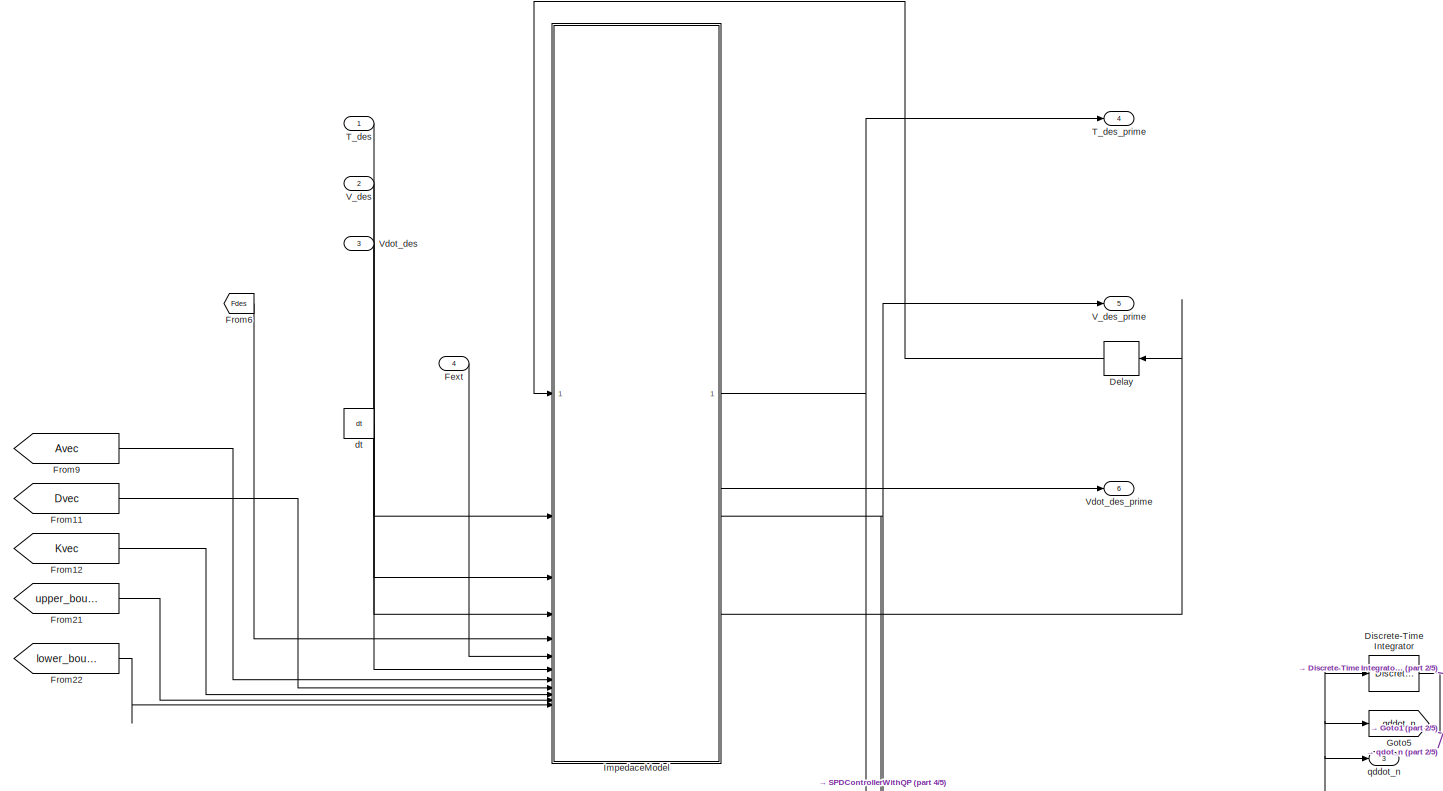
[diagram: SPDController - part 1/5, top center region]
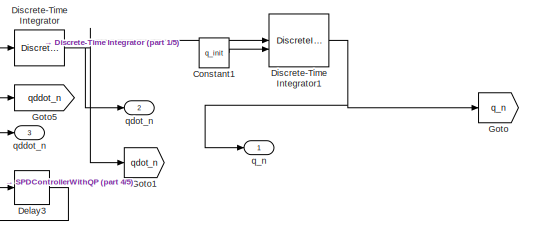
[diagram: SPDController - part 2/5, middle right region]
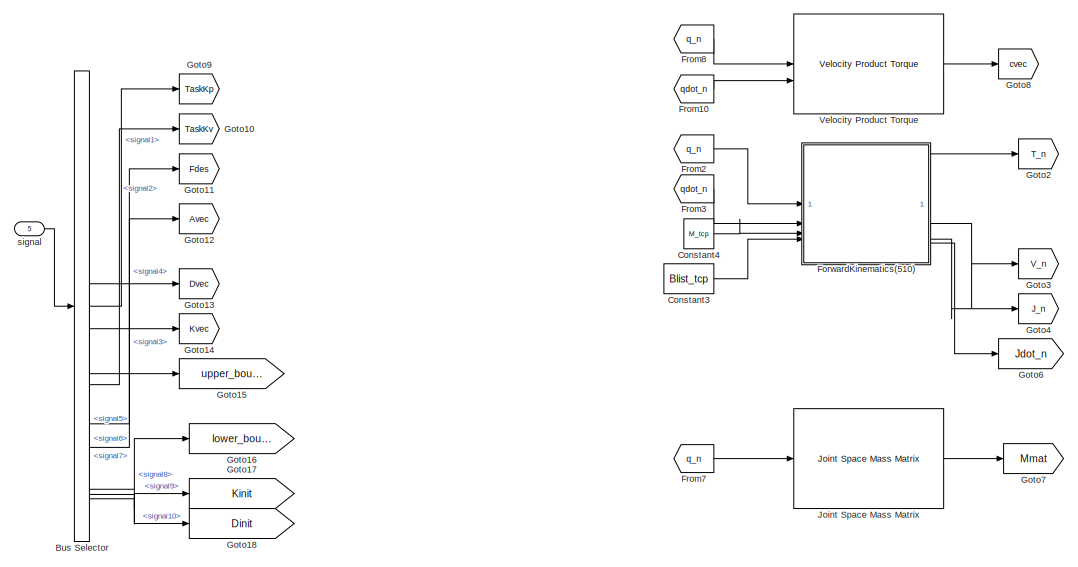
[diagram: SPDController - part 3/5, middle left region]
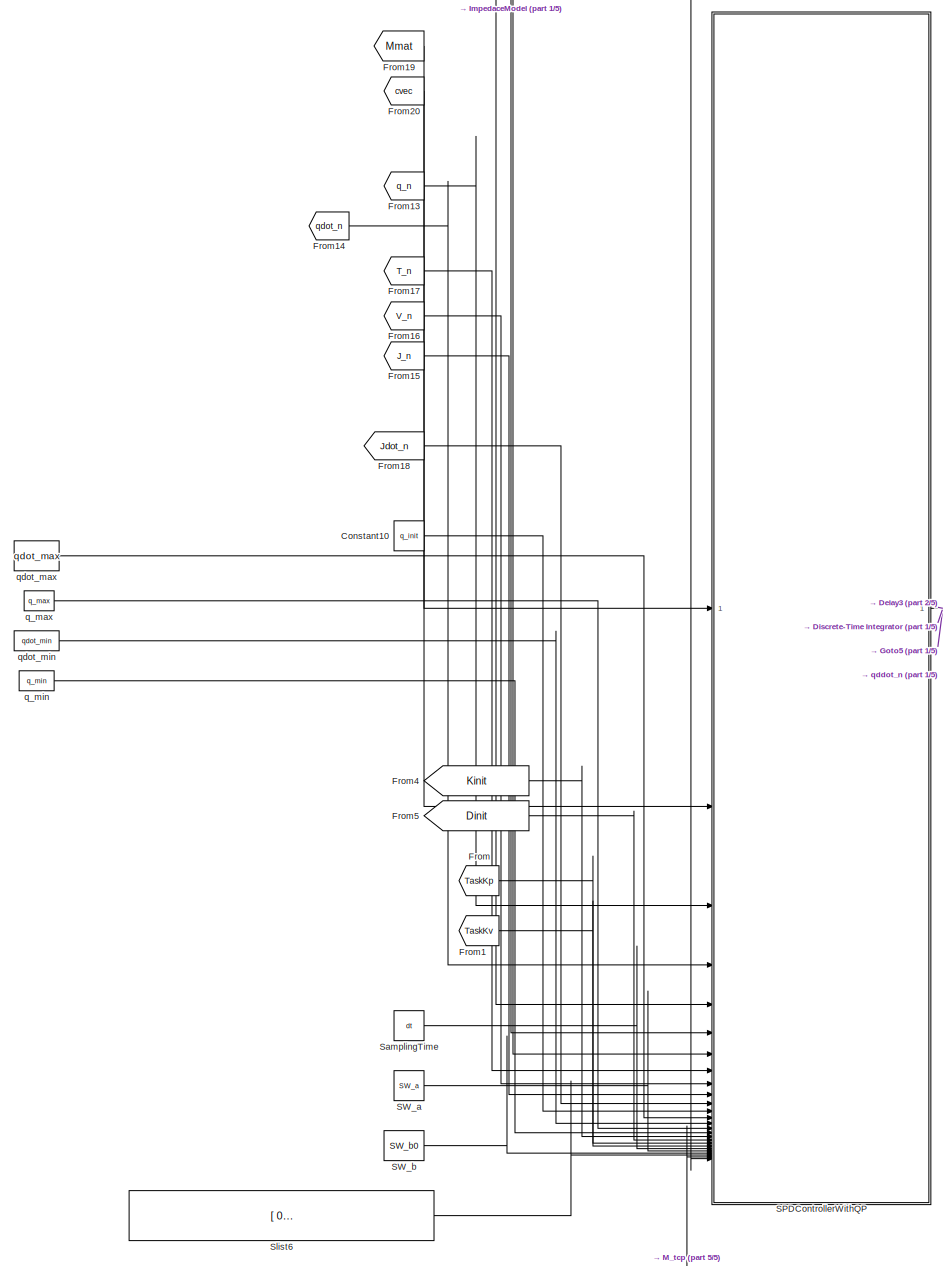
[diagram: SPDController - part 4/5, bottom center region]
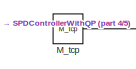
[diagram: SPDController - part 5/5, bottom center region]
BLOCK [SubSystem] SPDController
  Commented = on
BLOCK [BusSelector] SPDController/Bus Selector
  OutputSignals = signal1,signal2,signal3,signal4,signal5,signal6,signal7,signal8,signal9,signal10
BLOCK [Constant] SPDController/Constant1
  Value = q_init
  VectorParams1D = off
BLOCK [Constant] SPDController/Constant10
  Value = q_init
  VectorParams1D = off
BLOCK [Constant] SPDController/Constant3
  Value = Blist_tcp
BLOCK [Constant] SPDController/Constant4
  Value = M_tcp
BLOCK [Delay] SPDController/Delay
  DelayLength = 1
  InputPortMap = u0
  NameLocation = top
BLOCK [Delay] SPDController/Delay3
  DelayLength = 1
  InputPortMap = u0
BLOCK [DiscreteIntegrator] SPDController/Discrete-Time Integrator
  ICPrevOutput = DiscIntNeverNeededParam
  ICPrevScaledInput = DiscIntNeverNeededParam
  InitialConditionSetting = Auto
  LimitOutput = on
  LowerSaturationLimit = qdot_min*1
  SampleTime = -1
  UpperSaturationLimit = qdot_max*1
BLOCK [DiscreteIntegrator] SPDController/Discrete-Time Integrator1
  ICPrevOutput = DiscIntNeverNeededParam
  ICPrevScaledInput = DiscIntNeverNeededParam
  InitialConditionSetting = Auto
  InitialConditionSource = external
  LimitOutput = on
  LowerSaturationLimit = q_min
  SampleTime = -1
  UpperSaturationLimit = q_max
BLOCK [Inport] SPDController/Fext
  Port = 4
BLOCK [SubSystem] SPDController/ForwardKinematics(510)
  ErrorFcn = Stateflow.Translate.translate
  PermitHierarchicalResolution = ExplicitOnly
  SFBlockType = MATLAB Function
  TreatAsAtomicUnit = on
BLOCK [Demux] SPDController/ForwardKinematics(510)/ Demux 
  Outputs = 1
BLOCK [S-Function] SPDController/ForwardKinematics(510)/ SFunction 
  EnableBusSupport = off
  FunctionName = sf_sfun
  PortCounts = [4 6]
  SFcnIsStateOwnerBlock = off
  SFunctionDeploymentMode = off
  Tag = Stateflow S-Function 25
BLOCK [Terminator] SPDController/ForwardKinematics(510)/ Terminator 
BLOCK [Inport] SPDController/ForwardKinematics(510)/Blist
  Port = 4
BLOCK [Outport] SPDController/ForwardKinematics(510)/J
  Port = 4
BLOCK [Outport] SPDController/ForwardKinematics(510)/Jdot
  Port = 5
BLOCK [Inport] SPDController/ForwardKinematics(510)/M
  Port = 3
BLOCK [Outport] SPDController/ForwardKinematics(510)/T
BLOCK [Outport] SPDController/ForwardKinematics(510)/V
  Port = 2
BLOCK [Outport] SPDController/ForwardKinematics(510)/Vdot
  Port = 3
BLOCK [Inport] SPDController/ForwardKinematics(510)/q
BLOCK [Inport] SPDController/ForwardKinematics(510)/qdot
  Port = 2
BLOCK [From] SPDController/From
  GotoTag = TaskKp
BLOCK [From] SPDController/From1
  GotoTag = TaskKv
BLOCK [From] SPDController/From10
  GotoTag = qdot_n
BLOCK [From] SPDController/From11
  GotoTag = Dvec
BLOCK [From] SPDController/From12
  GotoTag = Kvec
BLOCK [From] SPDController/From13
  GotoTag = q_n
BLOCK [From] SPDController/From14
  GotoTag = qdot_n
BLOCK [From] SPDController/From15
  GotoTag = J_n
BLOCK [From] SPDController/From16
  GotoTag = V_n
BLOCK [From] SPDController/From17
  GotoTag = T_n
BLOCK [From] SPDController/From18
  GotoTag = Jdot_n
BLOCK [From] SPDController/From19
  GotoTag = Mmat
BLOCK [From] SPDController/From2
  GotoTag = q_n
BLOCK [From] SPDController/From20
  GotoTag = cvec
BLOCK [From] SPDController/From21
  GotoTag = upper_bound
BLOCK [From] SPDController/From22
  GotoTag = lower_bound
BLOCK [From] SPDController/From3
  GotoTag = qdot_n
BLOCK [From] SPDController/From4
  GotoTag = Kinit
BLOCK [From] SPDController/From5
  GotoTag = Dinit
BLOCK [From] SPDController/From6
  GotoTag = Fdes
BLOCK [From] SPDController/From7
  GotoTag = q_n
BLOCK [From] SPDController/From8
  GotoTag = q_n
BLOCK [From] SPDController/From9
  GotoTag = Avec
BLOCK [Goto] SPDController/Goto
  GotoTag = q_n
BLOCK [Goto] SPDController/Goto1
  GotoTag = qdot_n
BLOCK [Goto] SPDController/Goto10
  GotoTag = TaskKv
BLOCK [Goto] SPDController/Goto11
  GotoTag = Fdes
BLOCK [Goto] SPDController/Goto12
  GotoTag = Avec
BLOCK [Goto] SPDController/Goto13
  GotoTag = Dvec
BLOCK [Goto] SPDController/Goto14
  GotoTag = Kvec
BLOCK [Goto] SPDController/Goto15
  GotoTag = upper_bound
BLOCK [Goto] SPDController/Goto16
  GotoTag = lower_bound
BLOCK [Goto] SPDController/Goto17
  GotoTag = Kinit
BLOCK [Goto] SPDController/Goto18
  GotoTag = Dinit
BLOCK [Goto] SPDController/Goto2
  GotoTag = T_n
BLOCK [Goto] SPDController/Goto3
  GotoTag = V_n
BLOCK [Goto] SPDController/Goto4
  GotoTag = J_n
BLOCK [Goto] SPDController/Goto5
  GotoTag = qddot_n
BLOCK [Goto] SPDController/Goto6
  GotoTag = Jdot_n
BLOCK [Goto] SPDController/Goto7
  GotoTag = Mmat
BLOCK [Goto] SPDController/Goto8
  GotoTag = cvec
BLOCK [Goto] SPDController/Goto9
  GotoTag = TaskKp
BLOCK [SubSystem] SPDController/ImpedaceModel
  ErrorFcn = Stateflow.Translate.translate
  PermitHierarchicalResolution = ExplicitOnly
  SFBlockType = MATLAB Function
  TreatAsAtomicUnit = on
BLOCK [Demux] SPDController/ImpedaceModel/ Demux 
  Outputs = 1
BLOCK [S-Function] SPDController/ImpedaceModel/ SFunction 
  EnableBusSupport = off
  FunctionName = sf_sfun
  PortCounts = [12 5]
  SFcnIsStateOwnerBlock = off
  SFunctionDeploymentMode = off
  Tag = Stateflow S-Function 26
BLOCK [Terminator] SPDController/ImpedaceModel/ Terminator 
BLOCK [Inport] SPDController/ImpedaceModel/Avec
  Port = 8
BLOCK [Inport] SPDController/ImpedaceModel/Dvec
  Port = 9
BLOCK [Inport] SPDController/ImpedaceModel/Fdes
  Port = 5
BLOCK [Inport] SPDController/ImpedaceModel/Fext
  Port = 6
BLOCK [Inport] SPDController/ImpedaceModel/Kvec
  Port = 10
BLOCK [Inport] SPDController/ImpedaceModel/T_des
  Port = 2
BLOCK [Outport] SPDController/ImpedaceModel/T_des_prime
BLOCK [Inport] SPDController/ImpedaceModel/V_des
  Port = 3
BLOCK [Outport] SPDController/ImpedaceModel/V_des_prime
  Port = 2
BLOCK [Inport] SPDController/ImpedaceModel/Vdot_des
  Port = 4
BLOCK [Outport] SPDController/ImpedaceModel/Vdot_des_prime
  Port = 3
BLOCK [Inport] SPDController/ImpedaceModel/dt
  Port = 7
BLOCK [Inport] SPDController/ImpedaceModel/lambda_max
  Port = 11
BLOCK [Inport] SPDController/ImpedaceModel/lambda_min
  Port = 12
BLOCK [Outport] SPDController/ImpedaceModel/x_state
  Port = 4
BLOCK [Inport] SPDController/ImpedaceModel/x_state 
BLOCK [Reference] SPDController/Joint Space Mass Matrix  REF=robotmaniplib/Joint Space Mass Matrix
  SourceBlock = robotmaniplib/Joint Space Mass Matrix
  SourceType = Joint Space Mass Matrix
BLOCK [Constant] SPDController/M_tcp
  Value = M_tcp
BLOCK [SubSystem] SPDController/SPDControllerWithQP
  ErrorFcn = Stateflow.Translate.translate
  PermitHierarchicalResolution = ExplicitOnly
  SFBlockType = MATLAB Function
  TreatAsAtomicUnit = on
BLOCK [Demux] SPDController/SPDControllerWithQP/ Demux 
  Outputs = 1
BLOCK [S-Function] SPDController/SPDControllerWithQP/ SFunction 
  EnableBusSupport = off
  FunctionName = sf_sfun
  PortCounts = [26 2]
  SFcnIsStateOwnerBlock = off
  SFunctionDeploymentMode = off
  Tag = Stateflow S-Function 27
BLOCK [Terminator] SPDController/SPDControllerWithQP/ Terminator 
BLOCK [Inport] SPDController/SPDControllerWithQP/Dinit
  Port = 18
BLOCK [Inport] SPDController/SPDControllerWithQP/J
  Port = 10
BLOCK [Inport] SPDController/SPDControllerWithQP/Jdot
  Port = 11
BLOCK [Inport] SPDController/SPDControllerWithQP/Kinit
  Port = 17
BLOCK [Inport] SPDController/SPDControllerWithQP/M
BLOCK [Inport] SPDController/SPDControllerWithQP/M_tcp
  Port = 25
BLOCK [Inport] SPDController/SPDControllerWithQP/Slist6
  Port = 24
BLOCK [Inport] SPDController/SPDControllerWithQP/T
  Port = 8
BLOCK [Inport] SPDController/SPDControllerWithQP/TaskKp
  Port = 19
BLOCK [Inport] SPDController/SPDControllerWithQP/TaskKv
  Port = 20
BLOCK [Inport] SPDController/SPDControllerWithQP/Tdes
  Port = 5
BLOCK [Inport] SPDController/SPDControllerWithQP/V
  Port = 9
BLOCK [Inport] SPDController/SPDControllerWithQP/Vdes
  Port = 6
BLOCK [Inport] SPDController/SPDControllerWithQP/Vdotdes
  Port = 7
BLOCK [Inport] SPDController/SPDControllerWithQP/a
  Port = 22
BLOCK [Inport] SPDController/SPDControllerWithQP/b0
  Port = 23
BLOCK [Inport] SPDController/SPDControllerWithQP/cvec
  Port = 2
BLOCK [Inport] SPDController/SPDControllerWithQP/dt
  Port = 21
BLOCK [Inport] SPDController/SPDControllerWithQP/q
  Port = 3
BLOCK [Inport] SPDController/SPDControllerWithQP/q_max
  Port = 15
BLOCK [Inport] SPDController/SPDControllerWithQP/q_min
  Port = 16
BLOCK [Outport] SPDController/SPDControllerWithQP/qddot
BLOCK [Inport] SPDController/SPDControllerWithQP/qddot_prev
  Port = 26
BLOCK [Inport] SPDController/SPDControllerWithQP/qdot
  Port = 4
BLOCK [Inport] SPDController/SPDControllerWithQP/qdot_max
  Port = 13
BLOCK [Inport] SPDController/SPDControllerWithQP/qdot_min
  Port = 14
BLOCK [Inport] SPDController/SPDControllerWithQP/qinit
  Port = 12
BLOCK [Constant] SPDController/SW_a
  Value = SW_a
BLOCK [Constant] SPDController/SW_b
  Value = SW_b0
BLOCK [Constant] SPDController/SamplingTime
  Value = dt
BLOCK [Constant] SPDController/Slist6
  Value = [         0   -1.6580   -1.6580         0   -1.6030         0\n         0         0         0   -1.6030         0   -1.6030\n         0    0.5000    1.8000         0    3.0750         0\n         0         0         0   -1.0000         0   -1.0000\n         0    1.0000    1.0000         0    1.0000         0\n   -1.0000         0         0         0         0         0]
BLOCK [Inport] SPDController/T_des
BLOCK [Outport] SPDController/T_des_prime
  Port = 4
BLOCK [Inport] SPDController/V_des
  Port = 2
BLOCK [Outport] SPDController/V_des_prime
  Port = 5
BLOCK [Inport] SPDController/Vdot_des
  Port = 3
BLOCK [Outport] SPDController/Vdot_des_prime
  Port = 6
BLOCK [Reference] SPDController/Velocity Product Torque  REF=robotmaniplib/Velocity Product Torque
  SourceBlock = robotmaniplib/Velocity Product Torque
  SourceType = Velocity Product Torque
BLOCK [Constant] SPDController/dt
  Value = dt
BLOCK [Constant] SPDController/q_max
  Value = q_max
  VectorParams1D = off
BLOCK [Constant] SPDController/q_min
  Value = q_min
  VectorParams1D = off
BLOCK [Outport] SPDController/q_n
BLOCK [Outport] SPDController/qddot_n
  Port = 3
BLOCK [Constant] SPDController/qdot_max
  Value = qdot_max
  VectorParams1D = off
BLOCK [Constant] SPDController/qdot_min
  Value = qdot_min
  VectorParams1D = off
BLOCK [Outport] SPDController/qdot_n
  Port = 2
BLOCK [Inport] SPDController/signal
  Port = 5
BLOCK [SubSystem] Saturation
  Commented = on
BLOCK [Demux] Saturation/Demux
  Outputs = 12
BLOCK [Inport] Saturation/Input
BLOCK [Mux] Saturation/Mux
  DisplayOption = bar
  Inputs = 12
BLOCK [Outport] Saturation/Out1
BLOCK [Saturate] Saturation/Saturation
  LowerLimit = -431.97
  UpperLimit = 431.97
BLOCK [Saturate] Saturation/Saturation1
  LowerLimit = -197.23
  UpperLimit = 197.23
BLOCK [Saturate] Saturation/Saturation10
  LowerLimit = -79.79
  UpperLimit = 79.79
BLOCK [Saturate] Saturation/Saturation11
  LowerLimit = -79.79
  UpperLimit = 79.79
BLOCK [Saturate] Saturation/Saturation2
  LowerLimit = -79.79
  UpperLimit = 79.79
BLOCK [Saturate] Saturation/Saturation3
  LowerLimit = -431.97
  UpperLimit = 431.97
BLOCK [Saturate] Saturation/Saturation4
  LowerLimit = -79.79
  UpperLimit = 79.79
BLOCK [Saturate] Saturation/Saturation5
  LowerLimit = -79.79
  UpperLimit = 79.79
BLOCK [Saturate] Saturation/Saturation6
  LowerLimit = -431.97
  UpperLimit = 431.97
BLOCK [Saturate] Saturation/Saturation7
  LowerLimit = -197.23
  UpperLimit = 197.23
BLOCK [Saturate] Saturation/Saturation8
  LowerLimit = -79.79
  UpperLimit = 79.79
BLOCK [Saturate] Saturation/Saturation9
  LowerLimit = -431.97
  UpperLimit = 431.97
BLOCK [SubSystem] Subsystem
  Commented = on
BLOCK [SubSystem] Subsystem/GetT,V,Vdot
  ErrorFcn = Stateflow.Translate.translate
  PermitHierarchicalResolution = ExplicitOnly
  SFBlockType = MATLAB Function
  TreatAsAtomicUnit = on
BLOCK [Demux] Subsystem/GetT,V,Vdot/ Demux 
  Outputs = 1
BLOCK [S-Function] Subsystem/GetT,V,Vdot/ SFunction 
  EnableBusSupport = on
  FunctionName = sf_sfun
  PortCounts = [6 4]
  SFcnIsStateOwnerBlock = off
  SFunctionDeploymentMode = off
  Tag = Stateflow S-Function 13
BLOCK [Terminator] Subsystem/GetT,V,Vdot/ Terminator 
BLOCK [Inport] Subsystem/GetT,V,Vdot/R_t
  Port = 4
BLOCK [Outport] Subsystem/GetT,V,Vdot/T_t
BLOCK [Outport] Subsystem/GetT,V,Vdot/V_t
  Port = 2
BLOCK [Outport] Subsystem/GetT,V,Vdot/Vdot_t
  Port = 3
BLOCK [Inport] Subsystem/GetT,V,Vdot/omega_t
  Port = 5
BLOCK [Inport] Subsystem/GetT,V,Vdot/omegadot_t
  Port = 6
BLOCK [Inport] Subsystem/GetT,V,Vdot/p_t
BLOCK [Inport] Subsystem/GetT,V,Vdot/pddot_t
  Port = 3
BLOCK [Inport] Subsystem/GetT,V,Vdot/pdot_t
  Port = 2
BLOCK [SubSystem] Subsystem/MATLAB Function
  ErrorFcn = Stateflow.Translate.translate
  PermitHierarchicalResolution = ExplicitOnly
  SFBlockType = MATLAB Function
  TreatAsAtomicUnit = on
BLOCK [Demux] Subsystem/MATLAB Function/ Demux 
  Outputs = 1
BLOCK [S-Function] Subsystem/MATLAB Function/ SFunction 
  EnableBusSupport = on
  FunctionName = sf_sfun
  PortCounts = [2 3]
  SFcnIsStateOwnerBlock = off
  SFunctionDeploymentMode = off
  Tag = Stateflow S-Function 14
BLOCK [Terminator] Subsystem/MATLAB Function/ Terminator 
BLOCK [Inport] Subsystem/MATLAB Function/Rend
  Port = 2
BLOCK [Inport] Subsystem/MATLAB Function/Rstart
BLOCK [Outport] Subsystem/MATLAB Function/xi_end
  Port = 2
BLOCK [Outport] Subsystem/MATLAB Function/xi_start
BLOCK [SubSystem] Subsystem/MATLAB Function1
  ErrorFcn = Stateflow.Translate.translate
  PermitHierarchicalResolution = ExplicitOnly
  SFBlockType = MATLAB Function
  TreatAsAtomicUnit = on
BLOCK [Demux] Subsystem/MATLAB Function1/ Demux 
  Outputs = 1
BLOCK [S-Function] Subsystem/MATLAB Function1/ SFunction 
  EnableBusSupport = on
  FunctionName = sf_sfun
  PortCounts = [4 4]
  SFcnIsStateOwnerBlock = off
  SFunctionDeploymentMode = off
  Tag = Stateflow S-Function 15
BLOCK [Terminator] Subsystem/MATLAB Function1/ Terminator 
BLOCK [Inport] Subsystem/MATLAB Function1/R_start
BLOCK [Outport] Subsystem/MATLAB Function1/R_t
BLOCK [Outport] Subsystem/MATLAB Function1/omega_t
  Port = 2
BLOCK [Outport] Subsystem/MATLAB Function1/omegadot_t
  Port = 3
BLOCK [Inport] Subsystem/MATLAB Function1/xi_t
  Port = 2
BLOCK [Inport] Subsystem/MATLAB Function1/xiddot_t
  Port = 4
BLOCK [Inport] Subsystem/MATLAB Function1/xidot_t
  Port = 3
BLOCK [Concatenate] Subsystem/Matrix Concatenate
  ConcatenateDimension = 2
  Mode = Multidimensional array
BLOCK [Concatenate] Subsystem/Matrix Concatenate1
  ConcatenateDimension = 2
  Mode = Multidimensional array
BLOCK [Inport] Subsystem/T_end
  Port = 2
BLOCK [Inport] Subsystem/T_start
BLOCK [Outport] Subsystem/T_t
BLOCK [Inport] Subsystem/Tf
  Port = 3
BLOCK [SubSystem] Subsystem/TransToRp
  ErrorFcn = Stateflow.Translate.translate
  PermitHierarchicalResolution = ExplicitOnly
  SFBlockType = MATLAB Function
  TreatAsAtomicUnit = on
BLOCK [Demux] Subsystem/TransToRp/ Demux 
  Outputs = 1
BLOCK [S-Function] Subsystem/TransToRp/ SFunction 
  EnableBusSupport = on
  FunctionName = sf_sfun
  PortCounts = [1 3]
  SFcnIsStateOwnerBlock = off
  SFunctionDeploymentMode = off
  Tag = Stateflow S-Function 16
BLOCK [Terminator] Subsystem/TransToRp/ Terminator 
BLOCK [Outport] Subsystem/TransToRp/R
BLOCK [Inport] Subsystem/TransToRp/T
BLOCK [Outport] Subsystem/TransToRp/p
  Port = 2
BLOCK [SubSystem] Subsystem/TransToRp1
  ErrorFcn = Stateflow.Translate.translate
  PermitHierarchicalResolution = ExplicitOnly
  SFBlockType = MATLAB Function
  TreatAsAtomicUnit = on
BLOCK [Demux] Subsystem/TransToRp1/ Demux 
  Outputs = 1
BLOCK [S-Function] Subsystem/TransToRp1/ SFunction 
  EnableBusSupport = on
  FunctionName = sf_sfun
  PortCounts = [1 3]
  SFcnIsStateOwnerBlock = off
  SFunctionDeploymentMode = off
  Tag = Stateflow S-Function 17
BLOCK [Terminator] Subsystem/TransToRp1/ Terminator 
BLOCK [Outport] Subsystem/TransToRp1/R
BLOCK [Inport] Subsystem/TransToRp1/T
BLOCK [Outport] Subsystem/TransToRp1/p
  Port = 2
BLOCK [Reference] Subsystem/Trapezoidal Velocity Profile Trajectory  REF=robotcorelib/Trapezoidal Velocity Profile Trajectory
  LibrarySourceBlock = robotutilslib/Trapezoidal Velocity Profile Trajectory
  SourceBlock = robotcorelib/Trapezoidal Velocity Profile Trajectory
  SourceType = robotics.slcore.internal.block.TrapVelTrajSys
BLOCK [Reference] Subsystem/Trapezoidal Velocity Profile Trajectory1  REF=robotcorelib/Trapezoidal Velocity Profile Trajectory
  LibrarySourceBlock = robotutilslib/Trapezoidal Velocity Profile Trajectory
  SourceBlock = robotcorelib/Trapezoidal Velocity Profile Trajectory
  SourceType = robotics.slcore.internal.block.TrapVelTrajSys
BLOCK [Outport] Subsystem/V_t
  Port = 2
BLOCK [Outport] Subsystem/Vdot_t
  Port = 3
BLOCK [Outport] Subsystem/p_t
  Port = 4
BLOCK [Outport] Subsystem/pddot_t
  Port = 6
BLOCK [Outport] Subsystem/pdot_t
  Port = 5
BLOCK [Inport] Subsystem/time
  Port = 4
BLOCK [Outport] Subsystem/xi_t
  Port = 7
BLOCK [Outport] Subsystem/xiddot_t
  Port = 9
BLOCK [Outport] Subsystem/xidot_t
  Port = 8
BLOCK [SubSystem] Subsystem1
  Commented = on
BLOCK [SubSystem] Subsystem1/GetT,V,Vdot
  ErrorFcn = Stateflow.Translate.translate
  PermitHierarchicalResolution = ExplicitOnly
  SFBlockType = MATLAB Function
  TreatAsAtomicUnit = on
BLOCK [Demux] Subsystem1/GetT,V,Vdot/ Demux 
  Outputs = 1
BLOCK [S-Function] Subsystem1/GetT,V,Vdot/ SFunction 
  EnableBusSupport = on
  FunctionName = sf_sfun
  PortCounts = [6 4]
  SFcnIsStateOwnerBlock = off
  SFunctionDeploymentMode = off
  Tag = Stateflow S-Function 20
BLOCK [Terminator] Subsystem1/GetT,V,Vdot/ Terminator 
BLOCK [Inport] Subsystem1/GetT,V,Vdot/R_t
  Port = 4
BLOCK [Outport] Subsystem1/GetT,V,Vdot/T_t
BLOCK [Outport] Subsystem1/GetT,V,Vdot/V_t
  Port = 2
BLOCK [Outport] Subsystem1/GetT,V,Vdot/Vdot_t
  Port = 3
BLOCK [Inport] Subsystem1/GetT,V,Vdot/omega_t
  Port = 5
BLOCK [Inport] Subsystem1/GetT,V,Vdot/omegadot_t
  Port = 6
BLOCK [Inport] Subsystem1/GetT,V,Vdot/p_t
BLOCK [Inport] Subsystem1/GetT,V,Vdot/pddot_t
  Port = 3
BLOCK [Inport] Subsystem1/GetT,V,Vdot/pdot_t
  Port = 2
BLOCK [SubSystem] Subsystem1/MATLAB Function
  ErrorFcn = Stateflow.Translate.translate
  PermitHierarchicalResolution = ExplicitOnly
  SFBlockType = MATLAB Function
  TreatAsAtomicUnit = on
BLOCK [Demux] Subsystem1/MATLAB Function/ Demux 
  Outputs = 1
BLOCK [S-Function] Subsystem1/MATLAB Function/ SFunction 
  EnableBusSupport = on
  FunctionName = sf_sfun
  PortCounts = [2 3]
  SFcnIsStateOwnerBlock = off
  SFunctionDeploymentMode = off
  Tag = Stateflow S-Function 21
BLOCK [Terminator] Subsystem1/MATLAB Function/ Terminator 
BLOCK [Inport] Subsystem1/MATLAB Function/Rend
  Port = 2
BLOCK [Inport] Subsystem1/MATLAB Function/Rstart
BLOCK [Outport] Subsystem1/MATLAB Function/xi_end
  Port = 2
BLOCK [Outport] Subsystem1/MATLAB Function/xi_start
BLOCK [SubSystem] Subsystem1/MATLAB Function1
  ErrorFcn = Stateflow.Translate.translate
  PermitHierarchicalResolution = ExplicitOnly
  SFBlockType = MATLAB Function
  TreatAsAtomicUnit = on
BLOCK [Demux] Subsystem1/MATLAB Function1/ Demux 
  Outputs = 1
BLOCK [S-Function] Subsystem1/MATLAB Function1/ SFunction 
  EnableBusSupport = on
  FunctionName = sf_sfun
  PortCounts = [4 4]
  SFcnIsStateOwnerBlock = off
  SFunctionDeploymentMode = off
  Tag = Stateflow S-Function 22
BLOCK [Terminator] Subsystem1/MATLAB Function1/ Terminator 
BLOCK [Inport] Subsystem1/MATLAB Function1/R_start
BLOCK [Outport] Subsystem1/MATLAB Function1/R_t
BLOCK [Outport] Subsystem1/MATLAB Function1/omega_t
  Port = 2
BLOCK [Outport] Subsystem1/MATLAB Function1/omegadot_t
  Port = 3
BLOCK [Inport] Subsystem1/MATLAB Function1/xi_t
  Port = 2
BLOCK [Inport] Subsystem1/MATLAB Function1/xiddot_t
  Port = 4
BLOCK [Inport] Subsystem1/MATLAB Function1/xidot_t
  Port = 3
BLOCK [Concatenate] Subsystem1/Matrix Concatenate
  ConcatenateDimension = 2
  Mode = Multidimensional array
BLOCK [Concatenate] Subsystem1/Matrix Concatenate1
  ConcatenateDimension = 2
  Mode = Multidimensional array
BLOCK [Inport] Subsystem1/T_end
  Port = 2
BLOCK [Inport] Subsystem1/T_start
BLOCK [Outport] Subsystem1/T_t
BLOCK [Inport] Subsystem1/Tf
  Port = 3
BLOCK [SubSystem] Subsystem1/TransToRp
  ErrorFcn = Stateflow.Translate.translate
  PermitHierarchicalResolution = ExplicitOnly
  SFBlockType = MATLAB Function
  TreatAsAtomicUnit = on
BLOCK [Demux] Subsystem1/TransToRp/ Demux 
  Outputs = 1
BLOCK [S-Function] Subsystem1/TransToRp/ SFunction 
  EnableBusSupport = on
  FunctionName = sf_sfun
  PortCounts = [1 3]
  SFcnIsStateOwnerBlock = off
  SFunctionDeploymentMode = off
  Tag = Stateflow S-Function 23
BLOCK [Terminator] Subsystem1/TransToRp/ Terminator 
BLOCK [Outport] Subsystem1/TransToRp/R
BLOCK [Inport] Subsystem1/TransToRp/T
BLOCK [Outport] Subsystem1/TransToRp/p
  Port = 2
BLOCK [SubSystem] Subsystem1/TransToRp1
  ErrorFcn = Stateflow.Translate.translate
  PermitHierarchicalResolution = ExplicitOnly
  SFBlockType = MATLAB Function
  TreatAsAtomicUnit = on
BLOCK [Demux] Subsystem1/TransToRp1/ Demux 
  Outputs = 1
BLOCK [S-Function] Subsystem1/TransToRp1/ SFunction 
  EnableBusSupport = on
  FunctionName = sf_sfun
  PortCounts = [1 3]
  SFcnIsStateOwnerBlock = off
  SFunctionDeploymentMode = off
  Tag = Stateflow S-Function 24
BLOCK [Terminator] Subsystem1/TransToRp1/ Terminator 
BLOCK [Outport] Subsystem1/TransToRp1/R
BLOCK [Inport] Subsystem1/TransToRp1/T
BLOCK [Outport] Subsystem1/TransToRp1/p
  Port = 2
BLOCK [Reference] Subsystem1/Trapezoidal Velocity Profile Trajectory  REF=robotcorelib/Trapezoidal Velocity Profile Trajectory
  LibrarySourceBlock = robotutilslib/Trapezoidal Velocity Profile Trajectory
  SourceBlock = robotcorelib/Trapezoidal Velocity Profile Trajectory
  SourceType = robotics.slcore.internal.block.TrapVelTrajSys
BLOCK [Reference] Subsystem1/Trapezoidal Velocity Profile Trajectory1  REF=robotcorelib/Trapezoidal Velocity Profile Trajectory
  LibrarySourceBlock = robotutilslib/Trapezoidal Velocity Profile Trajectory
  SourceBlock = robotcorelib/Trapezoidal Velocity Profile Trajectory
  SourceType = robotics.slcore.internal.block.TrapVelTrajSys
BLOCK [Outport] Subsystem1/V_t
  Port = 2
BLOCK [Outport] Subsystem1/Vdot_t
  Port = 3
BLOCK [Outport] Subsystem1/p_t
  Port = 4
BLOCK [Outport] Subsystem1/pddot_t
  Port = 6
BLOCK [Outport] Subsystem1/pdot_t
  Port = 5
BLOCK [Inport] Subsystem1/time
  Port = 4
BLOCK [Outport] Subsystem1/xi_t
  Port = 7
BLOCK [Outport] Subsystem1/xiddot_t
  Port = 9
BLOCK [Outport] Subsystem1/xidot_t
  Port = 8
BLOCK [SubSystem] Subsystem2
BLOCK [Constant] Subsystem2/Constant20
  Value = pi
BLOCK [Demux] Subsystem2/Demux1
  Outputs = [1,11]
BLOCK [Inport] Subsystem2/In1
BLOCK [Mux] Subsystem2/Mux1
  DisplayOption = bar
  Inputs = [1,11]
BLOCK [Outport] Subsystem2/Out1
BLOCK [Sum] Subsystem2/Sum2
  Inputs = |++
BLOCK [SubSystem] Subsystem3
BLOCK [Constant] Subsystem3/Constant19
  Value = pi
BLOCK [Demux] Subsystem3/Demux
  Outputs = [1,11]
BLOCK [Inport] Subsystem3/In1
BLOCK [Mux] Subsystem3/Mux
  DisplayOption = bar
  Inputs = [1,11]
BLOCK [Outport] Subsystem3/Out1
BLOCK [Sum] Subsystem3/Sum1
  Inputs = |++
BLOCK [Sum] Sum
  Inputs = |+-
BLOCK [Goto] T
  Commented = on
  GotoTag = T_des_l
BLOCK [Goto] T1
  Commented = on
  GotoTag = V_des_l
BLOCK [Goto] T2
  Commented = on
  GotoTag = Vdot_des_l
BLOCK [Goto] T3
  Commented = on
  GotoTag = T_des_r
BLOCK [Goto] T4
  Commented = on
  GotoTag = V_des_r
BLOCK [Goto] T5
  Commented = on
  GotoTag = Vdot_des_r
BLOCK [Outport] T_l
  Port = 5
BLOCK [Outport] T_r
  Port = 4
BLOCK [Outport] T_rl
  Port = 3
BLOCK [Record] XY Graph
  CompatibilityTag = XY
  FileSettingsInternal = {"entries":[{"content":{"excelSettings":{"content":{},"type":"Streamout.ExcelSettings"}},"type":"Streamout.FileSettingStorage","uuid":""}],"packageUris":["http:\/\/schema.mathworks.com\/mf0\/streamout_blocks\/R2020a"],"version":"1.0"}
  Layout = [1 1]
  SignalsInternal = {"entries":[{"content":{"signals":[{"content":{"blockPath":[],"dimensions":[1],"domain":"","lineColor":"#a2142f","plots":[ 1 ],"port":1,"sid":[""],"signalID":1,"signalName":"Ramp1"},"type":"RecordBlkView.Signal","uuid":""},{"content":{"blockPath":[],"dimensions":[12],"domain":"","hasChildren":true,"lineColor":"#77ac30","lineWidth":2,"port":2,"sid":[""],"signalID":2,"signalName":"Sum"},"type":"Reco...<+388ch>
  VisualizationBindings = {"xyplotplugin":{"info":[{"series":[{"bindingParametersList":[{"parameter":"X-Axis","signalID":1,"signalName":"Ramp1"}],"seriesID":0},{"bindingParametersList":[{"parameter":"X-Axis","signalID":1,"signalName":"Ramp1"}],"seriesID":1},{"bindingParametersList":[{"parameter":"X-Axis","signalID":1,"signalName":"Ramp1"}],"seriesID":2},{"bindingParametersList":[{"parameter":"X-Axis","signalID":1,"signalNa...<+733ch>
BLOCK [Outport] q
BLOCK [Outport] qdot
  Port = 2
ANNOTATION DualArmTaskSpaceController: SPDControllerWithQP_Left
ANNOTATION DualArmTaskSpaceController: SPDControllerWithQP_Right
ANNOTATION DualArmTaskSpaceController: Subsystem1
LINE Constant10:1 -> Get Transform2:1
LINE Constant11:1 -> Matrix Multiply1:2
LINE Constant12:1 -> Subsystem1:3
LINE Constant13:1 -> DualArmTaskSpaceController:24
LINE Constant14:1 -> DualArmTaskSpaceController:25
LINE Constant15:1 -> DualArmTaskSpaceController:26
LINE Constant16:1 -> Gain1:1
LINE Constant17:1 -> DualArmTaskSpaceController:28
LINE Constant18:1 -> DualArmTaskSpaceController:29
NET Constant1:1 -> Gain:1, Polynomial Trajectory:2
LINE Constant2:1 -> HInfController:8
LINE Constant3:1 -> Get Transform1:1
LINE Constant4:1 -> Matrix Multiply:2
LINE Constant5:1 -> Subsystem:3
LINE Constant6:1 -> DualArmTaskSpaceController:20
LINE Constant7:1 -> DualArmTaskSpaceController:21
LINE Constant8:1 -> DualArmTaskSpaceController:22
LINE Constant9:1 -> DualArmTaskSpaceController:23
LINE Constant:1 -> Polynomial Trajectory:3
LINE DualArm/Demux:1 -> DualArm/Left:1
LINE DualArm/Demux:2 -> DualArm/Right:1
LINE DualArm/Fext_l:1 -> DualArm/Left:2
LINE DualArm/Fext_r:1 -> DualArm/Right:2
LINE DualArm/Left/Constant:1 -> DualArm/Left/Sum:2
LINE DualArm/Left/Demux1:1 -> DualArm/Left/Simulink-PS Converter6:1
LINE DualArm/Left/Demux1:2 -> DualArm/Left/Simulink-PS Converter7:1
LINE DualArm/Left/Demux:1 -> DualArm/Left/Simulink-PS Converter:1
LINE DualArm/Left/Demux:2 -> DualArm/Left/Simulink-PS Converter1:1
LINE DualArm/Left/Demux:3 -> DualArm/Left/Simulink-PS Converter2:1
LINE DualArm/Left/Demux:4 -> DualArm/Left/Simulink-PS Converter3:1
LINE DualArm/Left/Demux:5 -> DualArm/Left/Simulink-PS Converter4:1
LINE DualArm/Left/Demux:6 -> DualArm/Left/Simulink-PS Converter5:1
LINE DualArm/Left/Fext_l:1 -> DualArm/Left/Demux1:1
LINE DualArm/Left/Mux1:1 -> DualArm/Left/qdot:1
LINE DualArm/Left/Mux2:1 -> DualArm/Left/q:1
LINE DualArm/Left/PS-Simulink Converter10:1 -> DualArm/Left/Mux1:5
LINE DualArm/Left/PS-Simulink Converter11:1 -> DualArm/Left/Mux1:6
LINE DualArm/Left/PS-Simulink Converter12:1 -> DualArm/Left/Mux2:6
LINE DualArm/Left/PS-Simulink Converter1:1 -> DualArm/Left/Mux2:5
LINE DualArm/Left/PS-Simulink Converter2:1 -> DualArm/Left/Sum:1
LINE DualArm/Left/PS-Simulink Converter3:1 -> DualArm/Left/Mux2:2
LINE DualArm/Left/PS-Simulink Converter4:1 -> DualArm/Left/Mux2:3
LINE DualArm/Left/PS-Simulink Converter5:1 -> DualArm/Left/Mux2:4
LINE DualArm/Left/PS-Simulink Converter6:1 -> DualArm/Left/Mux1:1
LINE DualArm/Left/PS-Simulink Converter7:1 -> DualArm/Left/Mux1:2
LINE DualArm/Left/PS-Simulink Converter8:1 -> DualArm/Left/Mux1:3
LINE DualArm/Left/PS-Simulink Converter9:1 -> DualArm/Left/Mux1:4
LINE DualArm/Left/Sum:1 -> DualArm/Left/Mux2:1
LINE DualArm/Left/tau:1 -> DualArm/Left/Demux:1
LINE DualArm/Left:1 -> DualArm/Mux:1
LINE DualArm/Left:2 -> DualArm/Mux1:1
NET DualArm/MATLAB Function1:1 -> DualArm/MATLAB Function2:2, DualArm/T_l:1
LINE DualArm/MATLAB Function2:1 -> DualArm/T_rl:1
NET DualArm/MATLAB Function:1 -> DualArm/MATLAB Function2:1, DualArm/T_r:1
LINE DualArm/Mux1:1 -> DualArm/qdot:1
LINE DualArm/Mux:1 -> DualArm/q:1
LINE DualArm/PS-Simulink Converter1:1 -> DualArm/MATLAB Function:2
LINE DualArm/PS-Simulink Converter2:1 -> DualArm/MATLAB Function1:1
LINE DualArm/PS-Simulink Converter3:1 -> DualArm/MATLAB Function1:2
LINE DualArm/PS-Simulink Converter:1 -> DualArm/MATLAB Function:1
LINE DualArm/Right/Demux1:1 -> DualArm/Right/Simulink-PS Converter6:1
LINE DualArm/Right/Demux1:2 -> DualArm/Right/Simulink-PS Converter7:1
LINE DualArm/Right/Demux:1 -> DualArm/Right/Simulink-PS Converter:1
LINE DualArm/Right/Demux:2 -> DualArm/Right/Simulink-PS Converter1:1
LINE DualArm/Right/Demux:3 -> DualArm/Right/Simulink-PS Converter2:1
LINE DualArm/Right/Demux:4 -> DualArm/Right/Simulink-PS Converter3:1
LINE DualArm/Right/Demux:5 -> DualArm/Right/Simulink-PS Converter4:1
LINE DualArm/Right/Demux:6 -> DualArm/Right/Simulink-PS Converter5:1
LINE DualArm/Right/Fext_r:1 -> DualArm/Right/Demux1:1
LINE DualArm/Right/Mux1:1 -> DualArm/Right/qdot:1
LINE DualArm/Right/Mux:1 -> DualArm/Right/q:1
LINE DualArm/Right/PS-Simulink Converter10:1 -> DualArm/Right/Mux1:5
LINE DualArm/Right/PS-Simulink Converter11:1 -> DualArm/Right/Mux1:6
LINE DualArm/Right/PS-Simulink Converter1:1 -> DualArm/Right/Mux:2
LINE DualArm/Right/PS-Simulink Converter2:1 -> DualArm/Right/Mux:3
LINE DualArm/Right/PS-Simulink Converter3:1 -> DualArm/Right/Mux:4
LINE DualArm/Right/PS-Simulink Converter4:1 -> DualArm/Right/Mux:5
LINE DualArm/Right/PS-Simulink Converter5:1 -> DualArm/Right/Mux:6
LINE DualArm/Right/PS-Simulink Converter6:1 -> DualArm/Right/Mux1:1
LINE DualArm/Right/PS-Simulink Converter7:1 -> DualArm/Right/Mux1:2
LINE DualArm/Right/PS-Simulink Converter8:1 -> DualArm/Right/Mux1:3
LINE DualArm/Right/PS-Simulink Converter9:1 -> DualArm/Right/Mux1:4
LINE DualArm/Right/PS-Simulink Converter:1 -> DualArm/Right/Mux:1
LINE DualArm/Right/tau:1 -> DualArm/Right/Demux:1
LINE DualArm/Right:1 -> DualArm/Mux:2
LINE DualArm/Right:2 -> DualArm/Mux1:2
LINE DualArm/tau:1 -> DualArm/Demux:1
NET DualArm:1 -> Display5:1, Goto:1, q:1
NET DualArm:2 -> Goto1:1, qdot:1
LINE DualArm:3 -> Display7:1
LINE DualArm:4 -> Display2:1
LINE DualArm:5 -> Display9:1
NET DualArmLambda:1 -> Display10:1, Kinematics:1
LINE DualArmTaskSpaceController/Demux1:1 -> DualArmTaskSpaceController/Goto25:1
LINE DualArmTaskSpaceController/Demux1:2 -> DualArmTaskSpaceController/Goto26:1
LINE DualArmTaskSpaceController/Demux2:1 -> DualArmTaskSpaceController/Goto27:1
LINE DualArmTaskSpaceController/Demux2:2 -> DualArmTaskSpaceController/Goto28:1
LINE DualArmTaskSpaceController/Demux3:1 -> DualArmTaskSpaceController/Goto29:1
LINE DualArmTaskSpaceController/Demux3:2 -> DualArmTaskSpaceController/Goto30:1
LINE DualArmTaskSpaceController/Demux4:1 -> DualArmTaskSpaceController/Goto31:1
LINE DualArmTaskSpaceController/Demux4:2 -> DualArmTaskSpaceController/Goto32:1
LINE DualArmTaskSpaceController/Demux5:1 -> DualArmTaskSpaceController/Ta:1
LINE DualArmTaskSpaceController/Demux5:2 -> DualArmTaskSpaceController/Ta1:1
LINE DualArmTaskSpaceController/Demux6:1 -> DualArmTaskSpaceController/Ta2:1
LINE DualArmTaskSpaceController/Demux6:2 -> DualArmTaskSpaceController/Ta3:1
LINE DualArmTaskSpaceController/Demux7:1 -> DualArmTaskSpaceController/Goto34:1
LINE DualArmTaskSpaceController/Demux7:2 -> DualArmTaskSpaceController/Goto35:1
LINE DualArmTaskSpaceController/Demux8:1 -> DualArmTaskSpaceController/Goto36:1
LINE DualArmTaskSpaceController/Demux8:2 -> DualArmTaskSpaceController/Goto37:1
LINE DualArmTaskSpaceController/Demux:1 -> DualArmTaskSpaceController/Goto23:1
LINE DualArmTaskSpaceController/Demux:2 -> DualArmTaskSpaceController/Goto24:1
LINE DualArmTaskSpaceController/Discrete-Time Integrator1:1 -> DualArmTaskSpaceController/Goto16:1
NET DualArmTaskSpaceController/Discrete-Time Integrator:1 -> DualArmTaskSpaceController/Discrete-Time Integrator1:1, DualArmTaskSpaceController/Goto17:1
LINE DualArmTaskSpaceController/From10:1 -> DualArmTaskSpaceController/SPDControllerWithQP_Right1:14
LINE DualArmTaskSpaceController/From11:1 -> DualArmTaskSpaceController/SPDControllerWithQP_Left1:17
LINE DualArmTaskSpaceController/From12:1 -> DualArmTaskSpaceController/SPDControllerWithQP_Left1:18
LINE DualArmTaskSpaceController/From13:1 -> DualArmTaskSpaceController/SPDControllerWithQP_Left1:1
LINE DualArmTaskSpaceController/From14:1 -> DualArmTaskSpaceController/SPDControllerWithQP_Left1:2
LINE DualArmTaskSpaceController/From15:1 -> DualArmTaskSpaceController/SPDControllerWithQP_Left1:3
LINE DualArmTaskSpaceController/From16:1 -> DualArmTaskSpaceController/SPDControllerWithQP_Left1:4
LINE DualArmTaskSpaceController/From17:1 -> DualArmTaskSpaceController/SPDControllerWithQP_Left1:5
LINE DualArmTaskSpaceController/From18:1 -> DualArmTaskSpaceController/SPDControllerWithQP_Left1:6
LINE DualArmTaskSpaceController/From19:1 -> DualArmTaskSpaceController/SPDControllerWithQP_Left1:7
LINE DualArmTaskSpaceController/From1:1 -> DualArmTaskSpaceController/SPDControllerWithQP_Left1:12
LINE DualArmTaskSpaceController/From20:1 -> DualArmTaskSpaceController/SPDControllerWithQP_Left1:8
LINE DualArmTaskSpaceController/From21:1 -> DualArmTaskSpaceController/SPDControllerWithQP_Left1:9
LINE DualArmTaskSpaceController/From22:1 -> DualArmTaskSpaceController/SPDControllerWithQP_Left1:10
LINE DualArmTaskSpaceController/From23:1 -> DualArmTaskSpaceController/SPDControllerWithQP_Left1:11
LINE DualArmTaskSpaceController/From24:1 -> DualArmTaskSpaceController/HInfController1:1
LINE DualArmTaskSpaceController/From25:1 -> DualArmTaskSpaceController/HInfController1:2
LINE DualArmTaskSpaceController/From26:1 -> DualArmTaskSpaceController/HInfController1:3
LINE DualArmTaskSpaceController/From27:1 -> DualArmTaskSpaceController/HInfController1:4
LINE DualArmTaskSpaceController/From28:1 -> DualArmTaskSpaceController/HInfController1:5
LINE DualArmTaskSpaceController/From29:1 -> DualArmTaskSpaceController/HInfController1:6
LINE DualArmTaskSpaceController/From2:1 -> DualArmTaskSpaceController/SPDControllerWithQP_Right1:12
LINE DualArmTaskSpaceController/From30:1 -> DualArmTaskSpaceController/HInfController1:7
LINE DualArmTaskSpaceController/From31:1 -> DualArmTaskSpaceController/SPDControllerWithQP_Right1:17
LINE DualArmTaskSpaceController/From32:1 -> DualArmTaskSpaceController/SPDControllerWithQP_Right1:18
LINE DualArmTaskSpaceController/From33:1 -> DualArmTaskSpaceController/SPDControllerWithQP_Right1:1
LINE DualArmTaskSpaceController/From34:1 -> DualArmTaskSpaceController/SPDControllerWithQP_Right1:2
LINE DualArmTaskSpaceController/From35:1 -> DualArmTaskSpaceController/SPDControllerWithQP_Right1:3
LINE DualArmTaskSpaceController/From36:1 -> DualArmTaskSpaceController/SPDControllerWithQP_Right1:4
LINE DualArmTaskSpaceController/From37:1 -> DualArmTaskSpaceController/SPDControllerWithQP_Right1:5
LINE DualArmTaskSpaceController/From38:1 -> DualArmTaskSpaceController/SPDControllerWithQP_Right1:6
LINE DualArmTaskSpaceController/From39:1 -> DualArmTaskSpaceController/SPDControllerWithQP_Right1:7
LINE DualArmTaskSpaceController/From3:1 -> DualArmTaskSpaceController/SPDControllerWithQP_Left1:13
LINE DualArmTaskSpaceController/From40:1 -> DualArmTaskSpaceController/SPDControllerWithQP_Right1:8
LINE DualArmTaskSpaceController/From41:1 -> DualArmTaskSpaceController/SPDControllerWithQP_Right1:9
LINE DualArmTaskSpaceController/From42:1 -> DualArmTaskSpaceController/SPDControllerWithQP_Right1:10
LINE DualArmTaskSpaceController/From43:1 -> DualArmTaskSpaceController/SPDControllerWithQP_Right1:11
LINE DualArmTaskSpaceController/From44:1 -> DualArmTaskSpaceController/SPDControllerWithQP_Right1:19
LINE DualArmTaskSpaceController/From45:1 -> DualArmTaskSpaceController/SPDControllerWithQP_Right1:20
LINE DualArmTaskSpaceController/From46:1 -> DualArmTaskSpaceController/SPDControllerWithQP_Right1:21
LINE DualArmTaskSpaceController/From47:1 -> DualArmTaskSpaceController/SPDControllerWithQP_Left1:19
LINE DualArmTaskSpaceController/From48:1 -> DualArmTaskSpaceController/SPDControllerWithQP_Left1:20
LINE DualArmTaskSpaceController/From49:1 -> DualArmTaskSpaceController/SPDControllerWithQP_Left1:21
LINE DualArmTaskSpaceController/From4:1 -> DualArmTaskSpaceController/SPDControllerWithQP_Right1:13
LINE DualArmTaskSpaceController/From5:1 -> DualArmTaskSpaceController/SPDControllerWithQP_Left1:14
LINE DualArmTaskSpaceController/From6:1 -> DualArmTaskSpaceController/SPDControllerWithQP_Left1:15
LINE DualArmTaskSpaceController/From7:1 -> DualArmTaskSpaceController/SPDControllerWithQP_Left1:16
LINE DualArmTaskSpaceController/From8:1 -> DualArmTaskSpaceController/SPDControllerWithQP_Right1:15
LINE DualArmTaskSpaceController/From9:1 -> DualArmTaskSpaceController/SPDControllerWithQP_Right1:16
LINE DualArmTaskSpaceController/From:1 -> DualArmTaskSpaceController/HInfController1:8
LINE DualArmTaskSpaceController/HInfController1/Create Diagonal Matrix:1 -> DualArmTaskSpaceController/HInfController1/Matrix Multiply:1
LINE DualArmTaskSpaceController/HInfController1/Discrete-Time Integrator:1 -> DualArmTaskSpaceController/HInfController1/Goto2:1
LINE DualArmTaskSpaceController/HInfController1/From1:1 -> DualArmTaskSpaceController/HInfController1/Gain:1
LINE DualArmTaskSpaceController/HInfController1/From2:1 -> DualArmTaskSpaceController/HInfController1/Gain1:1
LINE DualArmTaskSpaceController/HInfController1/From3:1 -> DualArmTaskSpaceController/HInfController1/Gain3:1
LINE DualArmTaskSpaceController/HInfController1/From4:1 -> DualArmTaskSpaceController/HInfController1/Sum4:1
LINE DualArmTaskSpaceController/HInfController1/From5:1 -> DualArmTaskSpaceController/HInfController1/Gain2:1
LINE DualArmTaskSpaceController/HInfController1/From6:1 -> DualArmTaskSpaceController/HInfController1/Gain4:1
LINE DualArmTaskSpaceController/HInfController1/From7:1 -> DualArmTaskSpaceController/HInfController1/Gain5:1
LINE DualArmTaskSpaceController/HInfController1/From:1 -> DualArmTaskSpaceController/HInfController1/Discrete-Time Integrator:1
LINE DualArmTaskSpaceController/HInfController1/Gain1:1 -> DualArmTaskSpaceController/HInfController1/Sum2:3
LINE DualArmTaskSpaceController/HInfController1/Gain2:1 -> DualArmTaskSpaceController/HInfController1/Sum4:3
LINE DualArmTaskSpaceController/HInfController1/Gain3:1 -> DualArmTaskSpaceController/HInfController1/Sum4:2
LINE DualArmTaskSpaceController/HInfController1/Gain4:1 -> DualArmTaskSpaceController/HInfController1/Sum5:2
LINE DualArmTaskSpaceController/HInfController1/Gain5:1 -> DualArmTaskSpaceController/HInfController1/Sum5:3
LINE DualArmTaskSpaceController/HInfController1/Gain:1 -> DualArmTaskSpaceController/HInfController1/Sum2:2
LINE DualArmTaskSpaceController/HInfController1/HinfK:1 -> DualArmTaskSpaceController/HInfController1/Create Diagonal Matrix:1
LINE DualArmTaskSpaceController/HInfController1/M:1 -> DualArmTaskSpaceController/HInfController1/MatrixMultiply:1
LINE DualArmTaskSpaceController/HInfController1/Matrix Multiply:1 -> DualArmTaskSpaceController/HInfController1/Sum3:4
LINE DualArmTaskSpaceController/HInfController1/MatrixMultiply:1 -> DualArmTaskSpaceController/HInfController1/Sum3:1
LINE DualArmTaskSpaceController/HInfController1/Sum1:1 -> DualArmTaskSpaceController/HInfController1/Goto1:1
LINE DualArmTaskSpaceController/HInfController1/Sum2:1 -> DualArmTaskSpaceController/HInfController1/MatrixMultiply:2
LINE DualArmTaskSpaceController/HInfController1/Sum3:1 -> DualArmTaskSpaceController/HInfController1/tau:1
LINE DualArmTaskSpaceController/HInfController1/Sum4:1 -> DualArmTaskSpaceController/HInfController1/Matrix Multiply:2
LINE DualArmTaskSpaceController/HInfController1/Sum5:1 -> DualArmTaskSpaceController/HInfController1/Velocity Product Torque:2
LINE DualArmTaskSpaceController/HInfController1/Sum:1 -> DualArmTaskSpaceController/HInfController1/Goto:1
LINE DualArmTaskSpaceController/HInfController1/Velocity Product Torque:1 -> DualArmTaskSpaceController/HInfController1/Sum3:2
LINE DualArmTaskSpaceController/HInfController1/gvec:1 -> DualArmTaskSpaceController/HInfController1/Sum3:3
NET DualArmTaskSpaceController/HInfController1/q:1 -> DualArmTaskSpaceController/HInfController1/Sum:2, DualArmTaskSpaceController/HInfController1/Velocity Product Torque:1
NET DualArmTaskSpaceController/HInfController1/q_des:1 -> DualArmTaskSpaceController/HInfController1/Sum5:1, DualArmTaskSpaceController/HInfController1/Sum:1
LINE DualArmTaskSpaceController/HInfController1/qddot_des:1 -> DualArmTaskSpaceController/HInfController1/Sum2:1
LINE DualArmTaskSpaceController/HInfController1/qdot:1 -> DualArmTaskSpaceController/HInfController1/Sum1:2
LINE DualArmTaskSpaceController/HInfController1/qdot_des:1 -> DualArmTaskSpaceController/HInfController1/Sum1:1
LINE DualArmTaskSpaceController/HInfController1:1 -> DualArmTaskSpaceController/tau:1
LINE DualArmTaskSpaceController/HinfK:1 -> DualArmTaskSpaceController/Goto22:1
LINE DualArmTaskSpaceController/Jb_l:1 -> DualArmTaskSpaceController/Goto8:1
LINE DualArmTaskSpaceController/Jb_r:1 -> DualArmTaskSpaceController/Goto15:1
LINE DualArmTaskSpaceController/Jbdot_l:1 -> DualArmTaskSpaceController/Goto10:1
LINE DualArmTaskSpaceController/Jbdot_r:1 -> DualArmTaskSpaceController/Goto20:1
LINE DualArmTaskSpaceController/M:1 -> DualArmTaskSpaceController/Goto:1
NET DualArmTaskSpaceController/Mux:1 -> DualArmTaskSpaceController/Discrete-Time Integrator:1, DualArmTaskSpaceController/Goto18:1
LINE DualArmTaskSpaceController/SPDControllerWithQP_Left1:1 -> DualArmTaskSpaceController/Mux:1
LINE DualArmTaskSpaceController/SPDControllerWithQP_Right1:1 -> DualArmTaskSpaceController/Mux:2
LINE DualArmTaskSpaceController/T_des_l:1 -> DualArmTaskSpaceController/Goto4:1
LINE DualArmTaskSpaceController/T_des_r:1 -> DualArmTaskSpaceController/Goto11:1
LINE DualArmTaskSpaceController/T_l:1 -> DualArmTaskSpaceController/Goto9:1
LINE DualArmTaskSpaceController/T_r:1 -> DualArmTaskSpaceController/Goto19:1
LINE DualArmTaskSpaceController/TaskKp:1 -> DualArmTaskSpaceController/Demux5:1
LINE DualArmTaskSpaceController/TaskKv:1 -> DualArmTaskSpaceController/Demux6:1
LINE DualArmTaskSpaceController/V_des_l:1 -> DualArmTaskSpaceController/Goto5:1
LINE DualArmTaskSpaceController/V_des_r:1 -> DualArmTaskSpaceController/Goto12:1
LINE DualArmTaskSpaceController/V_l:1 -> DualArmTaskSpaceController/Goto7:1
LINE DualArmTaskSpaceController/V_r:1 -> DualArmTaskSpaceController/Goto14:1
LINE DualArmTaskSpaceController/Vdot_des_l:1 -> DualArmTaskSpaceController/Goto6:1
LINE DualArmTaskSpaceController/Vdot_des_r:1 -> DualArmTaskSpaceController/Goto13:1
LINE DualArmTaskSpaceController/a:1 -> DualArmTaskSpaceController/Demux7:1
LINE DualArmTaskSpaceController/b0:1 -> DualArmTaskSpaceController/Demux8:1
LINE DualArmTaskSpaceController/cvec:1 -> DualArmTaskSpaceController/Goto1:1
LINE DualArmTaskSpaceController/dt:1 -> DualArmTaskSpaceController/Goto33:1
LINE DualArmTaskSpaceController/grav:1 -> DualArmTaskSpaceController/Goto21:1
LINE DualArmTaskSpaceController/q:1 -> DualArmTaskSpaceController/Goto2:1
LINE DualArmTaskSpaceController/q_init:1 -> DualArmTaskSpaceController/Demux:1
LINE DualArmTaskSpaceController/q_max:1 -> DualArmTaskSpaceController/Demux2:1
LINE DualArmTaskSpaceController/q_min:1 -> DualArmTaskSpaceController/Demux4:1
LINE DualArmTaskSpaceController/qdot:1 -> DualArmTaskSpaceController/Goto3:1
LINE DualArmTaskSpaceController/qdot_max:1 -> DualArmTaskSpaceController/Demux1:1
LINE DualArmTaskSpaceController/qdot_min:1 -> DualArmTaskSpaceController/Demux3:1
LINE DualArmTaskSpaceController:1 -> Manual Switch:1
LINE From10:1 -> Sum:2
LINE From11:1 -> Sum:1
LINE From12:1 -> Kinematics:3
LINE From13:1 -> DualArmTaskSpaceController:1
LINE From14:1 -> DualArmTaskSpaceController:2
LINE From15:1 -> DualArmTaskSpaceController:3
LINE From16:1 -> DualArmTaskSpaceController:5
NET From17:1 -> Display4:1, DualArm:1
LINE From18:1 -> DualArmTaskSpaceController:6
LINE From19:1 -> DualArmTaskSpaceController:7
LINE From1:1 -> InverseDynamics:2
LINE From20:1 -> DualArmTaskSpaceController:8
LINE From21:1 -> DualArmTaskSpaceController:9
LINE From22:1 -> DualArmTaskSpaceController:10
LINE From23:1 -> DualArmTaskSpaceController:11
LINE From24:1 -> DualArmTaskSpaceController:12
LINE From25:1 -> DualArmTaskSpaceController:13
LINE From26:1 -> DualArmTaskSpaceController:14
LINE From27:1 -> DualArmTaskSpaceController:18
LINE From28:1 -> Display1:1
LINE From29:1 -> DualArmTaskSpaceController:19
LINE From2:1 -> HInfController:1
LINE From30:1 -> Subsystem2:1
LINE From31:1 -> Display3:1
LINE From32:1 -> DualArmTaskSpaceController:4
LINE From33:1 -> Display6:1
LINE From36:1 -> DualArmTaskSpaceController:15
LINE From37:1 -> DualArmTaskSpaceController:16
LINE From38:1 -> DualArmTaskSpaceController:17
LINE From4:1 -> HInfController:2
LINE From5:1 -> HInfController:3
LINE From6:1 -> HInfController:4
LINE From7:1 -> HInfController:5
LINE From8:1 -> HInfController:6
LINE From9:1 -> HInfController:7
LINE From:1 -> Subsystem3:1
LINE Gain1:1 -> DualArmTaskSpaceController:27
NET Gain:1 -> Polynomial Trajectory:4, Polynomial Trajectory:5
NET Get Transform1:1 -> Matrix Multiply:1, Subsystem:1
NET Get Transform2:1 -> Matrix Multiply1:1, Subsystem1:1
LINE HInfController/Create Diagonal Matrix:1 -> HInfController/Matrix Multiply:1
LINE HInfController/Discrete-Time Integrator:1 -> HInfController/Goto2:1
LINE HInfController/From1:1 -> HInfController/Gain:1
LINE HInfController/From2:1 -> HInfController/Gain1:1
LINE HInfController/From3:1 -> HInfController/Gain3:1
LINE HInfController/From4:1 -> HInfController/Sum4:1
LINE HInfController/From5:1 -> HInfController/Gain2:1
LINE HInfController/From6:1 -> HInfController/Gain4:1
LINE HInfController/From7:1 -> HInfController/Gain5:1
LINE HInfController/From:1 -> HInfController/Discrete-Time Integrator:1
LINE HInfController/Gain1:1 -> HInfController/Sum2:3
LINE HInfController/Gain2:1 -> HInfController/Sum4:3
LINE HInfController/Gain3:1 -> HInfController/Sum4:2
LINE HInfController/Gain4:1 -> HInfController/Sum5:2
LINE HInfController/Gain5:1 -> HInfController/Sum5:3
LINE HInfController/Gain:1 -> HInfController/Sum2:2
LINE HInfController/HinfK:1 -> HInfController/Create Diagonal Matrix:1
LINE HInfController/M:1 -> HInfController/MatrixMultiply:1
LINE HInfController/Matrix Multiply:1 -> HInfController/Sum3:4
LINE HInfController/MatrixMultiply:1 -> HInfController/Sum3:1
LINE HInfController/Sum1:1 -> HInfController/Goto1:1
LINE HInfController/Sum2:1 -> HInfController/MatrixMultiply:2
LINE HInfController/Sum3:1 -> HInfController/tau:1
LINE HInfController/Sum4:1 -> HInfController/Matrix Multiply:2
LINE HInfController/Sum5:1 -> HInfController/Velocity Product Torque:2
LINE HInfController/Sum:1 -> HInfController/Goto:1
LINE HInfController/Velocity Product Torque:1 -> HInfController/Sum3:2
LINE HInfController/gvec:1 -> HInfController/Sum3:3
NET HInfController/q:1 -> HInfController/Sum:2, HInfController/Velocity Product Torque:1
NET HInfController/q_des:1 -> HInfController/Sum5:1, HInfController/Sum:1
LINE HInfController/qddot_des:1 -> HInfController/Sum2:1
LINE HInfController/qdot:1 -> HInfController/Sum1:2
LINE HInfController/qdot_des:1 -> HInfController/Sum1:1
LINE HInfController:1 -> Saturation:1
LINE HinfK:1 -> DualArmTaskSpaceController:30
LINE InverseDynamics/Gravity Torque:1 -> InverseDynamics/grav:1
LINE InverseDynamics/Joint Space Mass Matrix:1 -> InverseDynamics/MassMatrix:1
LINE InverseDynamics/Velocity Product Torque:1 -> InverseDynamics/cvec:1
NET InverseDynamics/q:1 -> InverseDynamics/Gravity Torque:1, InverseDynamics/Joint Space Mass Matrix:1, InverseDynamics/Velocity Product Torque:1
LINE InverseDynamics/qdot:1 -> InverseDynamics/Velocity Product Torque:2
LINE InverseDynamics:1 -> Goto5:1
LINE InverseDynamics:2 -> Goto6:1
LINE InverseDynamics:3 -> Goto7:1
LINE Kinematics/Demux1:1 -> Kinematics/MATLAB Function7:2
LINE Kinematics/Demux1:2 -> Kinematics/MATLAB Function8:2
LINE Kinematics/Demux2:1 -> Kinematics/Matrix Multiply:2
LINE Kinematics/Demux2:2 -> Kinematics/Matrix Multiply1:2
LINE Kinematics/Demux:1 -> Kinematics/MATLAB Function7:3
LINE Kinematics/Demux:2 -> Kinematics/MATLAB Function8:3
LINE Kinematics/MATLAB Function1:1 -> Kinematics/MATLAB Function:2
NET Kinematics/MATLAB Function2:1 -> Kinematics/MATLAB Function:3, Kinematics/Matrix Multiply2:2
LINE Kinematics/MATLAB Function7:1 -> Kinematics/Jbdot_l:1
NET Kinematics/MATLAB Function7:2 -> Kinematics/Jb_l:1, Kinematics/Matrix Multiply:1
LINE Kinematics/MATLAB Function7:3 -> Kinematics/T_l:1
LINE Kinematics/MATLAB Function8:1 -> Kinematics/Jbdot_r:1
NET Kinematics/MATLAB Function8:2 -> Kinematics/Jb_r:1, Kinematics/Matrix Multiply1:1
LINE Kinematics/MATLAB Function8:3 -> Kinematics/T_r:1
LINE Kinematics/MATLAB Function:1 -> Kinematics/Jbdot_lrl:1
NET Kinematics/MATLAB Function:2 -> Kinematics/Jb_lr:1, Kinematics/Matrix Multiply2:1
LINE Kinematics/MATLAB Function:3 -> Kinematics/T_lr:1
LINE Kinematics/Matrix Multiply1:1 -> Kinematics/V_r:1
LINE Kinematics/Matrix Multiply2:1 -> Kinematics/V_lr:1
LINE Kinematics/Matrix Multiply:1 -> Kinematics/V_l:1
LINE Kinematics/lamba_l_list:1 -> Kinematics/MATLAB Function7:1
LINE Kinematics/lamba_r_list:1 -> Kinematics/MATLAB Function8:1
LINE Kinematics/lambda_lr_list:1 -> Kinematics/MATLAB Function:1
NET Kinematics/q:1 -> Kinematics/Demux1:1, Kinematics/Demux:1, Kinematics/MATLAB Function1:1
NET Kinematics/qdot:1 -> Kinematics/Demux2:1, Kinematics/MATLAB Function2:1
LINE Kinematics:1 -> Jbdot_rl:1
NET Kinematics:11 -> Goto10:1, Jb_l:1
NET Kinematics:12 -> Goto11:1, Jbdot_l:1
LINE Kinematics:2 -> Jb_rl:1
LINE Kinematics:3 -> T_rl:1
NET Kinematics:4 -> Goto8:1, MATLAB Function:1, T_l:1
NET Kinematics:5 -> Goto12:1, MATLAB Function:2, T_r:1
NET Kinematics:6 -> Goto15:1, Jbdot_r:1
NET Kinematics:7 -> Goto14:1, Jb_r:1
LINE Kinematics:8 -> Goto9:1
LINE Kinematics:9 -> Goto13:1
LINE LeftLambda:1 -> Kinematics:4
LINE MATLAB Function:1 -> Display:1
LINE MATLAB Function:2 -> Display8:1
LINE Matrix Multiply1:1 -> Subsystem1:2
LINE Matrix Multiply:1 -> Subsystem:2
LINE Polynomial Trajectory:1 -> Goto2:1
LINE Polynomial Trajectory:2 -> Goto3:1
LINE Polynomial Trajectory:3 -> Goto4:1
LINE Ramp1:1 -> XY Graph:1
LINE Ramp2:1 -> Subsystem:4
LINE Ramp3:1 -> Subsystem1:4
LINE Ramp:1 -> Polynomial Trajectory:1
LINE RightLambda:1 -> Kinematics:5
LINE SPDController/Bus Selector:1 -> SPDController/Goto9:1
LINE SPDController/Bus Selector:10 -> SPDController/Goto18:1
LINE SPDController/Bus Selector:2 -> SPDController/Goto10:1
LINE SPDController/Bus Selector:3 -> SPDController/Goto11:1
LINE SPDController/Bus Selector:4 -> SPDController/Goto12:1
LINE SPDController/Bus Selector:5 -> SPDController/Goto13:1
LINE SPDController/Bus Selector:6 -> SPDController/Goto14:1
LINE SPDController/Bus Selector:7 -> SPDController/Goto15:1
LINE SPDController/Bus Selector:8 -> SPDController/Goto16:1
LINE SPDController/Bus Selector:9 -> SPDController/Goto17:1
LINE SPDController/Constant10:1 -> SPDController/SPDControllerWithQP:12
LINE SPDController/Constant1:1 -> SPDController/Discrete-Time Integrator1:2
LINE SPDController/Constant3:1 -> SPDController/ForwardKinematics(510):4
LINE SPDController/Constant4:1 -> SPDController/ForwardKinematics(510):3
LINE SPDController/Delay3:1 -> SPDController/SPDControllerWithQP:26
LINE SPDController/Delay:1 -> SPDController/ImpedaceModel:1
NET SPDController/Discrete-Time Integrator1:1 -> SPDController/Goto:1, SPDController/q_n:1
NET SPDController/Discrete-Time Integrator:1 -> SPDController/Discrete-Time Integrator1:1, SPDController/Goto1:1, SPDController/qdot_n:1
LINE SPDController/Fext:1 -> SPDController/ImpedaceModel:6
LINE SPDController/ForwardKinematics(510):1 -> SPDController/Goto2:1
LINE SPDController/ForwardKinematics(510):2 -> SPDController/Goto3:1
LINE SPDController/ForwardKinematics(510):4 -> SPDController/Goto4:1
LINE SPDController/ForwardKinematics(510):5 -> SPDController/Goto6:1
LINE SPDController/From10:1 -> SPDController/Velocity Product Torque:2
LINE SPDController/From11:1 -> SPDController/ImpedaceModel:9
LINE SPDController/From12:1 -> SPDController/ImpedaceModel:10
LINE SPDController/From13:1 -> SPDController/SPDControllerWithQP:3
LINE SPDController/From14:1 -> SPDController/SPDControllerWithQP:4
LINE SPDController/From15:1 -> SPDController/SPDControllerWithQP:10
LINE SPDController/From16:1 -> SPDController/SPDControllerWithQP:9
LINE SPDController/From17:1 -> SPDController/SPDControllerWithQP:8
LINE SPDController/From18:1 -> SPDController/SPDControllerWithQP:11
LINE SPDController/From19:1 -> SPDController/SPDControllerWithQP:1
LINE SPDController/From1:1 -> SPDController/SPDControllerWithQP:20
LINE SPDController/From20:1 -> SPDController/SPDControllerWithQP:2
LINE SPDController/From21:1 -> SPDController/ImpedaceModel:11
LINE SPDController/From22:1 -> SPDController/ImpedaceModel:12
LINE SPDController/From2:1 -> SPDController/ForwardKinematics(510):1
LINE SPDController/From3:1 -> SPDController/ForwardKinematics(510):2
LINE SPDController/From4:1 -> SPDController/SPDControllerWithQP:17
LINE SPDController/From5:1 -> SPDController/SPDControllerWithQP:18
LINE SPDController/From6:1 -> SPDController/ImpedaceModel:5
LINE SPDController/From7:1 -> SPDController/Joint Space Mass Matrix:1
LINE SPDController/From8:1 -> SPDController/Velocity Product Torque:1
LINE SPDController/From9:1 -> SPDController/ImpedaceModel:8
LINE SPDController/From:1 -> SPDController/SPDControllerWithQP:19
NET SPDController/ImpedaceModel:1 -> SPDController/SPDControllerWithQP:5, SPDController/T_des_prime:1
NET SPDController/ImpedaceModel:2 -> SPDController/SPDControllerWithQP:6, SPDController/SPDControllerWithQP:7, SPDController/V_des_prime:1
LINE SPDController/ImpedaceModel:3 -> SPDController/Vdot_des_prime:1
LINE SPDController/ImpedaceModel:4 -> SPDController/Delay:1
LINE SPDController/Joint Space Mass Matrix:1 -> SPDController/Goto7:1
LINE SPDController/M_tcp:1 -> SPDController/SPDControllerWithQP:25
NET SPDController/SPDControllerWithQP:1 -> SPDController/Delay3:1, SPDController/Discrete-Time Integrator:1, SPDController/Goto5:1, SPDController/qddot_n:1
LINE SPDController/SW_a:1 -> SPDController/SPDControllerWithQP:22
LINE SPDController/SW_b:1 -> SPDController/SPDControllerWithQP:23
LINE SPDController/SamplingTime:1 -> SPDController/SPDControllerWithQP:21
LINE SPDController/Slist6:1 -> SPDController/SPDControllerWithQP:24
LINE SPDController/T_des:1 -> SPDController/ImpedaceModel:2
LINE SPDController/V_des:1 -> SPDController/ImpedaceModel:3
LINE SPDController/Vdot_des:1 -> SPDController/ImpedaceModel:4
LINE SPDController/Velocity Product Torque:1 -> SPDController/Goto8:1
LINE SPDController/dt:1 -> SPDController/ImpedaceModel:7
LINE SPDController/q_max:1 -> SPDController/SPDControllerWithQP:15
LINE SPDController/q_min:1 -> SPDController/SPDControllerWithQP:16
LINE SPDController/qdot_max:1 -> SPDController/SPDControllerWithQP:13
LINE SPDController/qdot_min:1 -> SPDController/SPDControllerWithQP:14
LINE SPDController/signal:1 -> SPDController/Bus Selector:1
LINE Saturation/Demux:1 -> Saturation/Saturation3:1
LINE Saturation/Demux:10 -> Saturation/Saturation8:1
LINE Saturation/Demux:11 -> Saturation/Saturation10:1
LINE Saturation/Demux:12 -> Saturation/Saturation11:1
LINE Saturation/Demux:2 -> Saturation/Saturation:1
LINE Saturation/Demux:3 -> Saturation/Saturation1:1
LINE Saturation/Demux:4 -> Saturation/Saturation2:1
LINE Saturation/Demux:5 -> Saturation/Saturation4:1
LINE Saturation/Demux:6 -> Saturation/Saturation5:1
LINE Saturation/Demux:7 -> Saturation/Saturation9:1
LINE Saturation/Demux:8 -> Saturation/Saturation6:1
LINE Saturation/Demux:9 -> Saturation/Saturation7:1
LINE Saturation/Input:1 -> Saturation/Demux:1
LINE Saturation/Mux:1 -> Saturation/Out1:1
LINE Saturation/Saturation10:1 -> Saturation/Mux:11
LINE Saturation/Saturation11:1 -> Saturation/Mux:12
LINE Saturation/Saturation1:1 -> Saturation/Mux:3
LINE Saturation/Saturation2:1 -> Saturation/Mux:4
LINE Saturation/Saturation3:1 -> Saturation/Mux:1
LINE Saturation/Saturation4:1 -> Saturation/Mux:5
LINE Saturation/Saturation5:1 -> Saturation/Mux:6
LINE Saturation/Saturation6:1 -> Saturation/Mux:8
LINE Saturation/Saturation7:1 -> Saturation/Mux:9
LINE Saturation/Saturation8:1 -> Saturation/Mux:10
LINE Saturation/Saturation9:1 -> Saturation/Mux:7
LINE Saturation/Saturation:1 -> Saturation/Mux:2
LINE Saturation:1 -> Manual Switch:2
LINE Subsystem/GetT,V,Vdot:1 -> Subsystem/T_t:1
LINE Subsystem/GetT,V,Vdot:2 -> Subsystem/V_t:1
LINE Subsystem/GetT,V,Vdot:3 -> Subsystem/Vdot_t:1
LINE Subsystem/MATLAB Function1:1 -> Subsystem/GetT,V,Vdot:4
LINE Subsystem/MATLAB Function1:2 -> Subsystem/GetT,V,Vdot:5
LINE Subsystem/MATLAB Function1:3 -> Subsystem/GetT,V,Vdot:6
LINE Subsystem/MATLAB Function:1 -> Subsystem/Matrix Concatenate1:1
LINE Subsystem/MATLAB Function:2 -> Subsystem/Matrix Concatenate1:2
LINE Subsystem/Matrix Concatenate1:1 -> Subsystem/Trapezoidal Velocity Profile Trajectory1:2
LINE Subsystem/Matrix Concatenate:1 -> Subsystem/Trapezoidal Velocity Profile Trajectory:2
LINE Subsystem/T_end:1 -> Subsystem/TransToRp1:1
LINE Subsystem/T_start:1 -> Subsystem/TransToRp:1
NET Subsystem/Tf:1 -> Subsystem/Trapezoidal Velocity Profile Trajectory1:3, Subsystem/Trapezoidal Velocity Profile Trajectory:3
LINE Subsystem/TransToRp1:1 -> Subsystem/MATLAB Function:2
LINE Subsystem/TransToRp1:2 -> Subsystem/Matrix Concatenate:2
NET Subsystem/TransToRp:1 -> Subsystem/MATLAB Function1:1, Subsystem/MATLAB Function:1
LINE Subsystem/TransToRp:2 -> Subsystem/Matrix Concatenate:1
NET Subsystem/Trapezoidal Velocity Profile Trajectory1:1 -> Subsystem/MATLAB Function1:2, Subsystem/xi_t:1
NET Subsystem/Trapezoidal Velocity Profile Trajectory1:2 -> Subsystem/MATLAB Function1:3, Subsystem/xidot_t:1
NET Subsystem/Trapezoidal Velocity Profile Trajectory1:3 -> Subsystem/MATLAB Function1:4, Subsystem/xiddot_t:1
NET Subsystem/Trapezoidal Velocity Profile Trajectory:1 -> Subsystem/GetT,V,Vdot:1, Subsystem/p_t:1
NET Subsystem/Trapezoidal Velocity Profile Trajectory:2 -> Subsystem/GetT,V,Vdot:2, Subsystem/pdot_t:1
NET Subsystem/Trapezoidal Velocity Profile Trajectory:3 -> Subsystem/GetT,V,Vdot:3, Subsystem/pddot_t:1
NET Subsystem/time:1 -> Subsystem/Trapezoidal Velocity Profile Trajectory1:1, Subsystem/Trapezoidal Velocity Profile Trajectory:1
LINE Subsystem1/GetT,V,Vdot:1 -> Subsystem1/T_t:1
LINE Subsystem1/GetT,V,Vdot:2 -> Subsystem1/V_t:1
LINE Subsystem1/GetT,V,Vdot:3 -> Subsystem1/Vdot_t:1
LINE Subsystem1/MATLAB Function1:1 -> Subsystem1/GetT,V,Vdot:4
LINE Subsystem1/MATLAB Function1:2 -> Subsystem1/GetT,V,Vdot:5
LINE Subsystem1/MATLAB Function1:3 -> Subsystem1/GetT,V,Vdot:6
LINE Subsystem1/MATLAB Function:1 -> Subsystem1/Matrix Concatenate1:1
LINE Subsystem1/MATLAB Function:2 -> Subsystem1/Matrix Concatenate1:2
LINE Subsystem1/Matrix Concatenate1:1 -> Subsystem1/Trapezoidal Velocity Profile Trajectory1:2
LINE Subsystem1/Matrix Concatenate:1 -> Subsystem1/Trapezoidal Velocity Profile Trajectory:2
LINE Subsystem1/T_end:1 -> Subsystem1/TransToRp1:1
LINE Subsystem1/T_start:1 -> Subsystem1/TransToRp:1
NET Subsystem1/Tf:1 -> Subsystem1/Trapezoidal Velocity Profile Trajectory1:3, Subsystem1/Trapezoidal Velocity Profile Trajectory:3
LINE Subsystem1/TransToRp1:1 -> Subsystem1/MATLAB Function:2
LINE Subsystem1/TransToRp1:2 -> Subsystem1/Matrix Concatenate:2
NET Subsystem1/TransToRp:1 -> Subsystem1/MATLAB Function1:1, Subsystem1/MATLAB Function:1
LINE Subsystem1/TransToRp:2 -> Subsystem1/Matrix Concatenate:1
NET Subsystem1/Trapezoidal Velocity Profile Trajectory1:1 -> Subsystem1/MATLAB Function1:2, Subsystem1/xi_t:1
NET Subsystem1/Trapezoidal Velocity Profile Trajectory1:2 -> Subsystem1/MATLAB Function1:3, Subsystem1/xidot_t:1
NET Subsystem1/Trapezoidal Velocity Profile Trajectory1:3 -> Subsystem1/MATLAB Function1:4, Subsystem1/xiddot_t:1
NET Subsystem1/Trapezoidal Velocity Profile Trajectory:1 -> Subsystem1/GetT,V,Vdot:1, Subsystem1/p_t:1
NET Subsystem1/Trapezoidal Velocity Profile Trajectory:2 -> Subsystem1/GetT,V,Vdot:2, Subsystem1/pdot_t:1
NET Subsystem1/Trapezoidal Velocity Profile Trajectory:3 -> Subsystem1/GetT,V,Vdot:3, Subsystem1/pddot_t:1
NET Subsystem1/time:1 -> Subsystem1/Trapezoidal Velocity Profile Trajectory1:1, Subsystem1/Trapezoidal Velocity Profile Trajectory:1
LINE Subsystem1:1 -> T3:1
LINE Subsystem1:2 -> T4:1
LINE Subsystem1:3 -> T5:1
LINE Subsystem2/Constant20:1 -> Subsystem2/Sum2:2
LINE Subsystem2/Demux1:1 -> Subsystem2/Sum2:1
LINE Subsystem2/Demux1:2 -> Subsystem2/Mux1:2
LINE Subsystem2/In1:1 -> Subsystem2/Demux1:1
LINE Subsystem2/Mux1:1 -> Subsystem2/Out1:1
LINE Subsystem2/Sum2:1 -> Subsystem2/Mux1:1
LINE Subsystem2:1 -> Kinematics:2
LINE Subsystem3/Constant19:1 -> Subsystem3/Sum1:2
LINE Subsystem3/Demux:1 -> Subsystem3/Sum1:1
LINE Subsystem3/Demux:2 -> Subsystem3/Mux:2
LINE Subsystem3/In1:1 -> Subsystem3/Demux:1
LINE Subsystem3/Mux:1 -> Subsystem3/Out1:1
LINE Subsystem3/Sum1:1 -> Subsystem3/Mux:1
LINE Subsystem3:1 -> InverseDynamics:1
LINE Subsystem:1 -> T:1
LINE Subsystem:2 -> T1:1
LINE Subsystem:3 -> T2:1
LINE Sum:1 -> XY Graph:2
PLINE DualArm/Left/External Force and Torque:LConn1 -- DualArm/Left/Simulink-PS Converter6:RConn1
PLINE DualArm/Left/External Force and Torque:LConn2 -- DualArm/Left/Simulink-PS Converter7:RConn1
PNET net1: DualArm/Left/External Force and Torque:RConn1 -- DualArm/Left/l_joint_tcp:RConn1 -- DualArm/Left/l_tcp:LConn1
PNET net2: DualArm/Left/L_TCP:RConn1 -- DualArm/Left/l_6:RConn1 -- DualArm/Left/l_joint_tcp:LConn1
PLINE DualArm/Left/LeftFixed:RConn1 -- DualArm/Left/l_body_fixed:LConn1
PLINE DualArm/Left/PS-Simulink Converter10:LConn1 -- DualArm/Left/l_joint_4:RConn3
PLINE DualArm/Left/PS-Simulink Converter11:LConn1 -- DualArm/Left/l_joint_5:RConn3
PLINE DualArm/Left/PS-Simulink Converter12:LConn1 -- DualArm/Left/l_joint_5:RConn2
PLINE DualArm/Left/PS-Simulink Converter1:LConn1 -- DualArm/Left/l_joint_4:RConn2
PLINE DualArm/Left/PS-Simulink Converter2:LConn1 -- DualArm/Left/l_joint_0:RConn2
PLINE DualArm/Left/PS-Simulink Converter3:LConn1 -- DualArm/Left/l_joint_1:RConn2
PLINE DualArm/Left/PS-Simulink Converter4:LConn1 -- DualArm/Left/l_joint_2:RConn2
PLINE DualArm/Left/PS-Simulink Converter5:LConn1 -- DualArm/Left/l_joint_3:RConn2
PLINE DualArm/Left/PS-Simulink Converter6:LConn1 -- DualArm/Left/l_joint_0:RConn3
PLINE DualArm/Left/PS-Simulink Converter7:LConn1 -- DualArm/Left/l_joint_1:RConn3
PLINE DualArm/Left/PS-Simulink Converter8:LConn1 -- DualArm/Left/l_joint_2:RConn3
PLINE DualArm/Left/PS-Simulink Converter9:LConn1 -- DualArm/Left/l_joint_3:RConn3
PLINE DualArm/Left/Simulink-PS Converter1:RConn1 -- DualArm/Left/l_joint_1:LConn2
PLINE DualArm/Left/Simulink-PS Converter2:RConn1 -- DualArm/Left/l_joint_2:LConn2
PLINE DualArm/Left/Simulink-PS Converter3:RConn1 -- DualArm/Left/l_joint_3:LConn2
PLINE DualArm/Left/Simulink-PS Converter4:RConn1 -- DualArm/Left/l_joint_4:LConn2
PLINE DualArm/Left/Simulink-PS Converter5:RConn1 -- DualArm/Left/l_joint_5:LConn2
PLINE DualArm/Left/Simulink-PS Converter:RConn1 -- DualArm/Left/l_joint_0:LConn2
PLINE DualArm/Left/l_0/F1:RConn1 -- DualArm/Left/l_0/l_joint_0_AxisTransform:RConn1
PNET net3: DualArm/Left/l_0/F:RConn1 -- DualArm/Left/l_0/InertiaOriginTransform:LConn1 -- DualArm/Left/l_0/ReferenceFrame:RConn1 -- DualArm/Left/l_0/VisualOriginTransform:LConn1 -- DualArm/Left/l_0/l_joint_0_OriginTransform:LConn1
PLINE DualArm/Left/l_0/Inertia:RConn1 -- DualArm/Left/l_0/InertiaOriginTransform:RConn1
PLINE DualArm/Left/l_0/Visual:RConn1 -- DualArm/Left/l_0/VisualOriginTransform:RConn1
PLINE DualArm/Left/l_0/l_joint_0_AxisTransform:LConn1 -- DualArm/Left/l_0/l_joint_0_OriginTransform:RConn1
PLINE DualArm/Left/l_0:LConn1 -- DualArm/Left/l_body_fixed:RConn1
PLINE DualArm/Left/l_0:RConn1 -- DualArm/Left/l_joint_0:LConn1
PLINE DualArm/Left/l_1/F1:RConn1 -- DualArm/Left/l_1/l_joint_1_AxisTransform:RConn1
PLINE DualArm/Left/l_1/F:RConn1 -- DualArm/Left/l_1/l_joint_0_AxisInvTransform:RConn1
PLINE DualArm/Left/l_1/Inertia:RConn1 -- DualArm/Left/l_1/InertiaOriginTransform:RConn1
PNET net4: DualArm/Left/l_1/InertiaOriginTransform:LConn1 -- DualArm/Left/l_1/ReferenceFrame:RConn1 -- DualArm/Left/l_1/VisualOriginTransform:LConn1 -- DualArm/Left/l_1/l_joint_0_AxisInvTransform:LConn1 -- DualArm/Left/l_1/l_joint_1_OriginTransform:LConn1
PLINE DualArm/Left/l_1/Visual:RConn1 -- DualArm/Left/l_1/VisualOriginTransform:RConn1
PLINE DualArm/Left/l_1/l_joint_1_AxisTransform:LConn1 -- DualArm/Left/l_1/l_joint_1_OriginTransform:RConn1
PLINE DualArm/Left/l_1:LConn1 -- DualArm/Left/l_joint_0:RConn1
PLINE DualArm/Left/l_1:RConn1 -- DualArm/Left/l_joint_1:LConn1
PLINE DualArm/Left/l_2/F1:RConn1 -- DualArm/Left/l_2/l_joint_2_AxisTransform:RConn1
PLINE DualArm/Left/l_2/F:RConn1 -- DualArm/Left/l_2/l_joint_1_AxisInvTransform:RConn1
PLINE DualArm/Left/l_2/Inertia:RConn1 -- DualArm/Left/l_2/InertiaOriginTransform:RConn1
PNET net5: DualArm/Left/l_2/InertiaOriginTransform:LConn1 -- DualArm/Left/l_2/ReferenceFrame:RConn1 -- DualArm/Left/l_2/VisualOriginTransform:LConn1 -- DualArm/Left/l_2/l_joint_1_AxisInvTransform:LConn1 -- DualArm/Left/l_2/l_joint_2_OriginTransform:LConn1
PLINE DualArm/Left/l_2/Visual:RConn1 -- DualArm/Left/l_2/VisualOriginTransform:RConn1
PLINE DualArm/Left/l_2/l_joint_2_AxisTransform:LConn1 -- DualArm/Left/l_2/l_joint_2_OriginTransform:RConn1
PLINE DualArm/Left/l_2:LConn1 -- DualArm/Left/l_joint_1:RConn1
PLINE DualArm/Left/l_2:RConn1 -- DualArm/Left/l_joint_2:LConn1
PLINE DualArm/Left/l_3/F1:RConn1 -- DualArm/Left/l_3/l_joint_3_AxisTransform:RConn1
PLINE DualArm/Left/l_3/F:RConn1 -- DualArm/Left/l_3/l_joint_2_AxisInvTransform:RConn1
PLINE DualArm/Left/l_3/Inertia:RConn1 -- DualArm/Left/l_3/InertiaOriginTransform:RConn1
PNET net6: DualArm/Left/l_3/InertiaOriginTransform:LConn1 -- DualArm/Left/l_3/ReferenceFrame:RConn1 -- DualArm/Left/l_3/VisualOriginTransform:LConn1 -- DualArm/Left/l_3/l_joint_2_AxisInvTransform:LConn1 -- DualArm/Left/l_3/l_joint_3_OriginTransform:LConn1
PLINE DualArm/Left/l_3/Visual:RConn1 -- DualArm/Left/l_3/VisualOriginTransform:RConn1
PLINE DualArm/Left/l_3/l_joint_3_AxisTransform:LConn1 -- DualArm/Left/l_3/l_joint_3_OriginTransform:RConn1
PLINE DualArm/Left/l_3:LConn1 -- DualArm/Left/l_joint_2:RConn1
PLINE DualArm/Left/l_3:RConn1 -- DualArm/Left/l_joint_3:LConn1
PLINE DualArm/Left/l_4/F1:RConn1 -- DualArm/Left/l_4/l_joint_4_AxisTransform:RConn1
PLINE DualArm/Left/l_4/F:RConn1 -- DualArm/Left/l_4/l_joint_3_AxisInvTransform:RConn1
PLINE DualArm/Left/l_4/Inertia:RConn1 -- DualArm/Left/l_4/InertiaOriginTransform:RConn1
PNET net7: DualArm/Left/l_4/InertiaOriginTransform:LConn1 -- DualArm/Left/l_4/ReferenceFrame:RConn1 -- DualArm/Left/l_4/VisualOriginTransform:LConn1 -- DualArm/Left/l_4/l_joint_3_AxisInvTransform:LConn1 -- DualArm/Left/l_4/l_joint_4_OriginTransform:LConn1
PLINE DualArm/Left/l_4/Visual:RConn1 -- DualArm/Left/l_4/VisualOriginTransform:RConn1
PLINE DualArm/Left/l_4/l_joint_4_AxisTransform:LConn1 -- DualArm/Left/l_4/l_joint_4_OriginTransform:RConn1
PLINE DualArm/Left/l_4:LConn1 -- DualArm/Left/l_joint_3:RConn1
PLINE DualArm/Left/l_4:RConn1 -- DualArm/Left/l_joint_4:LConn1
PLINE DualArm/Left/l_5/F1:RConn1 -- DualArm/Left/l_5/l_joint_5_AxisTransform:RConn1
PLINE DualArm/Left/l_5/F:RConn1 -- DualArm/Left/l_5/l_joint_4_AxisInvTransform:RConn1
PLINE DualArm/Left/l_5/Inertia:RConn1 -- DualArm/Left/l_5/InertiaOriginTransform:RConn1
PNET net8: DualArm/Left/l_5/InertiaOriginTransform:LConn1 -- DualArm/Left/l_5/ReferenceFrame:RConn1 -- DualArm/Left/l_5/VisualOriginTransform:LConn1 -- DualArm/Left/l_5/l_joint_4_AxisInvTransform:LConn1 -- DualArm/Left/l_5/l_joint_5_OriginTransform:LConn1
PLINE DualArm/Left/l_5/Visual:RConn1 -- DualArm/Left/l_5/VisualOriginTransform:RConn1
PLINE DualArm/Left/l_5/l_joint_5_AxisTransform:LConn1 -- DualArm/Left/l_5/l_joint_5_OriginTransform:RConn1
PLINE DualArm/Left/l_5:LConn1 -- DualArm/Left/l_joint_4:RConn1
PLINE DualArm/Left/l_5:RConn1 -- DualArm/Left/l_joint_5:LConn1
PLINE DualArm/Left/l_6/F1:RConn1 -- DualArm/Left/l_6/l_joint_tcp_OriginTransform:RConn1
PLINE DualArm/Left/l_6/F:RConn1 -- DualArm/Left/l_6/l_joint_5_AxisInvTransform:RConn1
PLINE DualArm/Left/l_6/Inertia:RConn1 -- DualArm/Left/l_6/InertiaOriginTransform:RConn1
PNET net9: DualArm/Left/l_6/InertiaOriginTransform:LConn1 -- DualArm/Left/l_6/ReferenceFrame:RConn1 -- DualArm/Left/l_6/VisualOriginTransform:LConn1 -- DualArm/Left/l_6/l_joint_5_AxisInvTransform:LConn1 -- DualArm/Left/l_6/l_joint_tcp_OriginTransform:LConn1
PLINE DualArm/Left/l_6/Visual:RConn1 -- DualArm/Left/l_6/VisualOriginTransform:RConn1
PLINE DualArm/Left/l_6:LConn1 -- DualArm/Left/l_joint_5:RConn1
PLINE DualArm/Left/l_tcp/Connection Port:RConn1 -- DualArm/Left/l_tcp/VisualOriginTransform:RConn1
PNET net10: DualArm/Left/l_tcp/F:RConn1 -- DualArm/Left/l_tcp/InertiaOriginTransform:LConn1 -- DualArm/Left/l_tcp/ReferenceFrame:RConn1 -- DualArm/Left/l_tcp/VisualOriginTransform:LConn1
PLINE DualArm/Left/l_tcp/Inertia:RConn1 -- DualArm/Left/l_tcp/InertiaOriginTransform:RConn1
PLINE DualArm/Left:LConn1 -- DualArm/Transform Sensor1:RConn1
PLINE DualArm/Left:RConn1 -- DualArm/Subsystem:RConn2
PNET net11: DualArm/MechanismConfiguration:RConn1 -- DualArm/Solver Configuration:RConn1 -- DualArm/Transform Sensor1:LConn1 -- DualArm/Transform Sensor:LConn1 -- DualArm/World:RConn1 -- DualArm/world:LConn1
PLINE DualArm/PS-Simulink Converter1:LConn1 -- DualArm/Transform Sensor:RConn3
PLINE DualArm/PS-Simulink Converter2:LConn1 -- DualArm/Transform Sensor1:RConn2
PLINE DualArm/PS-Simulink Converter3:LConn1 -- DualArm/Transform Sensor1:RConn3
PLINE DualArm/PS-Simulink Converter:LConn1 -- DualArm/Transform Sensor:RConn2
PLINE DualArm/Right/External Force and Torque:LConn1 -- DualArm/Right/Simulink-PS Converter6:RConn1
PLINE DualArm/Right/External Force and Torque:LConn2 -- DualArm/Right/Simulink-PS Converter7:RConn1
PNET net12: DualArm/Right/External Force and Torque:RConn1 -- DualArm/Right/r_joint_tcp:RConn1 -- DualArm/Right/r_tcp:LConn1
PLINE DualArm/Right/PS-Simulink Converter10:LConn1 -- DualArm/Right/r_joint_4:RConn3
PLINE DualArm/Right/PS-Simulink Converter11:LConn1 -- DualArm/Right/r_joint_5:RConn3
PLINE DualArm/Right/PS-Simulink Converter1:LConn1 -- DualArm/Right/r_joint_1:RConn2
PLINE DualArm/Right/PS-Simulink Converter2:LConn1 -- DualArm/Right/r_joint_2:RConn2
PLINE DualArm/Right/PS-Simulink Converter3:LConn1 -- DualArm/Right/r_joint_3:RConn2
PLINE DualArm/Right/PS-Simulink Converter4:LConn1 -- DualArm/Right/r_joint_4:RConn2
PLINE DualArm/Right/PS-Simulink Converter5:LConn1 -- DualArm/Right/r_joint_5:RConn2
PLINE DualArm/Right/PS-Simulink Converter6:LConn1 -- DualArm/Right/r_joint_0:RConn3
PLINE DualArm/Right/PS-Simulink Converter7:LConn1 -- DualArm/Right/r_joint_1:RConn3
PLINE DualArm/Right/PS-Simulink Converter8:LConn1 -- DualArm/Right/r_joint_2:RConn3
PLINE DualArm/Right/PS-Simulink Converter9:LConn1 -- DualArm/Right/r_joint_3:RConn3
PLINE DualArm/Right/PS-Simulink Converter:LConn1 -- DualArm/Right/r_joint_0:RConn2
PNET net13: DualArm/Right/R_TCP:RConn1 -- DualArm/Right/r_6:RConn1 -- DualArm/Right/r_joint_tcp:LConn1
PLINE DualArm/Right/RightFixed:RConn1 -- DualArm/Right/r_body_fixed:LConn1
PLINE DualArm/Right/Simulink-PS Converter1:RConn1 -- DualArm/Right/r_joint_1:LConn2
PLINE DualArm/Right/Simulink-PS Converter2:RConn1 -- DualArm/Right/r_joint_2:LConn2
PLINE DualArm/Right/Simulink-PS Converter3:RConn1 -- DualArm/Right/r_joint_3:LConn2
PLINE DualArm/Right/Simulink-PS Converter4:RConn1 -- DualArm/Right/r_joint_4:LConn2
PLINE DualArm/Right/Simulink-PS Converter5:RConn1 -- DualArm/Right/r_joint_5:LConn2
PLINE DualArm/Right/Simulink-PS Converter:RConn1 -- DualArm/Right/r_joint_0:LConn2
PLINE DualArm/Right/r_0/F1:RConn1 -- DualArm/Right/r_0/r_joint_0_AxisTransform:RConn1
PNET net14: DualArm/Right/r_0/F:RConn1 -- DualArm/Right/r_0/InertiaOriginTransform:LConn1 -- DualArm/Right/r_0/ReferenceFrame:RConn1 -- DualArm/Right/r_0/VisualOriginTransform:LConn1 -- DualArm/Right/r_0/r_joint_0_OriginTransform:LConn1
PLINE DualArm/Right/r_0/Inertia:RConn1 -- DualArm/Right/r_0/InertiaOriginTransform:RConn1
PLINE DualArm/Right/r_0/Visual:RConn1 -- DualArm/Right/r_0/VisualOriginTransform:RConn1
PLINE DualArm/Right/r_0/r_joint_0_AxisTransform:LConn1 -- DualArm/Right/r_0/r_joint_0_OriginTransform:RConn1
PLINE DualArm/Right/r_0:LConn1 -- DualArm/Right/r_body_fixed:RConn1
PLINE DualArm/Right/r_0:RConn1 -- DualArm/Right/r_joint_0:LConn1
PLINE DualArm/Right/r_1/F1:RConn1 -- DualArm/Right/r_1/r_joint_1_AxisTransform:RConn1
PLINE DualArm/Right/r_1/F:RConn1 -- DualArm/Right/r_1/r_joint_0_AxisInvTransform:RConn1
PLINE DualArm/Right/r_1/Inertia:RConn1 -- DualArm/Right/r_1/InertiaOriginTransform:RConn1
PNET net15: DualArm/Right/r_1/InertiaOriginTransform:LConn1 -- DualArm/Right/r_1/ReferenceFrame:RConn1 -- DualArm/Right/r_1/VisualOriginTransform:LConn1 -- DualArm/Right/r_1/r_joint_0_AxisInvTransform:LConn1 -- DualArm/Right/r_1/r_joint_1_OriginTransform:LConn1
PLINE DualArm/Right/r_1/Visual:RConn1 -- DualArm/Right/r_1/VisualOriginTransform:RConn1
PLINE DualArm/Right/r_1/r_joint_1_AxisTransform:LConn1 -- DualArm/Right/r_1/r_joint_1_OriginTransform:RConn1
PLINE DualArm/Right/r_1:LConn1 -- DualArm/Right/r_joint_0:RConn1
PLINE DualArm/Right/r_1:RConn1 -- DualArm/Right/r_joint_1:LConn1
PLINE DualArm/Right/r_2/F1:RConn1 -- DualArm/Right/r_2/r_joint_2_AxisTransform:RConn1
PLINE DualArm/Right/r_2/F:RConn1 -- DualArm/Right/r_2/r_joint_1_AxisInvTransform:RConn1
PLINE DualArm/Right/r_2/Inertia:RConn1 -- DualArm/Right/r_2/InertiaOriginTransform:RConn1
PNET net16: DualArm/Right/r_2/InertiaOriginTransform:LConn1 -- DualArm/Right/r_2/ReferenceFrame:RConn1 -- DualArm/Right/r_2/VisualOriginTransform:LConn1 -- DualArm/Right/r_2/r_joint_1_AxisInvTransform:LConn1 -- DualArm/Right/r_2/r_joint_2_OriginTransform:LConn1
PLINE DualArm/Right/r_2/Visual:RConn1 -- DualArm/Right/r_2/VisualOriginTransform:RConn1
PLINE DualArm/Right/r_2/r_joint_2_AxisTransform:LConn1 -- DualArm/Right/r_2/r_joint_2_OriginTransform:RConn1
PLINE DualArm/Right/r_2:LConn1 -- DualArm/Right/r_joint_1:RConn1
PLINE DualArm/Right/r_2:RConn1 -- DualArm/Right/r_joint_2:LConn1
PLINE DualArm/Right/r_3/F1:RConn1 -- DualArm/Right/r_3/r_joint_3_AxisTransform:RConn1
PLINE DualArm/Right/r_3/F:RConn1 -- DualArm/Right/r_3/r_joint_2_AxisInvTransform:RConn1
PLINE DualArm/Right/r_3/Inertia:RConn1 -- DualArm/Right/r_3/InertiaOriginTransform:RConn1
PNET net17: DualArm/Right/r_3/InertiaOriginTransform:LConn1 -- DualArm/Right/r_3/ReferenceFrame:RConn1 -- DualArm/Right/r_3/VisualOriginTransform:LConn1 -- DualArm/Right/r_3/r_joint_2_AxisInvTransform:LConn1 -- DualArm/Right/r_3/r_joint_3_OriginTransform:LConn1
PLINE DualArm/Right/r_3/Visual:RConn1 -- DualArm/Right/r_3/VisualOriginTransform:RConn1
PLINE DualArm/Right/r_3/r_joint_3_AxisTransform:LConn1 -- DualArm/Right/r_3/r_joint_3_OriginTransform:RConn1
PLINE DualArm/Right/r_3:LConn1 -- DualArm/Right/r_joint_2:RConn1
PLINE DualArm/Right/r_3:RConn1 -- DualArm/Right/r_joint_3:LConn1
PLINE DualArm/Right/r_4/F1:RConn1 -- DualArm/Right/r_4/r_joint_4_AxisTransform:RConn1
PLINE DualArm/Right/r_4/F:RConn1 -- DualArm/Right/r_4/r_joint_3_AxisInvTransform:RConn1
PLINE DualArm/Right/r_4/Inertia:RConn1 -- DualArm/Right/r_4/InertiaOriginTransform:RConn1
PNET net18: DualArm/Right/r_4/InertiaOriginTransform:LConn1 -- DualArm/Right/r_4/ReferenceFrame:RConn1 -- DualArm/Right/r_4/VisualOriginTransform:LConn1 -- DualArm/Right/r_4/r_joint_3_AxisInvTransform:LConn1 -- DualArm/Right/r_4/r_joint_4_OriginTransform:LConn1
PLINE DualArm/Right/r_4/Visual:RConn1 -- DualArm/Right/r_4/VisualOriginTransform:RConn1
PLINE DualArm/Right/r_4/r_joint_4_AxisTransform:LConn1 -- DualArm/Right/r_4/r_joint_4_OriginTransform:RConn1
PLINE DualArm/Right/r_4:LConn1 -- DualArm/Right/r_joint_3:RConn1
PLINE DualArm/Right/r_4:RConn1 -- DualArm/Right/r_joint_4:LConn1
PLINE DualArm/Right/r_5/F1:RConn1 -- DualArm/Right/r_5/r_joint_5_AxisTransform:RConn1
PLINE DualArm/Right/r_5/F:RConn1 -- DualArm/Right/r_5/r_joint_4_AxisInvTransform:RConn1
PLINE DualArm/Right/r_5/Inertia:RConn1 -- DualArm/Right/r_5/InertiaOriginTransform:RConn1
PNET net19: DualArm/Right/r_5/InertiaOriginTransform:LConn1 -- DualArm/Right/r_5/ReferenceFrame:RConn1 -- DualArm/Right/r_5/VisualOriginTransform:LConn1 -- DualArm/Right/r_5/r_joint_4_AxisInvTransform:LConn1 -- DualArm/Right/r_5/r_joint_5_OriginTransform:LConn1
PLINE DualArm/Right/r_5/Visual:RConn1 -- DualArm/Right/r_5/VisualOriginTransform:RConn1
PLINE DualArm/Right/r_5/r_joint_5_AxisTransform:LConn1 -- DualArm/Right/r_5/r_joint_5_OriginTransform:RConn1
PLINE DualArm/Right/r_5:LConn1 -- DualArm/Right/r_joint_4:RConn1
PLINE DualArm/Right/r_5:RConn1 -- DualArm/Right/r_joint_5:LConn1
PLINE DualArm/Right/r_6/F1:RConn1 -- DualArm/Right/r_6/r_joint_tcp_OriginTransform:RConn1
PLINE DualArm/Right/r_6/F:RConn1 -- DualArm/Right/r_6/r_joint_5_AxisInvTransform:RConn1
PLINE DualArm/Right/r_6/Inertia:RConn1 -- DualArm/Right/r_6/InertiaOriginTransform:RConn1
PNET net20: DualArm/Right/r_6/InertiaOriginTransform:LConn1 -- DualArm/Right/r_6/ReferenceFrame:RConn1 -- DualArm/Right/r_6/VisualOriginTransform:LConn1 -- DualArm/Right/r_6/r_joint_5_AxisInvTransform:LConn1 -- DualArm/Right/r_6/r_joint_tcp_OriginTransform:LConn1
PLINE DualArm/Right/r_6/Visual:RConn1 -- DualArm/Right/r_6/VisualOriginTransform:RConn1
PLINE DualArm/Right/r_6:LConn1 -- DualArm/Right/r_joint_5:RConn1
PLINE DualArm/Right/r_tcp/Connection Port:RConn1 -- DualArm/Right/r_tcp/VisualOriginTransform:RConn1
PNET net21: DualArm/Right/r_tcp/F:RConn1 -- DualArm/Right/r_tcp/InertiaOriginTransform:LConn1 -- DualArm/Right/r_tcp/ReferenceFrame:RConn1 -- DualArm/Right/r_tcp/VisualOriginTransform:LConn1
PLINE DualArm/Right/r_tcp/Inertia:RConn1 -- DualArm/Right/r_tcp/InertiaOriginTransform:RConn1
PLINE DualArm/Right:LConn1 -- DualArm/Transform Sensor:RConn1
PLINE DualArm/Right:RConn1 -- DualArm/Subsystem:RConn1
PLINE DualArm/Subsystem/F:RConn1 -- DualArm/Subsystem/body1:LConn1
PLINE DualArm/Subsystem/LeftFixed:RConn1 -- DualArm/Subsystem/body1:RConn2
PLINE DualArm/Subsystem/RightFixed:RConn1 -- DualArm/Subsystem/body1:RConn1
PLINE DualArm/Subsystem/body1/F1:RConn1 -- DualArm/Subsystem/body1/l_body_fixed_OriginTransform:RConn1
PLINE DualArm/Subsystem/body1/F2:RConn1 -- DualArm/Subsystem/body1/r_body_fixed_OriginTransform:RConn1
PNET net22: DualArm/Subsystem/body1/F:RConn1 -- DualArm/Subsystem/body1/InertiaOriginTransform:LConn1 -- DualArm/Subsystem/body1/ReferenceFrame:RConn1 -- DualArm/Subsystem/body1/VisualOriginTransform:LConn1 -- DualArm/Subsystem/body1/l_body_fixed_OriginTransform:LConn1 -- DualArm/Subsystem/body1/r_body_fixed_OriginTransform:LConn1
PLINE DualArm/Subsystem/body1/Inertia:RConn1 -- DualArm/Subsystem/body1/InertiaOriginTransform:RConn1
PLINE DualArm/Subsystem/body1/Visual:RConn1 -- DualArm/Subsystem/body1/VisualOriginTransform:RConn1
PLINE DualArm/Subsystem:LConn1 -- DualArm/world_fixed:RConn1
PLINE DualArm/world/F1:RConn1 -- DualArm/world/world_fixed_OriginTransform:RConn1
PNET net23: DualArm/world/F:RConn1 -- DualArm/world/ReferenceFrame:RConn1 -- DualArm/world/world_fixed_OriginTransform:LConn1
PLINE DualArm/world:RConn1 -- DualArm/world_fixed:LConn1
note: NET lines group one-source signal fan-out (src -> all destinations, sorted); 1:1 wires keep LINE; PNET lines group multi-terminal physical nets as a canonical sorted terminal list (undirected conserving connections); 2-terminal nets keep the pairwise PLINE form
CHART Kinematics/MATLAB Function8 states=1 transitions=1
  STATE_LABEL 'eML_blk_kernel()'
  STATE_LABEL "SCRIPT:\nfunction [Jdot,J,T]=FKJacobian(lambda_list,q,q_dot)\n    Ti = eye(4);\n    [m,n]=size(lambda_list);\n    lamda_z = [0,0,0,0,0,1]';\n    ez = [0,0,1]';\n    N = length(q);\n    J = zeros(6,N);\n    Jdot=zeros(6,N);\n  \n    Ti = exp6(lambda_list(:,end));\n    [Ri,pi] = TransToRp(Ti);\n    J(:,end)=[Ri'*VecToso3(ez)*pi;Ri'*ez];\n    for i =N:-1:1\n        Ti = exp6(lambda_list(:,i))*exp6(lamda_z*q(i))*Ti...<+445ch>"  <repeated x3 — deduplicated; at blocks: MATLAB Function8, MATLAB Function, MATLAB Function7>
CHART Subsystem/GetT,V,Vdot states=1 transitions=1
  STATE_LABEL 'eML_blk_kernel()'
  STATE_LABEL "SCRIPT:\nfunction [T_t,V_t,Vdot_t] = getTVVdot(p_t,pdot_t,pddot_t,R_t,omega_t,omegadot_t)\n\nT_t = RpToTrans(R_t,p_t);\nV_t = [R_t'*pdot_t;omega_t];\nRdot_t = (R_t*VecToso3(omega_t))';\nVdot_t = [Rdot_t'*pdot_t+R_t'*pddot_t;omegadot_t];\n"
CHART Subsystem/MATLAB Function states=1 transitions=1
  STATE_LABEL 'eML_blk_kernel()'
  STATE_LABEL "SCRIPT:\nfunction [xi_start,xi_end] = fcn(Rstart,Rend)\n\nxi_start = zeros(3,1);\nxi_end = zeros(3,1);\n\nxi_end = so3ToVec(MatrixLog3((Rstart)'*Rend));\n"
CHART Subsystem/MATLAB Function1 states=1 transitions=1
  STATE_LABEL 'eML_blk_kernel()'
  STATE_LABEL 'SCRIPT:\nfunction [R_t,omega_t,omegadot_t] = ExpCoordinateToSO3(R_start,xi_t,xidot_t,xiddot_t)\nR_t = eye(3);\nomega_t = zeros(3,1);\nomegadot_t = zeros(3,1);\n\n\nR_t = R_start*MatrixExp3(VecToso3(xi_t));\nomega_t = dexp3(-xi_t)*xidot_t;\nomegadot_t = dexp3(-xi_t)*xiddot_t+ ddexp3(-xi_t,-xidot_t)*xidot_t;'
CHART Subsystem/TransToRp states=1 transitions=1
  STATE_LABEL 'eML_blk_kernel()'
  STATE_LABEL 'SCRIPT:\nfunction [R,p] = TransToRp(T)\n\n[R,p] = TransToRp(T);\n\n'
CHART Subsystem/TransToRp1 states=1 transitions=1
  STATE_LABEL 'eML_blk_kernel()'
  STATE_LABEL 'SCRIPT:\nfunction [R,p] = TransToRp(T)\n\n[R,p] = TransToRp(T);\n\n'
CHART DualArmTaskSpaceController/SPDControllerWithQP_Left1 states=1 transitions=1
  STATE_LABEL 'eML_blk_kernel()'
  STATE_LABEL 'SCRIPT:\nfunction qddot = SPDImplicitEuler(M,cvec,q,qdot,Tdes,Vdes,Vdotdes,T,V,J,Jdot,qinit,qdot_max,qdot_min,q_max,q_min,TaskKp,TaskKv,dt,a,b0)\n    % Tdes(2,4) = Tdes(2,4)+0.3*sin(2*pi*t/5);\n    M = M(7:end,7:end);\n    qdot  = qdot(7:end);\n    q = q(7:end);\n    cvec = cvec(7:end);\n\n    % % Tdes(3,4) = Tdes(3,4)+0.5*sin(2*pi*t/5);\n\n    TaskKp = diag(TaskKp);\n    TaskKv = diag(TaskKv);\n\n\n    Ttilde ...<+2242ch>'
CHART MATLAB Function states=1 transitions=1
  STATE_LABEL 'eML_blk_kernel()'
  STATE_LABEL 'SCRIPT:\nfunction [Tlr,Trl] = fcn(Tl,Tr)\n\nTlr= TransInv(Tl)*Tr;\nTrl=TransInv(Tlr);'
CHART Subsystem1/GetT,V,Vdot states=1 transitions=1
  STATE_LABEL 'eML_blk_kernel()'
  STATE_LABEL "SCRIPT:\nfunction [T_t,V_t,Vdot_t] = getTVVdot(p_t,pdot_t,pddot_t,R_t,omega_t,omegadot_t)\n\nT_t = RpToTrans(R_t,p_t);\nV_t = [R_t'*pdot_t;omega_t];\nRdot_t = (R_t*VecToso3(omega_t))';\nVdot_t = [Rdot_t'*pdot_t+R_t'*pddot_t;omegadot_t];\n"
CHART Subsystem1/MATLAB Function states=1 transitions=1
  STATE_LABEL 'eML_blk_kernel()'
  STATE_LABEL "SCRIPT:\nfunction [xi_start,xi_end] = fcn(Rstart,Rend)\n\nxi_start = zeros(3,1);\nxi_end = zeros(3,1);\n\nxi_end = so3ToVec(MatrixLog3((Rstart)'*Rend));\n"
CHART Subsystem1/MATLAB Function1 states=1 transitions=1
  STATE_LABEL 'eML_blk_kernel()'
  STATE_LABEL 'SCRIPT:\nfunction [R_t,omega_t,omegadot_t] = ExpCoordinateToSO3(R_start,xi_t,xidot_t,xiddot_t)\nR_t = eye(3);\nomega_t = zeros(3,1);\nomegadot_t = zeros(3,1);\n\n\nR_t = R_start*MatrixExp3(VecToso3(xi_t));\nomega_t = dexp3(-xi_t)*xidot_t;\nomegadot_t = dexp3(-xi_t)*xiddot_t+ ddexp3(-xi_t,-xidot_t)*xidot_t;'
CHART Subsystem1/TransToRp states=1 transitions=1
  STATE_LABEL 'eML_blk_kernel()'
  STATE_LABEL 'SCRIPT:\nfunction [R,p] = TransToRp(T)\n\n[R,p] = TransToRp(T);\n\n'
CHART Subsystem1/TransToRp1 states=1 transitions=1
  STATE_LABEL 'eML_blk_kernel()'
  STATE_LABEL 'SCRIPT:\nfunction [R,p] = TransToRp(T)\n\n[R,p] = TransToRp(T);\n\n'
CHART SPDController/ForwardKinematics(510) states=1 transitions=1
  STATE_LABEL 'eML_blk_kernel()'
  STATE_LABEL 'SCRIPT:\nfunction [T,V,Vdot,J,Jdot] = ForwardKinematics(q,qdot,M,Blist)\nT = eye(4);\nV = zeros(6,1);\nVdot=zeros(6,1);\nJ = zeros(6,7);\nJdot = zeros(6,7);\n\nT = FKinBody(M,Blist,q);    \nJ = JacobianBody(Blist,q);\nV = J*qdot;\nJdot = dJacobianBody(J,qdot);'
CHART SPDController/ImpedaceModel states=1 transitions=1
  STATE_LABEL 'eML_blk_kernel()'
  STATE_LABEL 'SCRIPT:\nfunction [T_des_prime,V_des_prime,Vdot_des_prime,x_state] =ImpedanceModel(x_state,T_des,V_des,Vdot_des,Fdes,Fext,dt,Avec,Dvec,Kvec,lambda_max,lambda_min)\n    \n    %% Initialize\n    T_des_prime = eye(4);\n    V_des_prime = zeros(6,1);\n    Vdot_des_prime = zeros(6,1);\n    Ferr = Fext - Fdes;\n    [t_,x_dot] = ode45(@(t_,x_dot) SingleBodyDynamics(t_,x_state,Ferr,Avec,Dvec,Kvec,lambda_max,lambda...<+1979ch>'
CHART SPDController/SPDControllerWithQP states=1 transitions=1
  STATE_LABEL 'eML_blk_kernel()'
  STATE_LABEL 'SCRIPT:\nfunction qddot = SPDImplicitEuler(M,cvec,q,qdot,Tdes,Vdes,Vdotdes,T,V,J,Jdot,qinit,qdot_max,qdot_min,q_max,q_min,Kinit,Dinit,TaskKp,TaskKv,dt,a,b0,Slist6, M_tcp,qddot_prev)\n    % Tdes(2,4) = Tdes(2,4)+0.3*sin(2*pi*t/5);\n    % % Tdes(3,4) = Tdes(3,4)+0.5*sin(2*pi*t/5);\n    % Kinit = zeros(7,1);\n    % Dinit = zeros(7,1);\n    Kinit = diag(Kinit);\n    Dinit = diag(Dinit);\n    TaskKp = diag(Tas...<+2406ch>'
CHART DualArmTaskSpaceController/SPDControllerWithQP_Right1 states=1 transitions=1
  STATE_LABEL 'eML_blk_kernel()'
  STATE_LABEL 'SCRIPT:\nfunction qddot = SPDImplicitEuler(M,cvec,q,qdot,Tdes,Vdes,Vdotdes,T,V,J,Jdot,qinit,qdot_max,qdot_min,q_max,q_min,TaskKp,TaskKv,dt,a,b0)\n    % Tdes(2,4) = Tdes(2,4)+0.3*sin(2*pi*t/5);\n    M = M(7:end,7:end);\n    qdot  = qdot(7:end);\n    q = q(7:end);\n    cvec = cvec(7:end);\n\n    % % Tdes(3,4) = Tdes(3,4)+0.5*sin(2*pi*t/5);\n\n    TaskKp = diag(TaskKp);\n    TaskKv = diag(TaskKv);\n\n\n    Ttilde ...<+2242ch>'
CHART Kinematics/MATLAB Function1 states=1 transitions=1
  STATE_LABEL 'eML_blk_kernel()'
  STATE_LABEL 'SCRIPT:\nfunction q_lr = getQrel(q)\nq_lr = zeros(12,1);\nq_lr = [-flip(q(1:6));q(7:end)];\n'
CHART Kinematics/MATLAB Function states=1 transitions=1
  STATE_LABEL 'eML_blk_kernel()'
CHART Kinematics/MATLAB Function2 states=1 transitions=1
  STATE_LABEL 'eML_blk_kernel()'
  STATE_LABEL 'SCRIPT:\nfunction q_lr = getQrel(q)\nq_lr = zeros(12,1);\nq_lr = [-flip(q(1:6));q(7:end)];\n'
CHART DualArm/MATLAB Function states=1 transitions=1
  STATE_LABEL 'eML_blk_kernel()'
  STATE_LABEL 'SCRIPT:\nfunction T = RpToTrans(R,p)\n T = RpToTrans(R,p);\n'
CHART DualArm/MATLAB Function1 states=1 transitions=1
  STATE_LABEL 'eML_blk_kernel()'
  STATE_LABEL 'SCRIPT:\nfunction T = RpToTrans(R,p)\n T = RpToTrans(R,p);\n'
CHART DualArm/MATLAB Function2 states=1 transitions=1
  STATE_LABEL 'eML_blk_kernel()'
  STATE_LABEL 'SCRIPT:\nfunction T_rl = fcn(T_r,T_l)\n\nT_rl = TransInv(T_r)*T_l;\n'
CHART Kinematics/MATLAB Function7 states=1 transitions=1
  STATE_LABEL 'eML_blk_kernel()'
CHART  states=0 transitions=0
CHART  states=0 transitions=0
CHART  states=0 transitions=0
CHART  states=0 transitions=0
CHART  states=0 transitions=0
CHART  states=0 transitions=0
CHART  states=0 transitions=0
CHART  states=0 transitions=0
CHART  states=0 transitions=0
CHART  states=0 transitions=0
CHART  states=0 transitions=0
CHART  states=0 transitions=0
CHART  states=0 transitions=0
CHART  states=0 transitions=0
CHART  states=0 transitions=0
CHART  states=0 transitions=0
CHART  states=0 transitions=0
CHART  states=0 transitions=0
CHART  states=0 transitions=0
CHART  states=0 transitions=0
CHART  states=0 transitions=0
CHART  states=0 transitions=0
CHART  states=0 transitions=0
CHART  states=0 transitions=0
